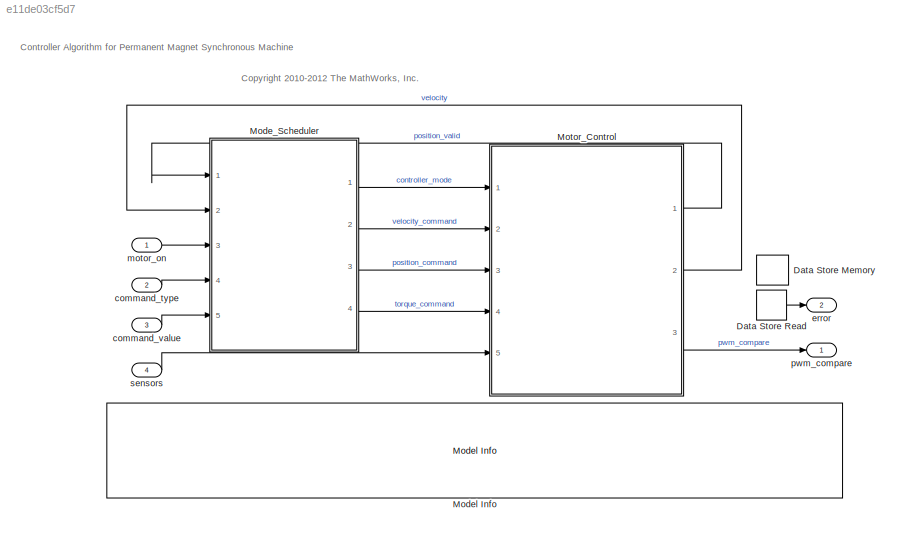
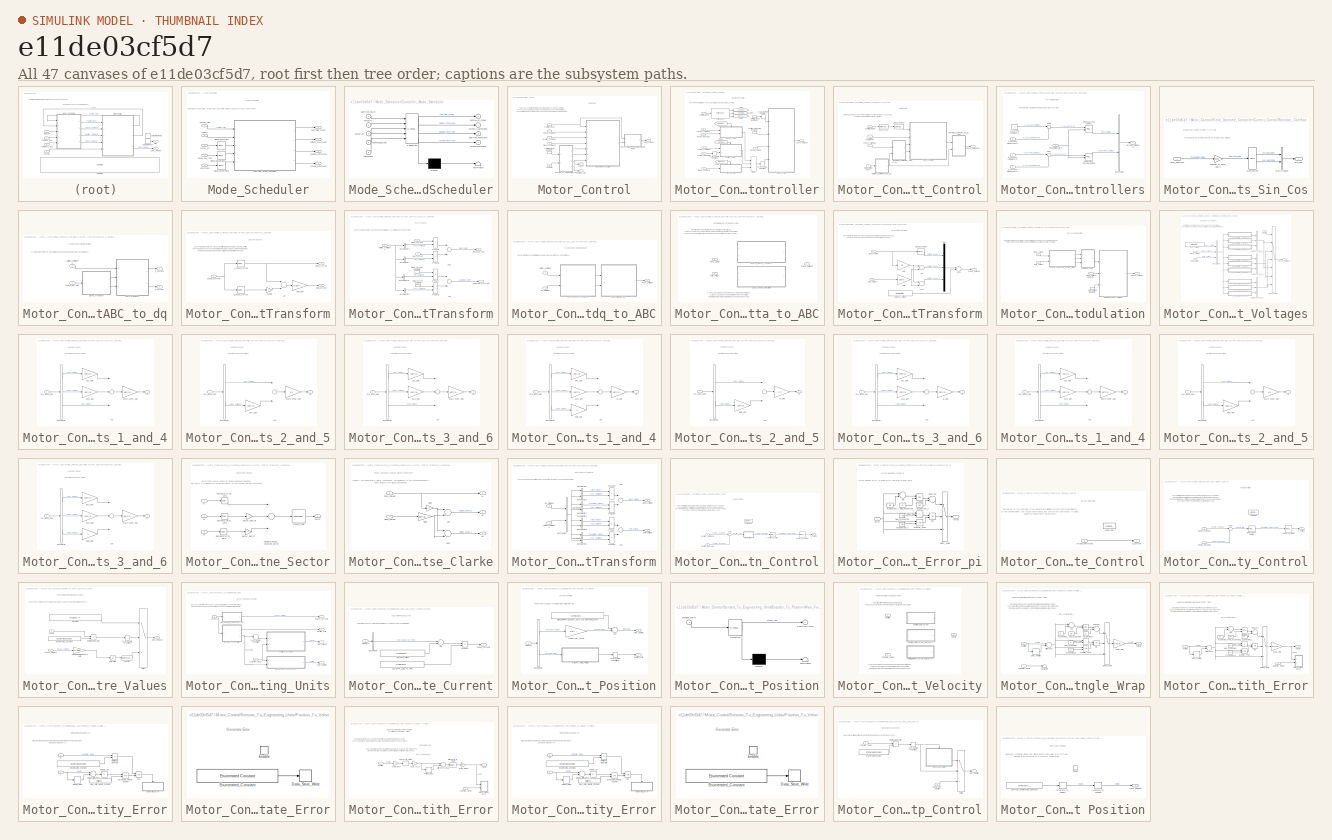
[diagram: thumbnail index - all 47 canvases of the model, root first then tree order]
MODEL slx_e11de03cf5d7
KIND model
CONFIG AbsTol = auto
CONFIG EnableMultiTasking = off
CONFIG FixedStep = ctrlConst.TsHi
CONFIG MaxStep = auto
CONFIG MinStep = auto
CONFIG PreLoadFcn = rtwdemo_pmsmfoc_data\n
CONFIG RelTol = 1e-3
CONFIG SampleTimeConstraint = Unconstrained
CONFIG Solver = FixedStepDiscrete
CONFIG SolverName = FixedStepDiscrete
CONFIG StartTime = 0.0
CONFIG StopTime = 0.14
BLOCK [DataStoreMemory] Data Store Memory
  DataStoreName = error
  InitialValue = EnumErrorType.NoError
  OutDataTypeStr = Enum: EnumErrorType
  ShowAdditionalParam = off
  SignalType = real
  WriteAfterWriteMsg = warning
BLOCK [DataStoreRead] Data Store Read
  DataStoreName = error
  Ports = [0, 1]
  SampleTime = ctrlConst.TsHi
BLOCK [SubSystem] Mode_Scheduler
  Ports = [5, 4]
  RequestExecContextInheritance = off
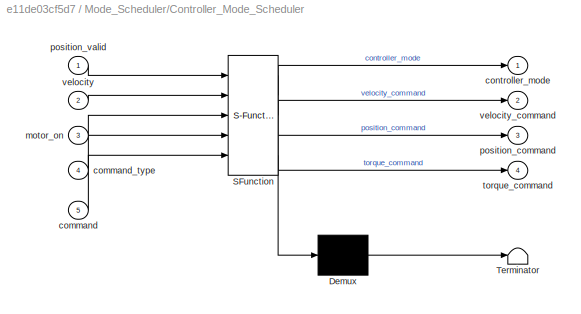
BLOCK [SubSystem] Mode_Scheduler/Controller_Mode_Scheduler
  ErrorFcn = Stateflow.Translate.translate
  PermitHierarchicalResolution = ExplicitOnly
  Ports = [5, 4]
  RequestExecContextInheritance = off
  SFBlockType = Chart
  TreatAsAtomicUnit = on
BLOCK [Demux] Mode_Scheduler/Controller_Mode_Scheduler/ Demux 
  Outputs = 1
  Ports = [1, 1]
BLOCK [S-Function] Mode_Scheduler/Controller_Mode_Scheduler/ SFunction 
  EnableBusSupport = on
  FunctionName = sf_sfun
  Parameters = ctrlParams
  PortCounts = [5 5]
  Ports = [5, 5]
  SFcnIsStateOwnerBlock = off
  SFunctionDeploymentMode = off
  Tag = Stateflow S-Function lp_pmsmfoc 1
BLOCK [Terminator] Mode_Scheduler/Controller_Mode_Scheduler/ Terminator 
BLOCK [Inport] Mode_Scheduler/Controller_Mode_Scheduler/command
  IconDisplay = Port number
  Port = 5
BLOCK [Inport] Mode_Scheduler/Controller_Mode_Scheduler/command_type
  IconDisplay = Port number
  Port = 4
BLOCK [Outport] Mode_Scheduler/Controller_Mode_Scheduler/controller_mode
  IconDisplay = Port number
BLOCK [Inport] Mode_Scheduler/Controller_Mode_Scheduler/motor_on
  IconDisplay = Port number
  Port = 3
BLOCK [Outport] Mode_Scheduler/Controller_Mode_Scheduler/position_command
  IconDisplay = Port number
  Port = 3
BLOCK [Inport] Mode_Scheduler/Controller_Mode_Scheduler/position_valid
  IconDisplay = Port number
BLOCK [Outport] Mode_Scheduler/Controller_Mode_Scheduler/torque_command
  IconDisplay = Port number
  Port = 4
BLOCK [Inport] Mode_Scheduler/Controller_Mode_Scheduler/velocity
  IconDisplay = Port number
  Port = 2
BLOCK [Outport] Mode_Scheduler/Controller_Mode_Scheduler/velocity_command
  IconDisplay = Port number
  Port = 2
BLOCK [SignalConversion] Mode_Scheduler/Signal Conversion
  OverrideOpt = on
BLOCK [SignalConversion] Mode_Scheduler/Signal Conversion1
  OverrideOpt = on
BLOCK [SignalConversion] Mode_Scheduler/Signal Conversion2
  OverrideOpt = on
BLOCK [Inport] Mode_Scheduler/command
  IconDisplay = Port number
  Port = 5
BLOCK [Inport] Mode_Scheduler/command_type
  IconDisplay = Port number
  Port = 4
BLOCK [Outport] Mode_Scheduler/controller_mode
  IconDisplay = Port number
BLOCK [Inport] Mode_Scheduler/motor_on
  IconDisplay = Port number
  Port = 3
BLOCK [Outport] Mode_Scheduler/position_command
  IconDisplay = Port number
  Port = 3
BLOCK [Inport] Mode_Scheduler/position_valid
  IconDisplay = Port number
BLOCK [Outport] Mode_Scheduler/torque_command
  IconDisplay = Port number
  Port = 4
BLOCK [Inport] Mode_Scheduler/velocity
  IconDisplay = Port number
  Port = 2
BLOCK [Outport] Mode_Scheduler/velocity_command
  IconDisplay = Port number
  Port = 2
BLOCK [Reference] Model Info  REF=simulink/Model-Wide
Utilities/Model Info
  Ports = []
  SourceBlock = simulink/Model-Wide\nUtilities/Model Info
  SourceProductBaseCode = SL
  SourceProductName = Simulink
  SourceType = CMBlock
BLOCK [SubSystem] Motor_Control
  Ports = [5, 3]
  RTWFcnNameOpts = Use subsystem name
  RTWSystemCode = Nonreusable function
  RequestExecContextInheritance = off
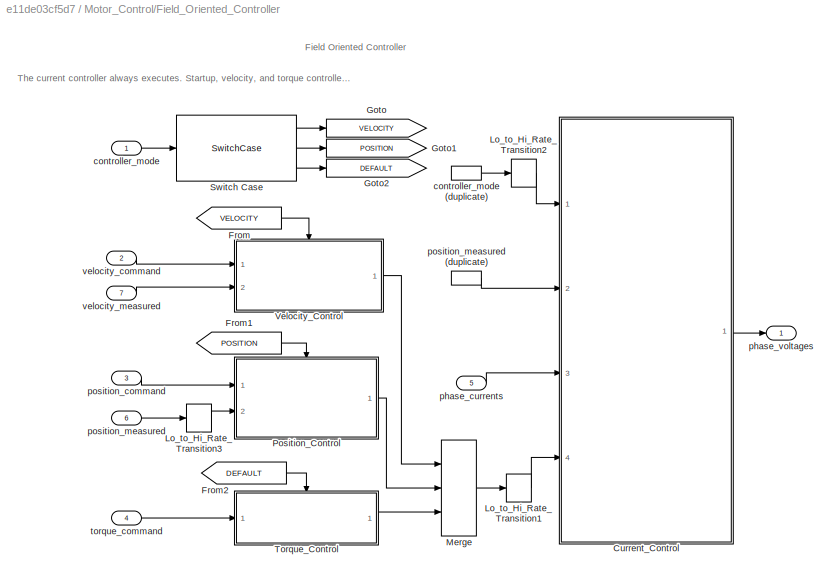
BLOCK [SubSystem] Motor_Control/Field_Oriented_Controller
  Ports = [7, 1]
  RequestExecContextInheritance = off
BLOCK [SubSystem] Motor_Control/Field_Oriented_Controller/Current_Control
  Ports = [4, 1]
  RequestExecContextInheritance = off
BLOCK [SubSystem] Motor_Control/Field_Oriented_Controller/Current_Control/Current_Controllers
  Description = Linear Current Controllers\n\nPID Blocks used for Control Design of Current Loop controllers.
  Ports = [4, 1]
  RequestExecContextInheritance = off
BLOCK [BusCreator] Motor_Control/Field_Oriented_Controller/Current_Control/Current_Controllers/Bus Creator
  DisplayOption = bar
  InheritFromInputs = on
  Inputs = 2
  Ports = [2, 1]
BLOCK [Reference] Motor_Control/Field_Oriented_Controller/Current_Control/Current_Controllers/Direct_Current_Control  REF=simulink/Continuous/PID Controller
  AttributesFormatString = ----------------------------------------------\nP Gain: %<P>\nI Gain: %<I>
  Ports = [2, 1]
  SourceBlock = simulink/Continuous/PID Controller
  SourceProductBaseCode = SL
  SourceProductName = Simulink
  SourceType = PID 1dof
BLOCK [Reference] Motor_Control/Field_Oriented_Controller/Current_Control/Current_Controllers/Quadrature_Current_Control  REF=simulink/Continuous/PID Controller
  AttributesFormatString = ----------------------------------------------\nP Gain: %<P>\nI Gain: %<I>
  Ports = [2, 1]
  SourceBlock = simulink/Continuous/PID Controller
  SourceProductBaseCode = SL
  SourceProductName = Simulink
  SourceType = PID 1dof
BLOCK [Sum] Motor_Control/Field_Oriented_Controller/Current_Control/Current_Controllers/Sum
  IconShape = round
  InputSameDT = off
  Inputs = |+-
  OutDataTypeStr = Inherit: Inherit via internal rule
  Ports = [2, 1]
  SaturateOnIntegerOverflow = off
BLOCK [Sum] Motor_Control/Field_Oriented_Controller/Current_Control/Current_Controllers/Sum2
  IconShape = round
  InputSameDT = off
  Inputs = |+-
  OutDataTypeStr = Inherit: Inherit via internal rule
  Ports = [2, 1]
  SaturateOnIntegerOverflow = off
BLOCK [Constant] Motor_Control/Field_Oriented_Controller/Current_Control/Current_Controllers/d_current_command (A)
  OutDataTypeStr = single
  Value = 0
BLOCK [Inport] Motor_Control/Field_Oriented_Controller/Current_Control/Current_Controllers/d_current_measured (A)
  IconDisplay = Port number
  Port = 3
BLOCK [Outport] Motor_Control/Field_Oriented_Controller/Current_Control/Current_Controllers/dq_axis_voltages (V)
  IconDisplay = Port number
BLOCK [Inport] Motor_Control/Field_Oriented_Controller/Current_Control/Current_Controllers/q_current_command (A)
  IconDisplay = Port number
  Port = 2
BLOCK [Inport] Motor_Control/Field_Oriented_Controller/Current_Control/Current_Controllers/q_current_measured (A)
  IconDisplay = Port number
  Port = 4
BLOCK [Inport] Motor_Control/Field_Oriented_Controller/Current_Control/Current_Controllers/reset_integrators
  IconDisplay = Port number
BLOCK [Reference] Motor_Control/Field_Oriented_Controller/Current_Control/Detect_Change  REF=simulink/Logic and Bit
Operations/Detect
Change
  Ports = [1, 1]
  SourceBlock = simulink/Logic and Bit\nOperations/Detect\nChange
  SourceProductBaseCode = SL
  SourceProductName = Simulink
  SourceType = Detect Change
BLOCK [DataTypeConversion] Motor_Control/Field_Oriented_Controller/Current_Control/Enum_To_Int
  OutDataTypeStr = int16
  RndMeth = Floor
  SaturateOnIntegerOverflow = off
BLOCK [SubSystem] Motor_Control/Field_Oriented_Controller/Current_Control/Rotation_Coefficients_Sin_Cos
  Ports = [1, 1]
  RequestExecContextInheritance = off
BLOCK [BusCreator] Motor_Control/Field_Oriented_Controller/Current_Control/Rotation_Coefficients_Sin_Cos/Bus Creator
  DisplayOption = bar
  InheritFromInputs = on
  Inputs = 2
  Ports = [2, 1]
BLOCK [Gain] Motor_Control/Field_Oriented_Controller/Current_Control/Rotation_Coefficients_Sin_Cos/number_of_pole_pairs
  AttributesFormatString = ------------------------------------\nGain: %<Gain>
  Gain = ctrlParams.PmsmPolePairs
  OutDataTypeStr = Inherit: Inherit via internal rule
  ParamDataTypeStr = Inherit: Inherit via internal rule
  SaturateOnIntegerOverflow = off
BLOCK [Inport] Motor_Control/Field_Oriented_Controller/Current_Control/Rotation_Coefficients_Sin_Cos/rotor_position
  IconDisplay = Port number
BLOCK [Outport] Motor_Control/Field_Oriented_Controller/Current_Control/Rotation_Coefficients_Sin_Cos/sin_cos
  IconDisplay = Port number
BLOCK [Trigonometry] Motor_Control/Field_Oriented_Controller/Current_Control/Rotation_Coefficients_Sin_Cos/sine_cosine
  Operator = sincos
  Ports = [1, 2]
BLOCK [SubSystem] Motor_Control/Field_Oriented_Controller/Current_Control/Transform_Coordinates_ABC_to_dq
  Ports = [2, 2]
  RTWSystemCode = Nonreusable function
  RequestExecContextInheritance = off
BLOCK [SubSystem] Motor_Control/Field_Oriented_Controller/Current_Control/Transform_Coordinates_ABC_to_dq/Clarke_Transform
  Ports = [1, 2]
  RequestExecContextInheritance = off
BLOCK [Selector] Motor_Control/Field_Oriented_Controller/Current_Control/Transform_Coordinates_ABC_to_dq/Clarke_Transform/A_phase_current
  IndexOptions = Index vector (dialog)
  Indices = 1
  InputPortWidth = 2
  OutputSizes = 1
  Ports = [1, 1]
BLOCK [Sum] Motor_Control/Field_Oriented_Controller/Current_Control/Transform_Coordinates_ABC_to_dq/Clarke_Transform/Add
  InputSameDT = off
  OutDataTypeStr = Inherit: Inherit via internal rule
  Ports = [2, 1]
  SaturateOnIntegerOverflow = off
BLOCK [Gain] Motor_Control/Field_Oriented_Controller/Current_Control/Transform_Coordinates_ABC_to_dq/Clarke_Transform/B_Gain
  Gain = 2
  OutDataTypeStr = Inherit: Inherit via internal rule
  ParamDataTypeStr = Inherit: Inherit via internal rule
  SaturateOnIntegerOverflow = off
BLOCK [Selector] Motor_Control/Field_Oriented_Controller/Current_Control/Transform_Coordinates_ABC_to_dq/Clarke_Transform/B_phase_current
  IndexOptions = Index vector (dialog)
  Indices = 2
  InputPortWidth = 2
  OutputSizes = 1
  Ports = [1, 1]
BLOCK [Gain] Motor_Control/Field_Oriented_Controller/Current_Control/Transform_Coordinates_ABC_to_dq/Clarke_Transform/Beta_Gain
  Gain = 1/sqrt(3)
  OutDataTypeStr = Inherit: Inherit via internal rule
  ParamDataTypeStr = Inherit: Inherit via internal rule
  SaturateOnIntegerOverflow = off
BLOCK [Outport] Motor_Control/Field_Oriented_Controller/Current_Control/Transform_Coordinates_ABC_to_dq/Clarke_Transform/alpha_current
  IconDisplay = Port number
BLOCK [Outport] Motor_Control/Field_Oriented_Controller/Current_Control/Transform_Coordinates_ABC_to_dq/Clarke_Transform/beta_current
  IconDisplay = Port number
  Port = 2
BLOCK [Inport] Motor_Control/Field_Oriented_Controller/Current_Control/Transform_Coordinates_ABC_to_dq/Clarke_Transform/phase_currents
  IconDisplay = Port number
BLOCK [SubSystem] Motor_Control/Field_Oriented_Controller/Current_Control/Transform_Coordinates_ABC_to_dq/Park_Transform
  Ports = [3, 2]
  RequestExecContextInheritance = off
BLOCK [Sum] Motor_Control/Field_Oriented_Controller/Current_Control/Transform_Coordinates_ABC_to_dq/Park_Transform/Add
  InputSameDT = off
  Inputs = -+
  OutDataTypeStr = Inherit: Inherit via internal rule
  Ports = [2, 1]
  SaturateOnIntegerOverflow = off
BLOCK [Sum] Motor_Control/Field_Oriented_Controller/Current_Control/Transform_Coordinates_ABC_to_dq/Park_Transform/Add1
  InputSameDT = off
  OutDataTypeStr = Inherit: Inherit via internal rule
  Ports = [2, 1]
  SaturateOnIntegerOverflow = off
BLOCK [BusSelector] Motor_Control/Field_Oriented_Controller/Current_Control/Transform_Coordinates_ABC_to_dq/Park_Transform/Bus Selector5
  OutputAsBus = off
  OutputSignals = cos_coefficient
  Ports = [1, 1]
BLOCK [BusSelector] Motor_Control/Field_Oriented_Controller/Current_Control/Transform_Coordinates_ABC_to_dq/Park_Transform/Bus Selector6
  OutputAsBus = off
  OutputSignals = cos_coefficient
  Ports = [1, 1]
BLOCK [BusSelector] Motor_Control/Field_Oriented_Controller/Current_Control/Transform_Coordinates_ABC_to_dq/Park_Transform/Bus Selector7
  OutputAsBus = off
  OutputSignals = sin_coefficient
  Ports = [1, 1]
BLOCK [BusSelector] Motor_Control/Field_Oriented_Controller/Current_Control/Transform_Coordinates_ABC_to_dq/Park_Transform/Bus Selector8
  OutputAsBus = off
  OutputSignals = sin_coefficient
  Ports = [1, 1]
BLOCK [Product] Motor_Control/Field_Oriented_Controller/Current_Control/Transform_Coordinates_ABC_to_dq/Park_Transform/Product
  InputSameDT = off
  OutDataTypeStr = Inherit: Inherit via internal rule
  Ports = [2, 1]
  SaturateOnIntegerOverflow = off
BLOCK [Product] Motor_Control/Field_Oriented_Controller/Current_Control/Transform_Coordinates_ABC_to_dq/Park_Transform/Product1
  InputSameDT = off
  OutDataTypeStr = Inherit: Inherit via internal rule
  Ports = [2, 1]
  SaturateOnIntegerOverflow = off
BLOCK [Product] Motor_Control/Field_Oriented_Controller/Current_Control/Transform_Coordinates_ABC_to_dq/Park_Transform/Product2
  InputSameDT = off
  OutDataTypeStr = Inherit: Inherit via internal rule
  Ports = [2, 1]
  SaturateOnIntegerOverflow = off
BLOCK [Product] Motor_Control/Field_Oriented_Controller/Current_Control/Transform_Coordinates_ABC_to_dq/Park_Transform/Product3
  InputSameDT = off
  OutDataTypeStr = Inherit: Inherit via internal rule
  Ports = [2, 1]
  SaturateOnIntegerOverflow = off
BLOCK [Inport] Motor_Control/Field_Oriented_Controller/Current_Control/Transform_Coordinates_ABC_to_dq/Park_Transform/alpha_current
  IconDisplay = Port number
  Port = 2
BLOCK [InportShadow] Motor_Control/Field_Oriented_Controller/Current_Control/Transform_Coordinates_ABC_to_dq/Park_Transform/alpha_current (Duplicate)
  IconDisplay = Port number
  Port = 2
BLOCK [Inport] Motor_Control/Field_Oriented_Controller/Current_Control/Transform_Coordinates_ABC_to_dq/Park_Transform/beta_current
  IconDisplay = Port number
  Port = 3
BLOCK [InportShadow] Motor_Control/Field_Oriented_Controller/Current_Control/Transform_Coordinates_ABC_to_dq/Park_Transform/beta_current (Duplicate)
  IconDisplay = Port number
  Port = 3
BLOCK [Outport] Motor_Control/Field_Oriented_Controller/Current_Control/Transform_Coordinates_ABC_to_dq/Park_Transform/direct_current
  IconDisplay = Port number
BLOCK [Outport] Motor_Control/Field_Oriented_Controller/Current_Control/Transform_Coordinates_ABC_to_dq/Park_Transform/quadrature_current
  IconDisplay = Port number
  Port = 2
BLOCK [Inport] Motor_Control/Field_Oriented_Controller/Current_Control/Transform_Coordinates_ABC_to_dq/Park_Transform/rotation_coefficients
  IconDisplay = Port number
BLOCK [Outport] Motor_Control/Field_Oriented_Controller/Current_Control/Transform_Coordinates_ABC_to_dq/d_current
  IconDisplay = Port number
BLOCK [Inport] Motor_Control/Field_Oriented_Controller/Current_Control/Transform_Coordinates_ABC_to_dq/phase_currents
  IconDisplay = Port number
BLOCK [Outport] Motor_Control/Field_Oriented_Controller/Current_Control/Transform_Coordinates_ABC_to_dq/q_current
  IconDisplay = Port number
  Port = 2
BLOCK [Inport] Motor_Control/Field_Oriented_Controller/Current_Control/Transform_Coordinates_ABC_to_dq/rotation_coefficients
  IconDisplay = Port number
  Port = 2
BLOCK [SubSystem] Motor_Control/Field_Oriented_Controller/Current_Control/Transform_Coordinates_dq_to_ABC
  Ports = [2, 1]
  RTWSystemCode = Nonreusable function
  RequestExecContextInheritance = off
BLOCK [SubSystem] Motor_Control/Field_Oriented_Controller/Current_Control/Transform_Coordinates_dq_to_ABC/Alpha_Beta_to_ABC
  LabelModeActiveChoice = SPACE_VECTOR_MODULATION
  Ports = [2, 1]
  RequestExecContextInheritance = off
  Variant = on
  VariantControlMode = Label
BLOCK [SubSystem] Motor_Control/Field_Oriented_Controller/Current_Control/Transform_Coordinates_dq_to_ABC/Alpha_Beta_to_ABC/Inverse_Clarke_Transform
  Ports = [2, 1]
  RTWSystemCode = Reusable function
  RequestExecContextInheritance = off
  VariantControl = INVERSE_CLARKE_TRANSFORM
BLOCK [Sum] Motor_Control/Field_Oriented_Controller/Current_Control/Transform_Coordinates_dq_to_ABC/Alpha_Beta_to_ABC/Inverse_Clarke_Transform/Add
  InputSameDT = off
  Inputs = -+
  OutDataTypeStr = Inherit: Inherit via internal rule
  Ports = [2, 1]
  SaturateOnIntegerOverflow = off
BLOCK [Sum] Motor_Control/Field_Oriented_Controller/Current_Control/Transform_Coordinates_dq_to_ABC/Alpha_Beta_to_ABC/Inverse_Clarke_Transform/Add1
  InputSameDT = off
  Inputs = --
  OutDataTypeStr = Inherit: Inherit via internal rule
  Ports = [2, 1]
  SaturateOnIntegerOverflow = off
BLOCK [Sum] Motor_Control/Field_Oriented_Controller/Current_Control/Transform_Coordinates_dq_to_ABC/Alpha_Beta_to_ABC/Inverse_Clarke_Transform/Add2
  InputSameDT = off
  OutDataTypeStr = Inherit: Inherit via internal rule
  Ports = [2, 1]
  SaturateOnIntegerOverflow = off
BLOCK [Gain] Motor_Control/Field_Oriented_Controller/Current_Control/Transform_Coordinates_dq_to_ABC/Alpha_Beta_to_ABC/Inverse_Clarke_Transform/Gain
  Gain = 1/2
  OutDataTypeStr = Inherit: Inherit via internal rule
  ParamDataTypeStr = Inherit: Inherit via internal rule
  SaturateOnIntegerOverflow = off
BLOCK [Gain] Motor_Control/Field_Oriented_Controller/Current_Control/Transform_Coordinates_dq_to_ABC/Alpha_Beta_to_ABC/Inverse_Clarke_Transform/Gain1
  Gain = sqrt(3)/2
  OutDataTypeStr = Inherit: Inherit via internal rule
  ParamDataTypeStr = Inherit: Inherit via internal rule
  SaturateOnIntegerOverflow = off
BLOCK [Constant] Motor_Control/Field_Oriented_Controller/Current_Control/Transform_Coordinates_dq_to_ABC/Alpha_Beta_to_ABC/Inverse_Clarke_Transform/Half_Bus_Voltage
  OutDataTypeStr = single
  Value = ctrlConst.BusVoltage/2
BLOCK [Mux] Motor_Control/Field_Oriented_Controller/Current_Control/Transform_Coordinates_dq_to_ABC/Alpha_Beta_to_ABC/Inverse_Clarke_Transform/Mux
  DisplayOption = bar
  Inputs = 3
  Ports = [3, 1]
BLOCK [SignalConversion] Motor_Control/Field_Oriented_Controller/Current_Control/Transform_Coordinates_dq_to_ABC/Alpha_Beta_to_ABC/Inverse_Clarke_Transform/Signal Conversion
  OverrideOpt = off
BLOCK [Inport] Motor_Control/Field_Oriented_Controller/Current_Control/Transform_Coordinates_dq_to_ABC/Alpha_Beta_to_ABC/Inverse_Clarke_Transform/alpha_voltage
  IconDisplay = Port number
BLOCK [Inport] Motor_Control/Field_Oriented_Controller/Current_Control/Transform_Coordinates_dq_to_ABC/Alpha_Beta_to_ABC/Inverse_Clarke_Transform/beta_voltage
  IconDisplay = Port number
  Port = 2
BLOCK [Outport] Motor_Control/Field_Oriented_Controller/Current_Control/Transform_Coordinates_dq_to_ABC/Alpha_Beta_to_ABC/Inverse_Clarke_Transform/phase_voltages
  IconDisplay = Port number
BLOCK [SubSystem] Motor_Control/Field_Oriented_Controller/Current_Control/Transform_Coordinates_dq_to_ABC/Alpha_Beta_to_ABC/Space_Vector_Modulation
  Ports = [2, 1]
  RequestExecContextInheritance = off
  VariantControl = SPACE_VECTOR_MODULATION
BLOCK [SubSystem] Motor_Control/Field_Oriented_Controller/Current_Control/Transform_Coordinates_dq_to_ABC/Alpha_Beta_to_ABC/Space_Vector_Modulation/Calculate_Phase_Voltages
  Ports = [3, 1]
  RequestExecContextInheritance = off
BLOCK [BusCreator] Motor_Control/Field_Oriented_Controller/Current_Control/Transform_Coordinates_dq_to_ABC/Alpha_Beta_to_ABC/Space_Vector_Modulation/Calculate_Phase_Voltages/Bus Creator
  DisplayOption = bar
  InheritFromInputs = on
  Inputs = 3
  Ports = [3, 1]
BLOCK [Constant] Motor_Control/Field_Oriented_Controller/Current_Control/Transform_Coordinates_dq_to_ABC/Alpha_Beta_to_ABC/Space_Vector_Modulation/Calculate_Phase_Voltages/Bus_Voltage
  OutDataTypeStr = single
  Value = ctrlConst.BusVoltage
BLOCK [Inport] Motor_Control/Field_Oriented_Controller/Current_Control/Transform_Coordinates_dq_to_ABC/Alpha_Beta_to_ABC/Space_Vector_Modulation/Calculate_Phase_Voltages/Sector
  IconDisplay = Port number
BLOCK [Concatenate] Motor_Control/Field_Oriented_Controller/Current_Control/Transform_Coordinates_dq_to_ABC/Alpha_Beta_to_ABC/Space_Vector_Modulation/Calculate_Phase_Voltages/Sectors_1_and_4
  NumInputs = 3
  Ports = [3, 1]
BLOCK [Concatenate] Motor_Control/Field_Oriented_Controller/Current_Control/Transform_Coordinates_dq_to_ABC/Alpha_Beta_to_ABC/Space_Vector_Modulation/Calculate_Phase_Voltages/Sectors_2_and_5
  NumInputs = 3
  Ports = [3, 1]
BLOCK [Concatenate] Motor_Control/Field_Oriented_Controller/Current_Control/Transform_Coordinates_dq_to_ABC/Alpha_Beta_to_ABC/Space_Vector_Modulation/Calculate_Phase_Voltages/Sectors_3_and_6
  NumInputs = 3
  Ports = [3, 1]
BLOCK [MultiPortSwitch] Motor_Control/Field_Oriented_Controller/Current_Control/Transform_Coordinates_dq_to_ABC/Alpha_Beta_to_ABC/Space_Vector_Modulation/Calculate_Phase_Voltages/Select_Sector
  InputSameDT = off
  Inputs = 6
  Ports = [7, 1]
  SaturateOnIntegerOverflow = off
BLOCK [SubSystem] Motor_Control/Field_Oriented_Controller/Current_Control/Transform_Coordinates_dq_to_ABC/Alpha_Beta_to_ABC/Space_Vector_Modulation/Calculate_Phase_Voltages/Va_Sectors_1_and_4
  Ports = [1, 1]
  RequestExecContextInheritance = off
BLOCK [Sum] Motor_Control/Field_Oriented_Controller/Current_Control/Transform_Coordinates_dq_to_ABC/Alpha_Beta_to_ABC/Space_Vector_Modulation/Calculate_Phase_Voltages/Va_Sectors_1_and_4/Add
  InputSameDT = off
  Inputs = +++
  OutDataTypeStr = Inherit: Inherit via internal rule
  Ports = [3, 1]
  SaturateOnIntegerOverflow = off
BLOCK [Gain] Motor_Control/Field_Oriented_Controller/Current_Control/Transform_Coordinates_dq_to_ABC/Alpha_Beta_to_ABC/Space_Vector_Modulation/Calculate_Phase_Voltages/Va_Sectors_1_and_4/Alpha_Gain
  Gain = sqrt(3)
  OutDataTypeStr = Inherit: Inherit via internal rule
  ParamDataTypeStr = Inherit: Inherit via internal rule
  SaturateOnIntegerOverflow = off
BLOCK [BusSelector] Motor_Control/Field_Oriented_Controller/Current_Control/Transform_Coordinates_dq_to_ABC/Alpha_Beta_to_ABC/Space_Vector_Modulation/Calculate_Phase_Voltages/Va_Sectors_1_and_4/Bus Selector
  OutputAsBus = off
  OutputSignals = bus_voltage,alpha_voltage,beta_voltage
  Ports = [1, 3]
BLOCK [Gain] Motor_Control/Field_Oriented_Controller/Current_Control/Transform_Coordinates_dq_to_ABC/Alpha_Beta_to_ABC/Space_Vector_Modulation/Calculate_Phase_Voltages/Va_Sectors_1_and_4/Bus_Gain
  Gain = sqrt(2)
  OutDataTypeStr = Inherit: Inherit via internal rule
  ParamDataTypeStr = Inherit: Inherit via internal rule
  SaturateOnIntegerOverflow = off
BLOCK [Gain] Motor_Control/Field_Oriented_Controller/Current_Control/Transform_Coordinates_dq_to_ABC/Alpha_Beta_to_ABC/Space_Vector_Modulation/Calculate_Phase_Voltages/Va_Sectors_1_and_4/Space_Vector_Gain
  Gain = sqrt(2)/4
  OutDataTypeStr = Inherit: Inherit via internal rule
  ParamDataTypeStr = Inherit: Inherit via internal rule
  SaturateOnIntegerOverflow = off
BLOCK [Outport] Motor_Control/Field_Oriented_Controller/Current_Control/Transform_Coordinates_dq_to_ABC/Alpha_Beta_to_ABC/Space_Vector_Modulation/Calculate_Phase_Voltages/Va_Sectors_1_and_4/Va
  IconDisplay = Port number
BLOCK [Inport] Motor_Control/Field_Oriented_Controller/Current_Control/Transform_Coordinates_dq_to_ABC/Alpha_Beta_to_ABC/Space_Vector_Modulation/Calculate_Phase_Voltages/Va_Sectors_1_and_4/bus_alpha_beta
  IconDisplay = Port number
BLOCK [SubSystem] Motor_Control/Field_Oriented_Controller/Current_Control/Transform_Coordinates_dq_to_ABC/Alpha_Beta_to_ABC/Space_Vector_Modulation/Calculate_Phase_Voltages/Va_Sectors_2_and_5
  Ports = [1, 1]
  RequestExecContextInheritance = off
BLOCK [Sum] Motor_Control/Field_Oriented_Controller/Current_Control/Transform_Coordinates_dq_to_ABC/Alpha_Beta_to_ABC/Space_Vector_Modulation/Calculate_Phase_Voltages/Va_Sectors_2_and_5/Add
  InputSameDT = off
  OutDataTypeStr = Inherit: Inherit via internal rule
  Ports = [2, 1]
  SaturateOnIntegerOverflow = off
BLOCK [Gain] Motor_Control/Field_Oriented_Controller/Current_Control/Transform_Coordinates_dq_to_ABC/Alpha_Beta_to_ABC/Space_Vector_Modulation/Calculate_Phase_Voltages/Va_Sectors_2_and_5/Alpha_Gain
  Gain = sqrt(6)
  OutDataTypeStr = Inherit: Inherit via internal rule
  ParamDataTypeStr = Inherit: Inherit via internal rule
  SaturateOnIntegerOverflow = off
BLOCK [BusSelector] Motor_Control/Field_Oriented_Controller/Current_Control/Transform_Coordinates_dq_to_ABC/Alpha_Beta_to_ABC/Space_Vector_Modulation/Calculate_Phase_Voltages/Va_Sectors_2_and_5/Bus Selector
  OutputAsBus = off
  OutputSignals = bus_voltage,alpha_voltage
  Ports = [1, 2]
BLOCK [Gain] Motor_Control/Field_Oriented_Controller/Current_Control/Transform_Coordinates_dq_to_ABC/Alpha_Beta_to_ABC/Space_Vector_Modulation/Calculate_Phase_Voltages/Va_Sectors_2_and_5/Space_Vector_Gain
  Gain = 1/2
  OutDataTypeStr = Inherit: Inherit via internal rule
  ParamDataTypeStr = Inherit: Inherit via internal rule
  SaturateOnIntegerOverflow = off
BLOCK [Outport] Motor_Control/Field_Oriented_Controller/Current_Control/Transform_Coordinates_dq_to_ABC/Alpha_Beta_to_ABC/Space_Vector_Modulation/Calculate_Phase_Voltages/Va_Sectors_2_and_5/Va
  IconDisplay = Port number
BLOCK [Inport] Motor_Control/Field_Oriented_Controller/Current_Control/Transform_Coordinates_dq_to_ABC/Alpha_Beta_to_ABC/Space_Vector_Modulation/Calculate_Phase_Voltages/Va_Sectors_2_and_5/bus_alpha_beta
  IconDisplay = Port number
BLOCK [SubSystem] Motor_Control/Field_Oriented_Controller/Current_Control/Transform_Coordinates_dq_to_ABC/Alpha_Beta_to_ABC/Space_Vector_Modulation/Calculate_Phase_Voltages/Va_Sectors_3_and_6
  Ports = [1, 1]
  RequestExecContextInheritance = off
BLOCK [Sum] Motor_Control/Field_Oriented_Controller/Current_Control/Transform_Coordinates_dq_to_ABC/Alpha_Beta_to_ABC/Space_Vector_Modulation/Calculate_Phase_Voltages/Va_Sectors_3_and_6/Add
  InputSameDT = off
  Inputs = ++-
  OutDataTypeStr = Inherit: Inherit via internal rule
  Ports = [3, 1]
  SaturateOnIntegerOverflow = off
BLOCK [Gain] Motor_Control/Field_Oriented_Controller/Current_Control/Transform_Coordinates_dq_to_ABC/Alpha_Beta_to_ABC/Space_Vector_Modulation/Calculate_Phase_Voltages/Va_Sectors_3_and_6/Alpha_Gain
  Gain = sqrt(3)
  OutDataTypeStr = Inherit: Inherit via internal rule
  ParamDataTypeStr = Inherit: Inherit via internal rule
  SaturateOnIntegerOverflow = off
BLOCK [BusSelector] Motor_Control/Field_Oriented_Controller/Current_Control/Transform_Coordinates_dq_to_ABC/Alpha_Beta_to_ABC/Space_Vector_Modulation/Calculate_Phase_Voltages/Va_Sectors_3_and_6/Bus Selector
  OutputAsBus = off
  OutputSignals = bus_voltage,alpha_voltage,beta_voltage
  Ports = [1, 3]
BLOCK [Gain] Motor_Control/Field_Oriented_Controller/Current_Control/Transform_Coordinates_dq_to_ABC/Alpha_Beta_to_ABC/Space_Vector_Modulation/Calculate_Phase_Voltages/Va_Sectors_3_and_6/Bus_Gain
  Gain = sqrt(2)
  OutDataTypeStr = Inherit: Inherit via internal rule
  ParamDataTypeStr = Inherit: Inherit via internal rule
  SaturateOnIntegerOverflow = off
BLOCK [Gain] Motor_Control/Field_Oriented_Controller/Current_Control/Transform_Coordinates_dq_to_ABC/Alpha_Beta_to_ABC/Space_Vector_Modulation/Calculate_Phase_Voltages/Va_Sectors_3_and_6/Space_Vector_Gain
  Gain = sqrt(2)/4
  OutDataTypeStr = Inherit: Inherit via internal rule
  ParamDataTypeStr = Inherit: Inherit via internal rule
  SaturateOnIntegerOverflow = off
BLOCK [Outport] Motor_Control/Field_Oriented_Controller/Current_Control/Transform_Coordinates_dq_to_ABC/Alpha_Beta_to_ABC/Space_Vector_Modulation/Calculate_Phase_Voltages/Va_Sectors_3_and_6/Va
  IconDisplay = Port number
BLOCK [Inport] Motor_Control/Field_Oriented_Controller/Current_Control/Transform_Coordinates_dq_to_ABC/Alpha_Beta_to_ABC/Space_Vector_Modulation/Calculate_Phase_Voltages/Va_Sectors_3_and_6/bus_alpha_beta
  IconDisplay = Port number
BLOCK [SubSystem] Motor_Control/Field_Oriented_Controller/Current_Control/Transform_Coordinates_dq_to_ABC/Alpha_Beta_to_ABC/Space_Vector_Modulation/Calculate_Phase_Voltages/Vb_Sectors_1_and_4
  Ports = [1, 1]
  RequestExecContextInheritance = off
BLOCK [Sum] Motor_Control/Field_Oriented_Controller/Current_Control/Transform_Coordinates_dq_to_ABC/Alpha_Beta_to_ABC/Space_Vector_Modulation/Calculate_Phase_Voltages/Vb_Sectors_1_and_4/Add
  InputSameDT = off
  Inputs = +-+
  OutDataTypeStr = Inherit: Inherit via internal rule
  Ports = [3, 1]
  SaturateOnIntegerOverflow = off
BLOCK [Gain] Motor_Control/Field_Oriented_Controller/Current_Control/Transform_Coordinates_dq_to_ABC/Alpha_Beta_to_ABC/Space_Vector_Modulation/Calculate_Phase_Voltages/Vb_Sectors_1_and_4/Alpha_Gain
  Gain = sqrt(3)
  OutDataTypeStr = Inherit: Inherit via internal rule
  ParamDataTypeStr = Inherit: Inherit via internal rule
  SaturateOnIntegerOverflow = off
BLOCK [Gain] Motor_Control/Field_Oriented_Controller/Current_Control/Transform_Coordinates_dq_to_ABC/Alpha_Beta_to_ABC/Space_Vector_Modulation/Calculate_Phase_Voltages/Vb_Sectors_1_and_4/Beta_Gain
  Gain = 3
  OutDataTypeStr = Inherit: Inherit via internal rule
  ParamDataTypeStr = Inherit: Inherit via internal rule
  SaturateOnIntegerOverflow = off
BLOCK [BusSelector] Motor_Control/Field_Oriented_Controller/Current_Control/Transform_Coordinates_dq_to_ABC/Alpha_Beta_to_ABC/Space_Vector_Modulation/Calculate_Phase_Voltages/Vb_Sectors_1_and_4/Bus Selector
  OutputAsBus = off
  OutputSignals = bus_voltage,alpha_voltage,beta_voltage
  Ports = [1, 3]
BLOCK [Gain] Motor_Control/Field_Oriented_Controller/Current_Control/Transform_Coordinates_dq_to_ABC/Alpha_Beta_to_ABC/Space_Vector_Modulation/Calculate_Phase_Voltages/Vb_Sectors_1_and_4/Bus_Gain
  Gain = sqrt(2)
  OutDataTypeStr = Inherit: Inherit via internal rule
  ParamDataTypeStr = Inherit: Inherit via internal rule
  SaturateOnIntegerOverflow = off
BLOCK [Gain] Motor_Control/Field_Oriented_Controller/Current_Control/Transform_Coordinates_dq_to_ABC/Alpha_Beta_to_ABC/Space_Vector_Modulation/Calculate_Phase_Voltages/Vb_Sectors_1_and_4/Va_Gain
  Gain = sqrt(2)/4
  OutDataTypeStr = Inherit: Inherit via internal rule
  ParamDataTypeStr = Inherit: Inherit via internal rule
  SaturateOnIntegerOverflow = off
BLOCK [Outport] Motor_Control/Field_Oriented_Controller/Current_Control/Transform_Coordinates_dq_to_ABC/Alpha_Beta_to_ABC/Space_Vector_Modulation/Calculate_Phase_Voltages/Vb_Sectors_1_and_4/Vb
  IconDisplay = Port number
BLOCK [Inport] Motor_Control/Field_Oriented_Controller/Current_Control/Transform_Coordinates_dq_to_ABC/Alpha_Beta_to_ABC/Space_Vector_Modulation/Calculate_Phase_Voltages/Vb_Sectors_1_and_4/bus_alpha_beta
  IconDisplay = Port number
BLOCK [SubSystem] Motor_Control/Field_Oriented_Controller/Current_Control/Transform_Coordinates_dq_to_ABC/Alpha_Beta_to_ABC/Space_Vector_Modulation/Calculate_Phase_Voltages/Vb_Sectors_2_and_5
  Ports = [1, 1]
  RequestExecContextInheritance = off
BLOCK [Sum] Motor_Control/Field_Oriented_Controller/Current_Control/Transform_Coordinates_dq_to_ABC/Alpha_Beta_to_ABC/Space_Vector_Modulation/Calculate_Phase_Voltages/Vb_Sectors_2_and_5/Add
  InputSameDT = off
  OutDataTypeStr = Inherit: Inherit via internal rule
  Ports = [2, 1]
  SaturateOnIntegerOverflow = off
BLOCK [Gain] Motor_Control/Field_Oriented_Controller/Current_Control/Transform_Coordinates_dq_to_ABC/Alpha_Beta_to_ABC/Space_Vector_Modulation/Calculate_Phase_Voltages/Vb_Sectors_2_and_5/Beta_Gain
  Gain = sqrt(2)
  OutDataTypeStr = Inherit: Inherit via internal rule
  ParamDataTypeStr = Inherit: Inherit via internal rule
  SaturateOnIntegerOverflow = off
BLOCK [BusSelector] Motor_Control/Field_Oriented_Controller/Current_Control/Transform_Coordinates_dq_to_ABC/Alpha_Beta_to_ABC/Space_Vector_Modulation/Calculate_Phase_Voltages/Vb_Sectors_2_and_5/Bus Selector
  OutputAsBus = off
  OutputSignals = bus_voltage,beta_voltage
  Ports = [1, 2]
BLOCK [Gain] Motor_Control/Field_Oriented_Controller/Current_Control/Transform_Coordinates_dq_to_ABC/Alpha_Beta_to_ABC/Space_Vector_Modulation/Calculate_Phase_Voltages/Vb_Sectors_2_and_5/Va_Gain
  Gain = 1/2
  OutDataTypeStr = Inherit: Inherit via internal rule
  ParamDataTypeStr = Inherit: Inherit via internal rule
  SaturateOnIntegerOverflow = off
BLOCK [Outport] Motor_Control/Field_Oriented_Controller/Current_Control/Transform_Coordinates_dq_to_ABC/Alpha_Beta_to_ABC/Space_Vector_Modulation/Calculate_Phase_Voltages/Vb_Sectors_2_and_5/Vb
  IconDisplay = Port number
BLOCK [Inport] Motor_Control/Field_Oriented_Controller/Current_Control/Transform_Coordinates_dq_to_ABC/Alpha_Beta_to_ABC/Space_Vector_Modulation/Calculate_Phase_Voltages/Vb_Sectors_2_and_5/bus_alpha_beta
  IconDisplay = Port number
BLOCK [SubSystem] Motor_Control/Field_Oriented_Controller/Current_Control/Transform_Coordinates_dq_to_ABC/Alpha_Beta_to_ABC/Space_Vector_Modulation/Calculate_Phase_Voltages/Vb_Sectors_3_and_6
  Ports = [1, 1]
  RequestExecContextInheritance = off
BLOCK [Sum] Motor_Control/Field_Oriented_Controller/Current_Control/Transform_Coordinates_dq_to_ABC/Alpha_Beta_to_ABC/Space_Vector_Modulation/Calculate_Phase_Voltages/Vb_Sectors_3_and_6/Add
  InputSameDT = off
  Inputs = +-+
  OutDataTypeStr = Inherit: Inherit via internal rule
  Ports = [3, 1]
  SaturateOnIntegerOverflow = off
BLOCK [Gain] Motor_Control/Field_Oriented_Controller/Current_Control/Transform_Coordinates_dq_to_ABC/Alpha_Beta_to_ABC/Space_Vector_Modulation/Calculate_Phase_Voltages/Vb_Sectors_3_and_6/Alpha_Gain
  Gain = sqrt(3)
  OutDataTypeStr = Inherit: Inherit via internal rule
  ParamDataTypeStr = Inherit: Inherit via internal rule
  SaturateOnIntegerOverflow = off
BLOCK [BusSelector] Motor_Control/Field_Oriented_Controller/Current_Control/Transform_Coordinates_dq_to_ABC/Alpha_Beta_to_ABC/Space_Vector_Modulation/Calculate_Phase_Voltages/Vb_Sectors_3_and_6/Bus Selector
  OutputAsBus = off
  OutputSignals = bus_voltage,alpha_voltage,beta_voltage
  Ports = [1, 3]
BLOCK [Gain] Motor_Control/Field_Oriented_Controller/Current_Control/Transform_Coordinates_dq_to_ABC/Alpha_Beta_to_ABC/Space_Vector_Modulation/Calculate_Phase_Voltages/Vb_Sectors_3_and_6/Bus_Gain
  Gain = sqrt(2)
  OutDataTypeStr = Inherit: Inherit via internal rule
  ParamDataTypeStr = Inherit: Inherit via internal rule
  SaturateOnIntegerOverflow = off
BLOCK [Gain] Motor_Control/Field_Oriented_Controller/Current_Control/Transform_Coordinates_dq_to_ABC/Alpha_Beta_to_ABC/Space_Vector_Modulation/Calculate_Phase_Voltages/Vb_Sectors_3_and_6/Va_Gain
  Gain = sqrt(2)/4
  OutDataTypeStr = Inherit: Inherit via internal rule
  ParamDataTypeStr = Inherit: Inherit via internal rule
  SaturateOnIntegerOverflow = off
BLOCK [Outport] Motor_Control/Field_Oriented_Controller/Current_Control/Transform_Coordinates_dq_to_ABC/Alpha_Beta_to_ABC/Space_Vector_Modulation/Calculate_Phase_Voltages/Vb_Sectors_3_and_6/Vb
  IconDisplay = Port number
BLOCK [Inport] Motor_Control/Field_Oriented_Controller/Current_Control/Transform_Coordinates_dq_to_ABC/Alpha_Beta_to_ABC/Space_Vector_Modulation/Calculate_Phase_Voltages/Vb_Sectors_3_and_6/bus_alpha_beta
  IconDisplay = Port number
BLOCK [SubSystem] Motor_Control/Field_Oriented_Controller/Current_Control/Transform_Coordinates_dq_to_ABC/Alpha_Beta_to_ABC/Space_Vector_Modulation/Calculate_Phase_Voltages/Vc_Sectors_1_and_4
  Ports = [1, 1]
  RequestExecContextInheritance = off
BLOCK [Sum] Motor_Control/Field_Oriented_Controller/Current_Control/Transform_Coordinates_dq_to_ABC/Alpha_Beta_to_ABC/Space_Vector_Modulation/Calculate_Phase_Voltages/Vc_Sectors_1_and_4/Add
  InputSameDT = off
  Inputs = +--
  OutDataTypeStr = Inherit: Inherit via internal rule
  Ports = [3, 1]
  SaturateOnIntegerOverflow = off
BLOCK [Gain] Motor_Control/Field_Oriented_Controller/Current_Control/Transform_Coordinates_dq_to_ABC/Alpha_Beta_to_ABC/Space_Vector_Modulation/Calculate_Phase_Voltages/Vc_Sectors_1_and_4/Alpha_Gain
  Gain = sqrt(3)
  OutDataTypeStr = Inherit: Inherit via internal rule
  ParamDataTypeStr = Inherit: Inherit via internal rule
  SaturateOnIntegerOverflow = off
BLOCK [BusSelector] Motor_Control/Field_Oriented_Controller/Current_Control/Transform_Coordinates_dq_to_ABC/Alpha_Beta_to_ABC/Space_Vector_Modulation/Calculate_Phase_Voltages/Vc_Sectors_1_and_4/Bus Selector
  OutputAsBus = off
  OutputSignals = bus_voltage,alpha_voltage,beta_voltage
  Ports = [1, 3]
BLOCK [Gain] Motor_Control/Field_Oriented_Controller/Current_Control/Transform_Coordinates_dq_to_ABC/Alpha_Beta_to_ABC/Space_Vector_Modulation/Calculate_Phase_Voltages/Vc_Sectors_1_and_4/Bus_Gain
  Gain = sqrt(2)
  OutDataTypeStr = Inherit: Inherit via internal rule
  ParamDataTypeStr = Inherit: Inherit via internal rule
  SaturateOnIntegerOverflow = off
BLOCK [Gain] Motor_Control/Field_Oriented_Controller/Current_Control/Transform_Coordinates_dq_to_ABC/Alpha_Beta_to_ABC/Space_Vector_Modulation/Calculate_Phase_Voltages/Vc_Sectors_1_and_4/Space_Vector_Gain
  Gain = sqrt(2)/4
  OutDataTypeStr = Inherit: Inherit via internal rule
  ParamDataTypeStr = Inherit: Inherit via internal rule
  SaturateOnIntegerOverflow = off
BLOCK [Outport] Motor_Control/Field_Oriented_Controller/Current_Control/Transform_Coordinates_dq_to_ABC/Alpha_Beta_to_ABC/Space_Vector_Modulation/Calculate_Phase_Voltages/Vc_Sectors_1_and_4/Vc
  IconDisplay = Port number
BLOCK [Inport] Motor_Control/Field_Oriented_Controller/Current_Control/Transform_Coordinates_dq_to_ABC/Alpha_Beta_to_ABC/Space_Vector_Modulation/Calculate_Phase_Voltages/Vc_Sectors_1_and_4/bus_alpha_beta
  IconDisplay = Port number
BLOCK [SubSystem] Motor_Control/Field_Oriented_Controller/Current_Control/Transform_Coordinates_dq_to_ABC/Alpha_Beta_to_ABC/Space_Vector_Modulation/Calculate_Phase_Voltages/Vc_Sectors_2_and_5
  Ports = [1, 1]
  RequestExecContextInheritance = off
BLOCK [Sum] Motor_Control/Field_Oriented_Controller/Current_Control/Transform_Coordinates_dq_to_ABC/Alpha_Beta_to_ABC/Space_Vector_Modulation/Calculate_Phase_Voltages/Vc_Sectors_2_and_5/Add
  InputSameDT = off
  Inputs = +-
  OutDataTypeStr = Inherit: Inherit via internal rule
  Ports = [2, 1]
  SaturateOnIntegerOverflow = off
BLOCK [Gain] Motor_Control/Field_Oriented_Controller/Current_Control/Transform_Coordinates_dq_to_ABC/Alpha_Beta_to_ABC/Space_Vector_Modulation/Calculate_Phase_Voltages/Vc_Sectors_2_and_5/Beta_Gain
  Gain = sqrt(2)
  OutDataTypeStr = Inherit: Inherit via internal rule
  ParamDataTypeStr = Inherit: Inherit via internal rule
  SaturateOnIntegerOverflow = off
BLOCK [BusSelector] Motor_Control/Field_Oriented_Controller/Current_Control/Transform_Coordinates_dq_to_ABC/Alpha_Beta_to_ABC/Space_Vector_Modulation/Calculate_Phase_Voltages/Vc_Sectors_2_and_5/Bus Selector
  OutputAsBus = off
  OutputSignals = bus_voltage,beta_voltage
  Ports = [1, 2]
BLOCK [Gain] Motor_Control/Field_Oriented_Controller/Current_Control/Transform_Coordinates_dq_to_ABC/Alpha_Beta_to_ABC/Space_Vector_Modulation/Calculate_Phase_Voltages/Vc_Sectors_2_and_5/Space_Vector_Gain
  Gain = 1/2
  OutDataTypeStr = Inherit: Inherit via internal rule
  ParamDataTypeStr = Inherit: Inherit via internal rule
  SaturateOnIntegerOverflow = off
BLOCK [Outport] Motor_Control/Field_Oriented_Controller/Current_Control/Transform_Coordinates_dq_to_ABC/Alpha_Beta_to_ABC/Space_Vector_Modulation/Calculate_Phase_Voltages/Vc_Sectors_2_and_5/Vc
  IconDisplay = Port number
BLOCK [Inport] Motor_Control/Field_Oriented_Controller/Current_Control/Transform_Coordinates_dq_to_ABC/Alpha_Beta_to_ABC/Space_Vector_Modulation/Calculate_Phase_Voltages/Vc_Sectors_2_and_5/bus_alpha_beta
  IconDisplay = Port number
BLOCK [SubSystem] Motor_Control/Field_Oriented_Controller/Current_Control/Transform_Coordinates_dq_to_ABC/Alpha_Beta_to_ABC/Space_Vector_Modulation/Calculate_Phase_Voltages/Vc_Sectors_3_and_6
  Ports = [1, 1]
  RequestExecContextInheritance = off
BLOCK [Sum] Motor_Control/Field_Oriented_Controller/Current_Control/Transform_Coordinates_dq_to_ABC/Alpha_Beta_to_ABC/Space_Vector_Modulation/Calculate_Phase_Voltages/Vc_Sectors_3_and_6/Add
  InputSameDT = off
  Inputs = +--
  OutDataTypeStr = Inherit: Inherit via internal rule
  Ports = [3, 1]
  SaturateOnIntegerOverflow = off
BLOCK [Gain] Motor_Control/Field_Oriented_Controller/Current_Control/Transform_Coordinates_dq_to_ABC/Alpha_Beta_to_ABC/Space_Vector_Modulation/Calculate_Phase_Voltages/Vc_Sectors_3_and_6/Alpha_Gain
  Gain = sqrt(3)
  OutDataTypeStr = Inherit: Inherit via internal rule
  ParamDataTypeStr = Inherit: Inherit via internal rule
  SaturateOnIntegerOverflow = off
BLOCK [Gain] Motor_Control/Field_Oriented_Controller/Current_Control/Transform_Coordinates_dq_to_ABC/Alpha_Beta_to_ABC/Space_Vector_Modulation/Calculate_Phase_Voltages/Vc_Sectors_3_and_6/Beta_Gain
  Gain = 3
  OutDataTypeStr = Inherit: Inherit via internal rule
  ParamDataTypeStr = Inherit: Inherit via internal rule
  SaturateOnIntegerOverflow = off
BLOCK [BusSelector] Motor_Control/Field_Oriented_Controller/Current_Control/Transform_Coordinates_dq_to_ABC/Alpha_Beta_to_ABC/Space_Vector_Modulation/Calculate_Phase_Voltages/Vc_Sectors_3_and_6/Bus Selector
  OutputAsBus = off
  OutputSignals = bus_voltage,alpha_voltage,beta_voltage
  Ports = [1, 3]
BLOCK [Gain] Motor_Control/Field_Oriented_Controller/Current_Control/Transform_Coordinates_dq_to_ABC/Alpha_Beta_to_ABC/Space_Vector_Modulation/Calculate_Phase_Voltages/Vc_Sectors_3_and_6/Bus_Gain
  Gain = sqrt(2)
  OutDataTypeStr = Inherit: Inherit via internal rule
  ParamDataTypeStr = Inherit: Inherit via internal rule
  SaturateOnIntegerOverflow = off
BLOCK [Gain] Motor_Control/Field_Oriented_Controller/Current_Control/Transform_Coordinates_dq_to_ABC/Alpha_Beta_to_ABC/Space_Vector_Modulation/Calculate_Phase_Voltages/Vc_Sectors_3_and_6/Space_Vector_Gain
  Gain = sqrt(2)/4
  OutDataTypeStr = Inherit: Inherit via internal rule
  ParamDataTypeStr = Inherit: Inherit via internal rule
  SaturateOnIntegerOverflow = off
BLOCK [Outport] Motor_Control/Field_Oriented_Controller/Current_Control/Transform_Coordinates_dq_to_ABC/Alpha_Beta_to_ABC/Space_Vector_Modulation/Calculate_Phase_Voltages/Vc_Sectors_3_and_6/Vc
  IconDisplay = Port number
BLOCK [Inport] Motor_Control/Field_Oriented_Controller/Current_Control/Transform_Coordinates_dq_to_ABC/Alpha_Beta_to_ABC/Space_Vector_Modulation/Calculate_Phase_Voltages/Vc_Sectors_3_and_6/bus_alpha_beta
  IconDisplay = Port number
BLOCK [Inport] Motor_Control/Field_Oriented_Controller/Current_Control/Transform_Coordinates_dq_to_ABC/Alpha_Beta_to_ABC/Space_Vector_Modulation/Calculate_Phase_Voltages/alpha_voltage
  IconDisplay = Port number
  Port = 2
BLOCK [Inport] Motor_Control/Field_Oriented_Controller/Current_Control/Transform_Coordinates_dq_to_ABC/Alpha_Beta_to_ABC/Space_Vector_Modulation/Calculate_Phase_Voltages/beta_voltage
  IconDisplay = Port number
  Port = 3
BLOCK [Outport] Motor_Control/Field_Oriented_Controller/Current_Control/Transform_Coordinates_dq_to_ABC/Alpha_Beta_to_ABC/Space_Vector_Modulation/Calculate_Phase_Voltages/phase_voltages
  IconDisplay = Port number
BLOCK [SubSystem] Motor_Control/Field_Oriented_Controller/Current_Control/Transform_Coordinates_dq_to_ABC/Alpha_Beta_to_ABC/Space_Vector_Modulation/Determine_Sector
  Ports = [3, 1]
  RequestExecContextInheritance = off
BLOCK [Sum] Motor_Control/Field_Oriented_Controller/Current_Control/Transform_Coordinates_dq_to_ABC/Alpha_Beta_to_ABC/Space_Vector_Modulation/Determine_Sector/Calculate_Phase_Advanced_Sector
  InputSameDT = off
  Inputs = +++
  OutDataTypeStr = Inherit: Inherit via internal rule
  Ports = [3, 1]
  SaturateOnIntegerOverflow = off
BLOCK [Reference] Motor_Control/Field_Oriented_Controller/Current_Control/Transform_Coordinates_dq_to_ABC/Alpha_Beta_to_ABC/Space_Vector_Modulation/Determine_Sector/Compare_VA_To_Zero  REF=simulink/Logic and Bit
Operations/Compare
To Zero
  Ports = [1, 1]
  SourceBlock = simulink/Logic and Bit\nOperations/Compare\nTo Zero
  SourceProductBaseCode = SL
  SourceProductName = Simulink
  SourceType = Compare To Zero
BLOCK [Reference] Motor_Control/Field_Oriented_Controller/Current_Control/Transform_Coordinates_dq_to_ABC/Alpha_Beta_to_ABC/Space_Vector_Modulation/Determine_Sector/Compare_VB_To_Zero  REF=simulink/Logic and Bit
Operations/Compare
To Zero
  Ports = [1, 1]
  SourceBlock = simulink/Logic and Bit\nOperations/Compare\nTo Zero
  SourceProductBaseCode = SL
  SourceProductName = Simulink
  SourceType = Compare To Zero
BLOCK [Reference] Motor_Control/Field_Oriented_Controller/Current_Control/Transform_Coordinates_dq_to_ABC/Alpha_Beta_to_ABC/Space_Vector_Modulation/Determine_Sector/Compare_VC_To_Zero  REF=simulink/Logic and Bit
Operations/Compare
To Zero
  Ports = [1, 1]
  SourceBlock = simulink/Logic and Bit\nOperations/Compare\nTo Zero
  SourceProductBaseCode = SL
  SourceProductName = Simulink
  SourceType = Compare To Zero
BLOCK [LookupNDDirect] Motor_Control/Field_Oriented_Controller/Current_Control/Transform_Coordinates_dq_to_ABC/Alpha_Beta_to_ABC/Space_Vector_Modulation/Determine_Sector/Lookup_Table
  AttributesFormatString = -------------------------------\nTable: %<Table>
  NumberOfTableDimensions = 1
  Ports = [1, 1]
  Table = [2,2,6,1,4,3,5]
  TableDataTypeStr = uint16
BLOCK [Gain] Motor_Control/Field_Oriented_Controller/Current_Control/Transform_Coordinates_dq_to_ABC/Alpha_Beta_to_ABC/Space_Vector_Modulation/Determine_Sector/Sector_Gain_VB
  Gain = 2
  OutDataTypeStr = int16
  ParamDataTypeStr = int16
  SaturateOnIntegerOverflow = off
BLOCK [Gain] Motor_Control/Field_Oriented_Controller/Current_Control/Transform_Coordinates_dq_to_ABC/Alpha_Beta_to_ABC/Space_Vector_Modulation/Determine_Sector/Sector_Gain_VC
  Gain = 4
  OutDataTypeStr = int16
  ParamDataTypeStr = int16
  SaturateOnIntegerOverflow = off
BLOCK [Inport] Motor_Control/Field_Oriented_Controller/Current_Control/Transform_Coordinates_dq_to_ABC/Alpha_Beta_to_ABC/Space_Vector_Modulation/Determine_Sector/VA
  IconDisplay = Port number
BLOCK [Inport] Motor_Control/Field_Oriented_Controller/Current_Control/Transform_Coordinates_dq_to_ABC/Alpha_Beta_to_ABC/Space_Vector_Modulation/Determine_Sector/VB
  IconDisplay = Port number
  Port = 2
BLOCK [Inport] Motor_Control/Field_Oriented_Controller/Current_Control/Transform_Coordinates_dq_to_ABC/Alpha_Beta_to_ABC/Space_Vector_Modulation/Determine_Sector/VC
  IconDisplay = Port number
  Port = 3
BLOCK [Outport] Motor_Control/Field_Oriented_Controller/Current_Control/Transform_Coordinates_dq_to_ABC/Alpha_Beta_to_ABC/Space_Vector_Modulation/Determine_Sector/sector
  IconDisplay = Port number
BLOCK [SubSystem] Motor_Control/Field_Oriented_Controller/Current_Control/Transform_Coordinates_dq_to_ABC/Alpha_Beta_to_ABC/Space_Vector_Modulation/Phase_Advanced_Inverse_Clarke
  Ports = [2, 3]
  RequestExecContextInheritance = off
BLOCK [Outport] Motor_Control/Field_Oriented_Controller/Current_Control/Transform_Coordinates_dq_to_ABC/Alpha_Beta_to_ABC/Space_Vector_Modulation/Phase_Advanced_Inverse_Clarke/ VA
  IconDisplay = Port number
BLOCK [Sum] Motor_Control/Field_Oriented_Controller/Current_Control/Transform_Coordinates_dq_to_ABC/Alpha_Beta_to_ABC/Space_Vector_Modulation/Phase_Advanced_Inverse_Clarke/Add
  InputSameDT = off
  Inputs = -+
  OutDataTypeStr = Inherit: Inherit via internal rule
  Ports = [2, 1]
  SaturateOnIntegerOverflow = off
BLOCK [Sum] Motor_Control/Field_Oriented_Controller/Current_Control/Transform_Coordinates_dq_to_ABC/Alpha_Beta_to_ABC/Space_Vector_Modulation/Phase_Advanced_Inverse_Clarke/Add1
  InputSameDT = off
  Inputs = --
  OutDataTypeStr = Inherit: Inherit via internal rule
  Ports = [2, 1]
  SaturateOnIntegerOverflow = off
BLOCK [Gain] Motor_Control/Field_Oriented_Controller/Current_Control/Transform_Coordinates_dq_to_ABC/Alpha_Beta_to_ABC/Space_Vector_Modulation/Phase_Advanced_Inverse_Clarke/Gain
  Gain = 1/2
  OutDataTypeStr = Inherit: Inherit via internal rule
  ParamDataTypeStr = Inherit: Inherit via internal rule
  SaturateOnIntegerOverflow = off
BLOCK [Gain] Motor_Control/Field_Oriented_Controller/Current_Control/Transform_Coordinates_dq_to_ABC/Alpha_Beta_to_ABC/Space_Vector_Modulation/Phase_Advanced_Inverse_Clarke/Gain1
  Gain = sqrt(3)/2
  OutDataTypeStr = Inherit: Inherit via internal rule
  ParamDataTypeStr = Inherit: Inherit via internal rule
  SaturateOnIntegerOverflow = off
BLOCK [Outport] Motor_Control/Field_Oriented_Controller/Current_Control/Transform_Coordinates_dq_to_ABC/Alpha_Beta_to_ABC/Space_Vector_Modulation/Phase_Advanced_Inverse_Clarke/VB
  IconDisplay = Port number
  Port = 2
BLOCK [Outport] Motor_Control/Field_Oriented_Controller/Current_Control/Transform_Coordinates_dq_to_ABC/Alpha_Beta_to_ABC/Space_Vector_Modulation/Phase_Advanced_Inverse_Clarke/VC
  IconDisplay = Port number
  Port = 3
BLOCK [Inport] Motor_Control/Field_Oriented_Controller/Current_Control/Transform_Coordinates_dq_to_ABC/Alpha_Beta_to_ABC/Space_Vector_Modulation/Phase_Advanced_Inverse_Clarke/alpha_voltage
  IconDisplay = Port number
BLOCK [Inport] Motor_Control/Field_Oriented_Controller/Current_Control/Transform_Coordinates_dq_to_ABC/Alpha_Beta_to_ABC/Space_Vector_Modulation/Phase_Advanced_Inverse_Clarke/beta_voltage
  IconDisplay = Port number
  Port = 2
BLOCK [Inport] Motor_Control/Field_Oriented_Controller/Current_Control/Transform_Coordinates_dq_to_ABC/Alpha_Beta_to_ABC/Space_Vector_Modulation/alpha_voltage
  IconDisplay = Port number
BLOCK [InportShadow] Motor_Control/Field_Oriented_Controller/Current_Control/Transform_Coordinates_dq_to_ABC/Alpha_Beta_to_ABC/Space_Vector_Modulation/alpha_voltage (Duplicate)
  IconDisplay = Port number
BLOCK [Inport] Motor_Control/Field_Oriented_Controller/Current_Control/Transform_Coordinates_dq_to_ABC/Alpha_Beta_to_ABC/Space_Vector_Modulation/beta_voltage
  IconDisplay = Port number
  Port = 2
BLOCK [InportShadow] Motor_Control/Field_Oriented_Controller/Current_Control/Transform_Coordinates_dq_to_ABC/Alpha_Beta_to_ABC/Space_Vector_Modulation/beta_voltage (Duplicate)
  IconDisplay = Port number
  Port = 2
BLOCK [Outport] Motor_Control/Field_Oriented_Controller/Current_Control/Transform_Coordinates_dq_to_ABC/Alpha_Beta_to_ABC/Space_Vector_Modulation/phase_voltages
  IconDisplay = Port number
BLOCK [Inport] Motor_Control/Field_Oriented_Controller/Current_Control/Transform_Coordinates_dq_to_ABC/Alpha_Beta_to_ABC/alpha_voltage
  IconDisplay = Port number
BLOCK [Inport] Motor_Control/Field_Oriented_Controller/Current_Control/Transform_Coordinates_dq_to_ABC/Alpha_Beta_to_ABC/beta_voltage
  IconDisplay = Port number
  Port = 2
BLOCK [Outport] Motor_Control/Field_Oriented_Controller/Current_Control/Transform_Coordinates_dq_to_ABC/Alpha_Beta_to_ABC/phase_voltages
  IconDisplay = Port number
BLOCK [SubSystem] Motor_Control/Field_Oriented_Controller/Current_Control/Transform_Coordinates_dq_to_ABC/Inverse_Park_Transform
  Ports = [2, 2]
  RequestExecContextInheritance = off
BLOCK [Sum] Motor_Control/Field_Oriented_Controller/Current_Control/Transform_Coordinates_dq_to_ABC/Inverse_Park_Transform/Add
  InputSameDT = off
  OutDataTypeStr = Inherit: Inherit via internal rule
  Ports = [2, 1]
  SaturateOnIntegerOverflow = off
BLOCK [Sum] Motor_Control/Field_Oriented_Controller/Current_Control/Transform_Coordinates_dq_to_ABC/Inverse_Park_Transform/Add1
  InputSameDT = off
  Inputs = +-
  OutDataTypeStr = Inherit: Inherit via internal rule
  Ports = [2, 1]
  SaturateOnIntegerOverflow = off
BLOCK [BusCreator] Motor_Control/Field_Oriented_Controller/Current_Control/Transform_Coordinates_dq_to_ABC/Inverse_Park_Transform/Bus Creator1
  DisplayOption = bar
  InheritFromInputs = on
  Inputs = 2
  Ports = [2, 1]
BLOCK [BusSelector] Motor_Control/Field_Oriented_Controller/Current_Control/Transform_Coordinates_dq_to_ABC/Inverse_Park_Transform/Bus Selector1
  OutputAsBus = off
  OutputSignals = signal1.direct_voltage
  Ports = [1, 1]
BLOCK [BusSelector] Motor_Control/Field_Oriented_Controller/Current_Control/Transform_Coordinates_dq_to_ABC/Inverse_Park_Transform/Bus Selector2
  OutputAsBus = off
  OutputSignals = signal1.direct_voltage
  Ports = [1, 1]
BLOCK [BusSelector] Motor_Control/Field_Oriented_Controller/Current_Control/Transform_Coordinates_dq_to_ABC/Inverse_Park_Transform/Bus Selector3
  OutputAsBus = off
  OutputSignals = signal1.quadrature_voltage
  Ports = [1, 1]
BLOCK [BusSelector] Motor_Control/Field_Oriented_Controller/Current_Control/Transform_Coordinates_dq_to_ABC/Inverse_Park_Transform/Bus Selector4
  OutputAsBus = off
  OutputSignals = signal1.quadrature_voltage
  Ports = [1, 1]
BLOCK [BusSelector] Motor_Control/Field_Oriented_Controller/Current_Control/Transform_Coordinates_dq_to_ABC/Inverse_Park_Transform/Bus Selector5
  OutputAsBus = off
  OutputSignals = signal2.cos_coefficient
  Ports = [1, 1]
BLOCK [BusSelector] Motor_Control/Field_Oriented_Controller/Current_Control/Transform_Coordinates_dq_to_ABC/Inverse_Park_Transform/Bus Selector6
  OutputAsBus = off
  OutputSignals = signal2.cos_coefficient
  Ports = [1, 1]
BLOCK [BusSelector] Motor_Control/Field_Oriented_Controller/Current_Control/Transform_Coordinates_dq_to_ABC/Inverse_Park_Transform/Bus Selector7
  OutputAsBus = off
  OutputSignals = signal2.sin_coefficient
  Ports = [1, 1]
BLOCK [BusSelector] Motor_Control/Field_Oriented_Controller/Current_Control/Transform_Coordinates_dq_to_ABC/Inverse_Park_Transform/Bus Selector8
  OutputAsBus = off
  OutputSignals = signal2.sin_coefficient
  Ports = [1, 1]
BLOCK [Product] Motor_Control/Field_Oriented_Controller/Current_Control/Transform_Coordinates_dq_to_ABC/Inverse_Park_Transform/Product
  InputSameDT = off
  OutDataTypeStr = Inherit: Inherit via internal rule
  Ports = [2, 1]
  SaturateOnIntegerOverflow = off
BLOCK [Product] Motor_Control/Field_Oriented_Controller/Current_Control/Transform_Coordinates_dq_to_ABC/Inverse_Park_Transform/Product1
  InputSameDT = off
  OutDataTypeStr = Inherit: Inherit via internal rule
  Ports = [2, 1]
  SaturateOnIntegerOverflow = off
BLOCK [Product] Motor_Control/Field_Oriented_Controller/Current_Control/Transform_Coordinates_dq_to_ABC/Inverse_Park_Transform/Product2
  InputSameDT = off
  OutDataTypeStr = Inherit: Inherit via internal rule
  Ports = [2, 1]
  SaturateOnIntegerOverflow = off
BLOCK [Product] Motor_Control/Field_Oriented_Controller/Current_Control/Transform_Coordinates_dq_to_ABC/Inverse_Park_Transform/Product3
  InputSameDT = off
  OutDataTypeStr = Inherit: Inherit via internal rule
  Ports = [2, 1]
  SaturateOnIntegerOverflow = off
BLOCK [Outport] Motor_Control/Field_Oriented_Controller/Current_Control/Transform_Coordinates_dq_to_ABC/Inverse_Park_Transform/alpha_voltage
  IconDisplay = Port number
BLOCK [Outport] Motor_Control/Field_Oriented_Controller/Current_Control/Transform_Coordinates_dq_to_ABC/Inverse_Park_Transform/beta_voltage
  IconDisplay = Port number
  Port = 2
BLOCK [Inport] Motor_Control/Field_Oriented_Controller/Current_Control/Transform_Coordinates_dq_to_ABC/Inverse_Park_Transform/dq_voltages
  IconDisplay = Port number
  Port = 2
BLOCK [Inport] Motor_Control/Field_Oriented_Controller/Current_Control/Transform_Coordinates_dq_to_ABC/Inverse_Park_Transform/rotation_coefficients
  IconDisplay = Port number
BLOCK [Inport] Motor_Control/Field_Oriented_Controller/Current_Control/Transform_Coordinates_dq_to_ABC/dq_voltages
  IconDisplay = Port number
BLOCK [Outport] Motor_Control/Field_Oriented_Controller/Current_Control/Transform_Coordinates_dq_to_ABC/phase_voltages
  IconDisplay = Port number
BLOCK [Inport] Motor_Control/Field_Oriented_Controller/Current_Control/Transform_Coordinates_dq_to_ABC/rotation_coefficients
  IconDisplay = Port number
  Port = 2
BLOCK [Inport] Motor_Control/Field_Oriented_Controller/Current_Control/controller_mode
  IconDisplay = Port number
BLOCK [Inport] Motor_Control/Field_Oriented_Controller/Current_Control/phase_currents (A)
  IconDisplay = Port number
  Port = 3
BLOCK [Outport] Motor_Control/Field_Oriented_Controller/Current_Control/phase_voltages (V)
  IconDisplay = Port number
BLOCK [Inport] Motor_Control/Field_Oriented_Controller/Current_Control/q_current_command (A)
  IconDisplay = Port number
  Port = 4
BLOCK [Inport] Motor_Control/Field_Oriented_Controller/Current_Control/rotor_position (rads)
  IconDisplay = Port number
  Port = 2
BLOCK [From] Motor_Control/Field_Oriented_Controller/From
  GotoTag = VELOCITY
BLOCK [From] Motor_Control/Field_Oriented_Controller/From1
  GotoTag = POSITION
BLOCK [From] Motor_Control/Field_Oriented_Controller/From2
  GotoTag = DEFAULT
BLOCK [Goto] Motor_Control/Field_Oriented_Controller/Goto
  GotoTag = VELOCITY
BLOCK [Goto] Motor_Control/Field_Oriented_Controller/Goto1
  GotoTag = POSITION
BLOCK [Goto] Motor_Control/Field_Oriented_Controller/Goto2
  GotoTag = DEFAULT
BLOCK [RateTransition] Motor_Control/Field_Oriented_Controller/Lo_to_Hi_Rate_Transition1
  Integrity = off
  OutPortSampleTime = ctrlConst.TsHi
  OutPortSampleTimeMultiple = 25
BLOCK [RateTransition] Motor_Control/Field_Oriented_Controller/Lo_to_Hi_Rate_Transition2
  Integrity = off
  OutPortSampleTime = ctrlConst.TsHi
  OutPortSampleTimeMultiple = 25
BLOCK [RateTransition] Motor_Control/Field_Oriented_Controller/Lo_to_Hi_Rate_Transition3
  Integrity = off
  OutPortSampleTime = ctrlConst.TsLo
  OutPortSampleTimeMultiple = 25
BLOCK [Merge] Motor_Control/Field_Oriented_Controller/Merge
  Inputs = 3
  Ports = [3, 1]
BLOCK [SubSystem] Motor_Control/Field_Oriented_Controller/Position_Control
  Ports = [2, 1, 0, 0, 0, 0, 0, 1]
  RequestExecContextInheritance = off
  TreatAsAtomicUnit = on
BLOCK [ActionPort] Motor_Control/Field_Oriented_Controller/Position_Control/Action Port
  ActionType = case
  AttributesFormatString = ----------------------------\nStates: %<InitializeStates>
  InitializeStates = reset
BLOCK [SignalConversion] Motor_Control/Field_Oriented_Controller/Position_Control/Isolate_For_Merge
  OverrideOpt = off
BLOCK [Reference] Motor_Control/Field_Oriented_Controller/Position_Control/Position_Control  REF=simulink/Continuous/PID Controller
  AttributesFormatString = -----------------------------------\nP Gain: %<P>\nI Gain: %<I>
  Ports = [1, 1]
  SourceBlock = simulink/Continuous/PID Controller
  SourceProductBaseCode = SL
  SourceProductName = Simulink
  SourceType = PID 1dof
BLOCK [Sum] Motor_Control/Field_Oriented_Controller/Position_Control/Sum2
  IconShape = round
  InputSameDT = off
  Inputs = |+-
  OutDataTypeStr = Inherit: Inherit via internal rule
  Ports = [2, 1]
  SaturateOnIntegerOverflow = off
BLOCK [SubSystem] Motor_Control/Field_Oriented_Controller/Position_Control/Wrap_Error_pi
  Ports = [1, 1]
  RequestExecContextInheritance = off
BLOCK [Sum] Motor_Control/Field_Oriented_Controller/Position_Control/Wrap_Error_pi/Add
  InputSameDT = off
  OutDataTypeStr = Inherit: Inherit via internal rule
  Ports = [2, 1]
  SaturateOnIntegerOverflow = off
BLOCK [Inport] Motor_Control/Field_Oriented_Controller/Position_Control/Wrap_Error_pi/Error
  IconDisplay = Port number
BLOCK [RelationalOperator] Motor_Control/Field_Oriented_Controller/Position_Control/Wrap_Error_pi/Greater_Than
  InputSameDT = off
  OutDataTypeStr = boolean
  Ports = [2, 1]
BLOCK [RelationalOperator] Motor_Control/Field_Oriented_Controller/Position_Control/Wrap_Error_pi/Less_Than
  InputSameDT = off
  Operator = <
  OutDataTypeStr = boolean
  Ports = [2, 1]
BLOCK [Math] Motor_Control/Field_Oriented_Controller/Position_Control/Wrap_Error_pi/Modulus
  Operator = mod
  Ports = [2, 1]
BLOCK [Constant] Motor_Control/Field_Oriented_Controller/Position_Control/Wrap_Error_pi/Neg_Pi_Constant
  OutDataTypeStr = single
  Value = -pi/2
BLOCK [Logic] Motor_Control/Field_Oriented_Controller/Position_Control/Wrap_Error_pi/OR
  AllPortsSameDT = off
  Operator = OR
  OutDataTypeStr = boolean
  Ports = [2, 1]
BLOCK [Constant] Motor_Control/Field_Oriented_Controller/Position_Control/Wrap_Error_pi/Pi_Constant_1
  OutDataTypeStr = single
  Value = pi/2
BLOCK [Constant] Motor_Control/Field_Oriented_Controller/Position_Control/Wrap_Error_pi/Pi_Constant_2
  OutDataTypeStr = single
  Value = pi/2
BLOCK [Constant] Motor_Control/Field_Oriented_Controller/Position_Control/Wrap_Error_pi/Pi_Constant_3
  OutDataTypeStr = single
  Value = pi/2
BLOCK [Switch] Motor_Control/Field_Oriented_Controller/Position_Control/Wrap_Error_pi/Select_Angle
  Criteria = u2 > Threshold
  InputSameDT = off
  SaturateOnIntegerOverflow = off
BLOCK [Sum] Motor_Control/Field_Oriented_Controller/Position_Control/Wrap_Error_pi/Subtract
  InputSameDT = off
  Inputs = +-
  OutDataTypeStr = Inherit: Inherit via internal rule
  Ports = [2, 1]
  SaturateOnIntegerOverflow = off
BLOCK [Constant] Motor_Control/Field_Oriented_Controller/Position_Control/Wrap_Error_pi/Two_Pi_Constant
  OutDataTypeStr = single
  Value = pi
BLOCK [Outport] Motor_Control/Field_Oriented_Controller/Position_Control/Wrap_Error_pi/Wrap
  IconDisplay = Port number
BLOCK [Inport] Motor_Control/Field_Oriented_Controller/Position_Control/position_command
  IconDisplay = Port number
BLOCK [Inport] Motor_Control/Field_Oriented_Controller/Position_Control/position_measured
  IconDisplay = Port number
  Port = 2
BLOCK [Outport] Motor_Control/Field_Oriented_Controller/Position_Control/q_current
  IconDisplay = Port number
BLOCK [SwitchCase] Motor_Control/Field_Oriented_Controller/Switch Case
  CaseConditions = {EnumControllerMode.VelocityControl,EnumControllerMode.PositionControl}
  Ports = [1, 3]
BLOCK [SubSystem] Motor_Control/Field_Oriented_Controller/Torque_Control
  Ports = [1, 1, 0, 0, 0, 0, 0, 1]
  RequestExecContextInheritance = off
  TreatAsAtomicUnit = on
BLOCK [ActionPort] Motor_Control/Field_Oriented_Controller/Torque_Control/Action Port
  ActionType = default
  AttributesFormatString = ----------------------------\nStates: %<InitializeStates>
BLOCK [Outport] Motor_Control/Field_Oriented_Controller/Torque_Control/q_current
  IconDisplay = Port number
BLOCK [Inport] Motor_Control/Field_Oriented_Controller/Torque_Control/torque_command
  IconDisplay = Port number
BLOCK [SubSystem] Motor_Control/Field_Oriented_Controller/Velocity_Control
  Ports = [2, 1, 0, 0, 0, 0, 0, 1]
  RequestExecContextInheritance = off
BLOCK [ActionPort] Motor_Control/Field_Oriented_Controller/Velocity_Control/Action Port
  ActionType = case
  AttributesFormatString = ----------------------------\nStates: %<InitializeStates>
  InitializeStates = reset
BLOCK [SignalConversion] Motor_Control/Field_Oriented_Controller/Velocity_Control/Isolate_For_Merge
  OverrideOpt = off
BLOCK [Reference] Motor_Control/Field_Oriented_Controller/Velocity_Control/Rotor_Speed_Control  REF=simulink/Continuous/PID Controller
  AttributesFormatString = ----------------------------------------------\nP Gain: %<P>\nI Gain: %<I>
  Ports = [1, 1]
  SourceBlock = simulink/Continuous/PID Controller
  SourceProductBaseCode = SL
  SourceProductName = Simulink
  SourceType = PID 1dof
BLOCK [Sum] Motor_Control/Field_Oriented_Controller/Velocity_Control/Sum2
  IconShape = round
  InputSameDT = off
  Inputs = |+-
  OutDataTypeStr = Inherit: Inherit via internal rule
  Ports = [2, 1]
  SaturateOnIntegerOverflow = off
BLOCK [Outport] Motor_Control/Field_Oriented_Controller/Velocity_Control/q_current
  IconDisplay = Port number
BLOCK [Inport] Motor_Control/Field_Oriented_Controller/Velocity_Control/velocity_command
  IconDisplay = Port number
BLOCK [Inport] Motor_Control/Field_Oriented_Controller/Velocity_Control/velocity_measured
  IconDisplay = Port number
  Port = 2
BLOCK [Inport] Motor_Control/Field_Oriented_Controller/controller_mode
  IconDisplay = Port number
BLOCK [InportShadow] Motor_Control/Field_Oriented_Controller/controller_mode (duplicate)
  IconDisplay = Port number
BLOCK [Inport] Motor_Control/Field_Oriented_Controller/phase_currents
  IconDisplay = Port number
  Port = 5
BLOCK [Outport] Motor_Control/Field_Oriented_Controller/phase_voltages
  IconDisplay = Port number
BLOCK [Inport] Motor_Control/Field_Oriented_Controller/position_command
  IconDisplay = Port number
  Port = 3
BLOCK [Inport] Motor_Control/Field_Oriented_Controller/position_measured
  IconDisplay = Port number
  Port = 6
BLOCK [InportShadow] Motor_Control/Field_Oriented_Controller/position_measured (duplicate)
  IconDisplay = Port number
  Port = 6
BLOCK [Inport] Motor_Control/Field_Oriented_Controller/torque_command
  IconDisplay = Port number
  Port = 4
BLOCK [Inport] Motor_Control/Field_Oriented_Controller/velocity_command
  IconDisplay = Port number
  Port = 2
BLOCK [Inport] Motor_Control/Field_Oriented_Controller/velocity_measured
  IconDisplay = Port number
  Port = 7
BLOCK [SubSystem] Motor_Control/Phase_Voltages_to_PWM_Compare_Values
  Ports = [2, 1]
  RequestExecContextInheritance = off
BLOCK [Constant] Motor_Control/Phase_Voltages_to_PWM_Compare_Values/Constant
  OutDataTypeStr = uint16
  Value = ctrlConst.PwmCountsPerRevolution * [0.5; 0.5; 0.5]
BLOCK [Inport] Motor_Control/Phase_Voltages_to_PWM_Compare_Values/Enable
  IconDisplay = Port number
BLOCK [Reference] Motor_Control/Phase_Voltages_to_PWM_Compare_Values/Enumerated_Constant  REF=simulink/Sources/Enumerated
Constant
  Ports = [0, 1]
  SourceBlock = simulink/Sources/Enumerated\nConstant
  SourceProductBaseCode = SL
  SourceProductName = Simulink
  SourceType = Enumerated Constant
BLOCK [RateTransition] Motor_Control/Phase_Voltages_to_PWM_Compare_Values/Lo_to_Hi_Rate_Transition3
  AttributesFormatString = ------------------\nSample Time:\n%<OutPortSampleTime>
  Deterministic = off
  OutPortSampleTime = ctrlConst.TsHi
  OutPortSampleTimeMultiple = 25
BLOCK [DataTypeConversion] Motor_Control/Phase_Voltages_to_PWM_Compare_Values/Quantize
  OutDataTypeStr = uint16
  RndMeth = Simplest
  SaturateOnIntegerOverflow = off
BLOCK [RelationalOperator] Motor_Control/Phase_Voltages_to_PWM_Compare_Values/Relational Operator
  InputSameDT = off
  Operator = ==
  OutDataTypeStr = boolean
  Ports = [2, 1]
BLOCK [Saturate] Motor_Control/Phase_Voltages_to_PWM_Compare_Values/Saturation
  AttributesFormatString = --------------------------------\nUpper Limit: %<UpperLimit>\nLower Limit: %<LowerLimit>
  InputPortMap = u0
  LowerLimit = 0
  Ports = [1, 1]
  UpperLimit = ctrlConst.PwmCountsPerRevolution - 1
BLOCK [Switch] Motor_Control/Phase_Voltages_to_PWM_Compare_Values/Switch
  Criteria = u2 ~= 0
  InputSameDT = off
  SaturateOnIntegerOverflow = off
BLOCK [Gain] Motor_Control/Phase_Voltages_to_PWM_Compare_Values/Voltage to PWM Compare Units
  AttributesFormatString = ----------------------------------------\nGain:\n%<Gain>
  Gain = ctrlConst.PwmCountsPerRevolution / ctrlConst.BusVoltage
  OutDataTypeStr = Inherit: Inherit via internal rule
  ParamDataTypeStr = Inherit: Inherit via internal rule
  SaturateOnIntegerOverflow = off
BLOCK [Inport] Motor_Control/Phase_Voltages_to_PWM_Compare_Values/phase_voltages
  IconDisplay = Port number
  Port = 2
BLOCK [Outport] Motor_Control/Phase_Voltages_to_PWM_Compare_Values/pwm_compare
  IconDisplay = Port number
BLOCK [SubSystem] Motor_Control/Sensors_To_Engineering_Units
  Ports = [2, 4]
  RequestExecContextInheritance = off
BLOCK [SubSystem] Motor_Control/Sensors_To_Engineering_Units/ADC_Level_to_Phase_Current
  Ports = [1, 1]
  RequestExecContextInheritance = off
BLOCK [Constant] Motor_Control/Sensors_To_Engineering_Units/ADC_Level_to_Phase_Current/ADC_Driver_Units_To_Amps
  Value = ctrlParams.AdcDriverUnitsToAmps
BLOCK [Constant] Motor_Control/Sensors_To_Engineering_Units/ADC_Level_to_Phase_Current/ADC_Zero_Offset
  Value = ctrlParams.AdcZeroOffsetDriverUnits
BLOCK [Sum] Motor_Control/Sensors_To_Engineering_Units/ADC_Level_to_Phase_Current/Add
  InputSameDT = off
  Inputs = +-
  OutDataTypeStr = Inherit: Inherit via internal rule
  Ports = [2, 1]
  SaturateOnIntegerOverflow = off
BLOCK [BusSelector] Motor_Control/Sensors_To_Engineering_Units/ADC_Level_to_Phase_Current/Bus Selector
  OutputAsBus = off
  OutputSignals = adc_phase_currents
  Ports = [1, 1]
BLOCK [Product] Motor_Control/Sensors_To_Engineering_Units/ADC_Level_to_Phase_Current/Product
  InputSameDT = off
  OutDataTypeStr = Inherit: Inherit via internal rule
  Ports = [2, 1]
  SaturateOnIntegerOverflow = off
BLOCK [Outport] Motor_Control/Sensors_To_Engineering_Units/ADC_Level_to_Phase_Current/phase_currents
  IconDisplay = Port number
BLOCK [Inport] Motor_Control/Sensors_To_Engineering_Units/ADC_Level_to_Phase_Current/sensors
  IconDisplay = Port number
BLOCK [SubSystem] Motor_Control/Sensors_To_Engineering_Units/Encoder_To_Position
  Ports = [1, 2]
  RequestExecContextInheritance = off
BLOCK [Sum] Motor_Control/Sensors_To_Engineering_Units/Encoder_To_Position/Add
  InputSameDT = off
  OutDataTypeStr = Inherit: Inherit via internal rule
  Ports = [2, 1]
  SaturateOnIntegerOverflow = off
BLOCK [BusSelector] Motor_Control/Sensors_To_Engineering_Units/Encoder_To_Position/Bus Selector
  OutputAsBus = off
  OutputSignals = encoder_counter,encoder_valid
  Ports = [1, 2]
BLOCK [RateTransition] Motor_Control/Sensors_To_Engineering_Units/Encoder_To_Position/Lo_to_Hi_Rate_Transition1
  AttributesFormatString = ------------------\nSample Time:\n%<OutPortSampleTime>
  Deterministic = off
  Integrity = off
  OutPortSampleTime = ctrlConst.TsLo
  OutPortSampleTimeMultiple = 25
BLOCK [Constant] Motor_Control/Sensors_To_Engineering_Units/Encoder_To_Position/Offset_Between_Encoder_Zero_And_Mechanical_Zero
  OutDataTypeStr = single
  Value = ctrlParams.EncoderToMechanicalZeroOffsetRads
BLOCK [SubSystem] Motor_Control/Sensors_To_Engineering_Units/Encoder_To_Position/Wait_For_Valid_Position
  ErrorFcn = Stateflow.Translate.translate
  PermitHierarchicalResolution = ExplicitOnly
  Ports = [1, 1]
  RequestExecContextInheritance = off
  SFBlockType = Chart
BLOCK [Demux] Motor_Control/Sensors_To_Engineering_Units/Encoder_To_Position/Wait_For_Valid_Position/ Demux 
  Outputs = 1
  Ports = [1, 1]
BLOCK [Outport] Motor_Control/Sensors_To_Engineering_Units/Encoder_To_Position/Wait_For_Valid_Position/ Position_Valid
  IconDisplay = Port number
BLOCK [S-Function] Motor_Control/Sensors_To_Engineering_Units/Encoder_To_Position/Wait_For_Valid_Position/ SFunction 
  EnableBusSupport = on
  FunctionName = sf_sfun
  PortCounts = [1 2]
  Ports = [1, 2]
  SFcnIsStateOwnerBlock = off
  SFunctionDeploymentMode = off
  Tag = Stateflow S-Function lp_pmsmfoc 2
BLOCK [Terminator] Motor_Control/Sensors_To_Engineering_Units/Encoder_To_Position/Wait_For_Valid_Position/ Terminator 
BLOCK [Inport] Motor_Control/Sensors_To_Engineering_Units/Encoder_To_Position/Wait_For_Valid_Position/encoder_valid
  IconDisplay = Port number
BLOCK [Outport] Motor_Control/Sensors_To_Engineering_Units/Encoder_To_Position/position_valid
  IconDisplay = Port number
BLOCK [Gain] Motor_Control/Sensors_To_Engineering_Units/Encoder_To_Position/radians_per_counts
  AttributesFormatString = ---------------------------------------------------\nGain: %<Gain>
  Gain = 2*pi / ctrlConst.EncoderCountsPerRevolution
  OutDataTypeStr = single
  ParamDataTypeStr = single
  SaturateOnIntegerOverflow = off
BLOCK [Outport] Motor_Control/Sensors_To_Engineering_Units/Encoder_To_Position/rotor_position
  IconDisplay = Port number
  Port = 2
BLOCK [Inport] Motor_Control/Sensors_To_Engineering_Units/Encoder_To_Position/sensors
  IconDisplay = Port number
BLOCK [RateTransition] Motor_Control/Sensors_To_Engineering_Units/Lo_to_Hi_Rate_Transition3
  AttributesFormatString = ------------------\nSample Time:\n%<OutPortSampleTime>
  Integrity = off
  OutPortSampleTime = ctrlConst.TsLo
  OutPortSampleTimeMultiple = 25
BLOCK [SubSystem] Motor_Control/Sensors_To_Engineering_Units/Position_To_Velocity
  LabelModeActiveChoice = IMPLICIT_WITH_ERROR
  Ports = [2, 1]
  RequestExecContextInheritance = off
  Variant = on
  VariantControlMode = Label
BLOCK [SubSystem] Motor_Control/Sensors_To_Engineering_Units/Position_To_Velocity/Explicit_Angle_Wrap
  Ports = [2, 1]
  RTWSystemCode = Nonreusable function
  RequestExecContextInheritance = off
  VariantControl = EXPLICIT
BLOCK [Sum] Motor_Control/Sensors_To_Engineering_Units/Position_To_Velocity/Explicit_Angle_Wrap/Add
  InputSameDT = off
  OutDataTypeStr = Inherit: Inherit via internal rule
  Ports = [2, 1]
  SaturateOnIntegerOverflow = off
BLOCK [Delay] Motor_Control/Sensors_To_Engineering_Units/Position_To_Velocity/Explicit_Angle_Wrap/Delay_Position
  DelayLength = 1
  InputPortMap = u0
  Ports = [1, 1]
BLOCK [Sum] Motor_Control/Sensors_To_Engineering_Units/Position_To_Velocity/Explicit_Angle_Wrap/Difference
  InputSameDT = off
  Inputs = +-
  OutDataTypeStr = Inherit: Inherit via internal rule
  Ports = [2, 1]
  SaturateOnIntegerOverflow = off
BLOCK [RelationalOperator] Motor_Control/Sensors_To_Engineering_Units/Position_To_Velocity/Explicit_Angle_Wrap/Greater_Than
  InputSameDT = off
  OutDataTypeStr = boolean
  Ports = [2, 1]
BLOCK [RelationalOperator] Motor_Control/Sensors_To_Engineering_Units/Position_To_Velocity/Explicit_Angle_Wrap/Less_Than
  InputSameDT = off
  Operator = <
  OutDataTypeStr = boolean
  Ports = [2, 1]
BLOCK [Math] Motor_Control/Sensors_To_Engineering_Units/Position_To_Velocity/Explicit_Angle_Wrap/Modulus
  Operator = mod
  Ports = [2, 1]
BLOCK [Constant] Motor_Control/Sensors_To_Engineering_Units/Position_To_Velocity/Explicit_Angle_Wrap/Neg_Pi_Constant
  OutDataTypeStr = single
  Value = -pi
BLOCK [Logic] Motor_Control/Sensors_To_Engineering_Units/Position_To_Velocity/Explicit_Angle_Wrap/OR
  AllPortsSameDT = off
  Operator = OR
  OutDataTypeStr = boolean
  Ports = [2, 1]
BLOCK [Constant] Motor_Control/Sensors_To_Engineering_Units/Position_To_Velocity/Explicit_Angle_Wrap/Pi_Constant_1
  OutDataTypeStr = single
  Value = pi
BLOCK [Constant] Motor_Control/Sensors_To_Engineering_Units/Position_To_Velocity/Explicit_Angle_Wrap/Pi_Constant_2
  OutDataTypeStr = single
  Value = pi
BLOCK [Constant] Motor_Control/Sensors_To_Engineering_Units/Position_To_Velocity/Explicit_Angle_Wrap/Pi_Constant_3
  OutDataTypeStr = single
  Value = pi
BLOCK [Gain] Motor_Control/Sensors_To_Engineering_Units/Position_To_Velocity/Explicit_Angle_Wrap/Scale_Time
  AttributesFormatString = ---------------------\n%<Gain>
  Gain = 1/ctrlConst.TsLo
  OutDataTypeStr = single
  ParamDataTypeStr = Inherit: Inherit via internal rule
  SaturateOnIntegerOverflow = off
BLOCK [Switch] Motor_Control/Sensors_To_Engineering_Units/Position_To_Velocity/Explicit_Angle_Wrap/Select_Angle
  Criteria = u2 > Threshold
  InputSameDT = off
  SaturateOnIntegerOverflow = off
BLOCK [Sum] Motor_Control/Sensors_To_Engineering_Units/Position_To_Velocity/Explicit_Angle_Wrap/Subtract
  InputSameDT = off
  Inputs = +-
  OutDataTypeStr = Inherit: Inherit via internal rule
  Ports = [2, 1]
  SaturateOnIntegerOverflow = off
BLOCK [Terminator] Motor_Control/Sensors_To_Engineering_Units/Position_To_Velocity/Explicit_Angle_Wrap/Terminator
BLOCK [Constant] Motor_Control/Sensors_To_Engineering_Units/Position_To_Velocity/Explicit_Angle_Wrap/Two_Pi_Constant
  OutDataTypeStr = single
  Value = 2*pi
BLOCK [Inport] Motor_Control/Sensors_To_Engineering_Units/Position_To_Velocity/Explicit_Angle_Wrap/controller_mode
  IconDisplay = Port number
  Port = 2
BLOCK [Inport] Motor_Control/Sensors_To_Engineering_Units/Position_To_Velocity/Explicit_Angle_Wrap/position
  IconDisplay = Port number
BLOCK [Outport] Motor_Control/Sensors_To_Engineering_Units/Position_To_Velocity/Explicit_Angle_Wrap/velocity
  IconDisplay = Port number
BLOCK [SubSystem] Motor_Control/Sensors_To_Engineering_Units/Position_To_Velocity/Explicit_Angle_Wrap_With_Error
  Ports = [2, 1]
  RTWSystemCode = Nonreusable function
  RequestExecContextInheritance = off
  VariantControl = EXPLICIT_WITH_ERROR
BLOCK [Sum] Motor_Control/Sensors_To_Engineering_Units/Position_To_Velocity/Explicit_Angle_Wrap_With_Error/Add
  InputSameDT = off
  OutDataTypeStr = Inherit: Inherit via internal rule
  Ports = [2, 1]
  SaturateOnIntegerOverflow = off
BLOCK [Delay] Motor_Control/Sensors_To_Engineering_Units/Position_To_Velocity/Explicit_Angle_Wrap_With_Error/Delay_Position
  DelayLength = 1
  InputPortMap = u0
  Ports = [1, 1]
BLOCK [SubSystem] Motor_Control/Sensors_To_Engineering_Units/Position_To_Velocity/Explicit_Angle_Wrap_With_Error/Detect_Velocity_Error
  Ports = [2]
  RequestExecContextInheritance = off
BLOCK [Logic] Motor_Control/Sensors_To_Engineering_Units/Position_To_Velocity/Explicit_Angle_Wrap_With_Error/Detect_Velocity_Error/AND
  AllPortsSameDT = off
  OutDataTypeStr = boolean
  Ports = [2, 1]
BLOCK [Reference] Motor_Control/Sensors_To_Engineering_Units/Position_To_Velocity/Explicit_Angle_Wrap_With_Error/Detect_Velocity_Error/Enumerated_Constant  REF=simulink/Sources/Enumerated
Constant
  Ports = [0, 1]
  SourceBlock = simulink/Sources/Enumerated\nConstant
  SourceProductBaseCode = SL
  SourceProductName = Simulink
  SourceType = Enumerated Constant
BLOCK [RelationalOperator] Motor_Control/Sensors_To_Engineering_Units/Position_To_Velocity/Explicit_Angle_Wrap_With_Error/Detect_Velocity_Error/Excessive_Velocity_Change
  InputSameDT = off
  OutDataTypeStr = boolean
  Ports = [2, 1]
BLOCK [SubSystem] Motor_Control/Sensors_To_Engineering_Units/Position_To_Velocity/Explicit_Angle_Wrap_With_Error/Detect_Velocity_Error/Generate_Error
  Ports = [0, 0, 1]
  RequestExecContextInheritance = off
  TreatAsAtomicUnit = on
BLOCK [DataStoreWrite] Motor_Control/Sensors_To_Engineering_Units/Position_To_Velocity/Explicit_Angle_Wrap_With_Error/Detect_Velocity_Error/Generate_Error/Data_Store_Write
  DataStoreName = error
  Ports = [1]
BLOCK [EnablePort] Motor_Control/Sensors_To_Engineering_Units/Position_To_Velocity/Explicit_Angle_Wrap_With_Error/Detect_Velocity_Error/Generate_Error/Enable
  Ports = []
BLOCK [Reference] Motor_Control/Sensors_To_Engineering_Units/Position_To_Velocity/Explicit_Angle_Wrap_With_Error/Detect_Velocity_Error/Generate_Error/Enumerated_Constant  REF=simulink/Sources/Enumerated
Constant
  Ports = [0, 1]
  SourceBlock = simulink/Sources/Enumerated\nConstant
  SourceProductBaseCode = SL
  SourceProductName = Simulink
  SourceType = Enumerated Constant
BLOCK [Inport] Motor_Control/Sensors_To_Engineering_Units/Position_To_Velocity/Explicit_Angle_Wrap_With_Error/Detect_Velocity_Error/M
  IconDisplay = Port number
  Port = 2
BLOCK [Constant] Motor_Control/Sensors_To_Engineering_Units/Position_To_Velocity/Explicit_Angle_Wrap_With_Error/Detect_Velocity_Error/Max_Valid_Velocity_Change
  OutDataTypeStr = single
  Value = pi/ctrlConst.TsLo
BLOCK [RelationalOperator] Motor_Control/Sensors_To_Engineering_Units/Position_To_Velocity/Explicit_Angle_Wrap_With_Error/Detect_Velocity_Error/Relational_Operator
  InputSameDT = off
  Operator = ==
  OutDataTypeStr = boolean
  Ports = [2, 1]
BLOCK [Inport] Motor_Control/Sensors_To_Engineering_Units/Position_To_Velocity/Explicit_Angle_Wrap_With_Error/Detect_Velocity_Error/V
  IconDisplay = Port number
BLOCK [Abs] Motor_Control/Sensors_To_Engineering_Units/Position_To_Velocity/Explicit_Angle_Wrap_With_Error/Detect_Velocity_Error/Velocity_Abs
  SaturateOnIntegerOverflow = off
BLOCK [Delay] Motor_Control/Sensors_To_Engineering_Units/Position_To_Velocity/Explicit_Angle_Wrap_With_Error/Detect_Velocity_Error/Velocity_Delay
  DelayLength = 1
  InputPortMap = u0
  Ports = [1, 1]
BLOCK [Sum] Motor_Control/Sensors_To_Engineering_Units/Position_To_Velocity/Explicit_Angle_Wrap_With_Error/Detect_Velocity_Error/Velocity_Difference
  InputSameDT = off
  Inputs = +-
  OutDataTypeStr = Inherit: Inherit via internal rule
  Ports = [2, 1]
  SaturateOnIntegerOverflow = off
BLOCK [Sum] Motor_Control/Sensors_To_Engineering_Units/Position_To_Velocity/Explicit_Angle_Wrap_With_Error/Difference
  InputSameDT = off
  Inputs = +-
  OutDataTypeStr = Inherit: Inherit via internal rule
  Ports = [2, 1]
  SaturateOnIntegerOverflow = off
BLOCK [RelationalOperator] Motor_Control/Sensors_To_Engineering_Units/Position_To_Velocity/Explicit_Angle_Wrap_With_Error/Greater_Than
  InputSameDT = off
  OutDataTypeStr = boolean
  Ports = [2, 1]
BLOCK [RelationalOperator] Motor_Control/Sensors_To_Engineering_Units/Position_To_Velocity/Explicit_Angle_Wrap_With_Error/Less_Than
  InputSameDT = off
  Operator = <
  OutDataTypeStr = boolean
  Ports = [2, 1]
BLOCK [Math] Motor_Control/Sensors_To_Engineering_Units/Position_To_Velocity/Explicit_Angle_Wrap_With_Error/Modulus
  Operator = mod
  Ports = [2, 1]
BLOCK [Constant] Motor_Control/Sensors_To_Engineering_Units/Position_To_Velocity/Explicit_Angle_Wrap_With_Error/Neg_Pi_Constant
  OutDataTypeStr = single
  Value = -pi
BLOCK [Logic] Motor_Control/Sensors_To_Engineering_Units/Position_To_Velocity/Explicit_Angle_Wrap_With_Error/OR
  AllPortsSameDT = off
  Operator = OR
  OutDataTypeStr = boolean
  Ports = [2, 1]
BLOCK [Constant] Motor_Control/Sensors_To_Engineering_Units/Position_To_Velocity/Explicit_Angle_Wrap_With_Error/Pi_Constant_1
  OutDataTypeStr = single
  Value = pi
BLOCK [Constant] Motor_Control/Sensors_To_Engineering_Units/Position_To_Velocity/Explicit_Angle_Wrap_With_Error/Pi_Constant_2
  OutDataTypeStr = single
  Value = pi
BLOCK [Constant] Motor_Control/Sensors_To_Engineering_Units/Position_To_Velocity/Explicit_Angle_Wrap_With_Error/Pi_Constant_3
  OutDataTypeStr = single
  Value = pi
BLOCK [Gain] Motor_Control/Sensors_To_Engineering_Units/Position_To_Velocity/Explicit_Angle_Wrap_With_Error/Scale_Time
  AttributesFormatString = ---------------------\n%<Gain>
  Gain = 1/ctrlConst.TsLo
  OutDataTypeStr = single
  ParamDataTypeStr = Inherit: Inherit via internal rule
  SaturateOnIntegerOverflow = off
BLOCK [Switch] Motor_Control/Sensors_To_Engineering_Units/Position_To_Velocity/Explicit_Angle_Wrap_With_Error/Select_Angle
  Criteria = u2 > Threshold
  InputSameDT = off
  SaturateOnIntegerOverflow = off
BLOCK [Sum] Motor_Control/Sensors_To_Engineering_Units/Position_To_Velocity/Explicit_Angle_Wrap_With_Error/Subtract
  InputSameDT = off
  Inputs = +-
  OutDataTypeStr = Inherit: Inherit via internal rule
  Ports = [2, 1]
  SaturateOnIntegerOverflow = off
BLOCK [Constant] Motor_Control/Sensors_To_Engineering_Units/Position_To_Velocity/Explicit_Angle_Wrap_With_Error/Two_Pi_Constant
  OutDataTypeStr = single
  Value = 2*pi
BLOCK [Inport] Motor_Control/Sensors_To_Engineering_Units/Position_To_Velocity/Explicit_Angle_Wrap_With_Error/controller_mode
  IconDisplay = Port number
  Port = 2
BLOCK [Inport] Motor_Control/Sensors_To_Engineering_Units/Position_To_Velocity/Explicit_Angle_Wrap_With_Error/position
  IconDisplay = Port number
BLOCK [Outport] Motor_Control/Sensors_To_Engineering_Units/Position_To_Velocity/Explicit_Angle_Wrap_With_Error/velocity
  IconDisplay = Port number
BLOCK [SubSystem] Motor_Control/Sensors_To_Engineering_Units/Position_To_Velocity/Implicit_Integer_Wrap_With_Error
  Ports = [2, 1]
  RTWSystemCode = Nonreusable function
  RequestExecContextInheritance = off
  VariantControl = IMPLICIT_WITH_ERROR
BLOCK [DataTypeConversion] Motor_Control/Sensors_To_Engineering_Units/Position_To_Velocity/Implicit_Integer_Wrap_With_Error/Convert_to_Uint32
  OutDataTypeStr = int32
  RndMeth = Simplest
  SaturateOnIntegerOverflow = off
BLOCK [SubSystem] Motor_Control/Sensors_To_Engineering_Units/Position_To_Velocity/Implicit_Integer_Wrap_With_Error/Detect_Velocity_Error
  Ports = [2]
  RequestExecContextInheritance = off
BLOCK [Logic] Motor_Control/Sensors_To_Engineering_Units/Position_To_Velocity/Implicit_Integer_Wrap_With_Error/Detect_Velocity_Error/AND
  AllPortsSameDT = off
  OutDataTypeStr = boolean
  Ports = [2, 1]
BLOCK [Reference] Motor_Control/Sensors_To_Engineering_Units/Position_To_Velocity/Implicit_Integer_Wrap_With_Error/Detect_Velocity_Error/Enumerated_Constant  REF=simulink/Sources/Enumerated
Constant
  Ports = [0, 1]
  SourceBlock = simulink/Sources/Enumerated\nConstant
  SourceProductBaseCode = SL
  SourceProductName = Simulink
  SourceType = Enumerated Constant
BLOCK [RelationalOperator] Motor_Control/Sensors_To_Engineering_Units/Position_To_Velocity/Implicit_Integer_Wrap_With_Error/Detect_Velocity_Error/Excessive_Velocity_Change
  InputSameDT = off
  OutDataTypeStr = boolean
  Ports = [2, 1]
BLOCK [SubSystem] Motor_Control/Sensors_To_Engineering_Units/Position_To_Velocity/Implicit_Integer_Wrap_With_Error/Detect_Velocity_Error/Generate_Error
  Ports = [0, 0, 1]
  RequestExecContextInheritance = off
  TreatAsAtomicUnit = on
BLOCK [DataStoreWrite] Motor_Control/Sensors_To_Engineering_Units/Position_To_Velocity/Implicit_Integer_Wrap_With_Error/Detect_Velocity_Error/Generate_Error/Data_Store_Write
  DataStoreName = error
  Ports = [1]
BLOCK [EnablePort] Motor_Control/Sensors_To_Engineering_Units/Position_To_Velocity/Implicit_Integer_Wrap_With_Error/Detect_Velocity_Error/Generate_Error/Enable
  Ports = []
BLOCK [Reference] Motor_Control/Sensors_To_Engineering_Units/Position_To_Velocity/Implicit_Integer_Wrap_With_Error/Detect_Velocity_Error/Generate_Error/Enumerated_Constant  REF=simulink/Sources/Enumerated
Constant
  Ports = [0, 1]
  SourceBlock = simulink/Sources/Enumerated\nConstant
  SourceProductBaseCode = SL
  SourceProductName = Simulink
  SourceType = Enumerated Constant
BLOCK [Inport] Motor_Control/Sensors_To_Engineering_Units/Position_To_Velocity/Implicit_Integer_Wrap_With_Error/Detect_Velocity_Error/M
  IconDisplay = Port number
  Port = 2
BLOCK [Constant] Motor_Control/Sensors_To_Engineering_Units/Position_To_Velocity/Implicit_Integer_Wrap_With_Error/Detect_Velocity_Error/Max_Valid_Velocity_Change
  OutDataTypeStr = single
  Value = pi/ctrlConst.TsLo
BLOCK [RelationalOperator] Motor_Control/Sensors_To_Engineering_Units/Position_To_Velocity/Implicit_Integer_Wrap_With_Error/Detect_Velocity_Error/Relational_Operator
  InputSameDT = off
  Operator = ==
  OutDataTypeStr = boolean
  Ports = [2, 1]
BLOCK [Inport] Motor_Control/Sensors_To_Engineering_Units/Position_To_Velocity/Implicit_Integer_Wrap_With_Error/Detect_Velocity_Error/V
  IconDisplay = Port number
BLOCK [Abs] Motor_Control/Sensors_To_Engineering_Units/Position_To_Velocity/Implicit_Integer_Wrap_With_Error/Detect_Velocity_Error/Velocity_Abs
  SaturateOnIntegerOverflow = off
BLOCK [Delay] Motor_Control/Sensors_To_Engineering_Units/Position_To_Velocity/Implicit_Integer_Wrap_With_Error/Detect_Velocity_Error/Velocity_Delay
  DelayLength = 1
  InputPortMap = u0
  Ports = [1, 1]
BLOCK [Sum] Motor_Control/Sensors_To_Engineering_Units/Position_To_Velocity/Implicit_Integer_Wrap_With_Error/Detect_Velocity_Error/Velocity_Difference
  InputSameDT = off
  Inputs = +-
  OutDataTypeStr = Inherit: Inherit via internal rule
  Ports = [2, 1]
  SaturateOnIntegerOverflow = off
BLOCK [Sum] Motor_Control/Sensors_To_Engineering_Units/Position_To_Velocity/Implicit_Integer_Wrap_With_Error/Difference_Wrap
  AccumDataTypeStr = int32
  InputSameDT = off
  Inputs = +-
  OutDataTypeStr = int32
  Ports = [2, 1]
  SaturateOnIntegerOverflow = off
BLOCK [DataTypeConversion] Motor_Control/Sensors_To_Engineering_Units/Position_To_Velocity/Implicit_Integer_Wrap_With_Error/Difference_to_Single
  OutDataTypeStr = single
  RndMeth = Floor
  SaturateOnIntegerOverflow = off
BLOCK [Delay] Motor_Control/Sensors_To_Engineering_Units/Position_To_Velocity/Implicit_Integer_Wrap_With_Error/Position_Delay
  DelayLength = 1
  InputPortMap = u0
  Ports = [1, 1]
BLOCK [Gain] Motor_Control/Sensors_To_Engineering_Units/Position_To_Velocity/Implicit_Integer_Wrap_With_Error/Scale_Input
  AttributesFormatString = ---------------------------------\n%<Gain>
  Gain = ((2^31) - 1)/(4*pi)
  OutDataTypeStr = single
  ParamDataTypeStr = single
  SaturateOnIntegerOverflow = off
BLOCK [Gain] Motor_Control/Sensors_To_Engineering_Units/Position_To_Velocity/Implicit_Integer_Wrap_With_Error/Scale_Output
  AttributesFormatString = ---------------------------------\n%<Gain>
  Gain = pi/(2^31 -1)/ctrlConst.TsLo
  OutDataTypeStr = single
  ParamDataTypeStr = single
  SaturateOnIntegerOverflow = off
BLOCK [Gain] Motor_Control/Sensors_To_Engineering_Units/Position_To_Velocity/Implicit_Integer_Wrap_With_Error/Wrap_To_Pi
  Gain = 4
  RndMeth = Simplest
  SaturateOnIntegerOverflow = off
BLOCK [Inport] Motor_Control/Sensors_To_Engineering_Units/Position_To_Velocity/Implicit_Integer_Wrap_With_Error/controller_mode
  IconDisplay = Port number
  Port = 2
BLOCK [Inport] Motor_Control/Sensors_To_Engineering_Units/Position_To_Velocity/Implicit_Integer_Wrap_With_Error/position
  AttributesFormatString = ------------------\nMin =  %<OutMin>\nMax =  %<OutMax>
  IconDisplay = Port number
  OutMax = 4*pi
  OutMin = -4*pi
BLOCK [Outport] Motor_Control/Sensors_To_Engineering_Units/Position_To_Velocity/Implicit_Integer_Wrap_With_Error/velocity
  IconDisplay = Port number
BLOCK [Inport] Motor_Control/Sensors_To_Engineering_Units/Position_To_Velocity/controller_mode
  IconDisplay = Port number
  Port = 2
BLOCK [Inport] Motor_Control/Sensors_To_Engineering_Units/Position_To_Velocity/position
  IconDisplay = Port number
BLOCK [Outport] Motor_Control/Sensors_To_Engineering_Units/Position_To_Velocity/velocity
  IconDisplay = Port number
BLOCK [SubSystem] Motor_Control/Sensors_To_Engineering_Units/Startup_Open_Loop_Control
  Ports = [2, 1]
  RequestExecContextInheritance = off
BLOCK [Reference] Motor_Control/Sensors_To_Engineering_Units/Startup_Open_Loop_Control/Enumerated Constant  REF=simulink/Sources/Enumerated
Constant
  Ports = [0, 1]
  SourceBlock = simulink/Sources/Enumerated\nConstant
  SourceProductBaseCode = SL
  SourceProductName = Simulink
  SourceType = Enumerated Constant
BLOCK [RateTransition] Motor_Control/Sensors_To_Engineering_Units/Startup_Open_Loop_Control/Lo_to_Hi_Rate_Transition2
  AttributesFormatString = ------------------\nSample Time:\n%<OutPortSampleTime>
  Deterministic = off
  Integrity = off
  OutPortSampleTime = ctrlConst.TsHi
  OutPortSampleTimeMultiple = 25
BLOCK [SubSystem] Motor_Control/Sensors_To_Engineering_Units/Startup_Open_Loop_Control/Open Loop Position
  Ports = [0, 1, 1]
  RequestExecContextInheritance = off
BLOCK [EnablePort] Motor_Control/Sensors_To_Engineering_Units/Startup_Open_Loop_Control/Open Loop Position/Enable
  Ports = []
  StatesWhenEnabling = reset
BLOCK [DiscreteIntegrator] Motor_Control/Sensors_To_Engineering_Units/Startup_Open_Loop_Control/Open Loop Position/Integrate_To_Position
  ICPrevOutput = DiscIntNeverNeededParam
  ICPrevScaledInput = DiscIntNeverNeededParam
  InitialConditionSetting = Auto
  Ports = [1, 1]
  SampleTime = -1
BLOCK [DiscreteIntegrator] Motor_Control/Sensors_To_Engineering_Units/Startup_Open_Loop_Control/Open Loop Position/Integrate_To_Velocity
  ICPrevOutput = DiscIntNeverNeededParam
  ICPrevScaledInput = DiscIntNeverNeededParam
  InitialConditionSetting = Auto
  Ports = [1, 1]
  SampleTime = -1
BLOCK [Constant] Motor_Control/Sensors_To_Engineering_Units/Startup_Open_Loop_Control/Open Loop Position/Startup_Acceleration_Constant
  Value = ctrlParams.StartupAcceleration
BLOCK [Outport] Motor_Control/Sensors_To_Engineering_Units/Startup_Open_Loop_Control/Open Loop Position/rotor_position
  AttributesFormatString = ------------------------\nInitial Output: %<InitialOutput>
  IconDisplay = Port number
  InitialOutput = 0
BLOCK [RelationalOperator] Motor_Control/Sensors_To_Engineering_Units/Startup_Open_Loop_Control/Relational Operator
  InputSameDT = off
  Operator = ==
  OutDataTypeStr = boolean
  Ports = [2, 1]
BLOCK [Switch] Motor_Control/Sensors_To_Engineering_Units/Startup_Open_Loop_Control/Switch
  Criteria = u2 ~= 0
  InputSameDT = off
  SaturateOnIntegerOverflow = off
BLOCK [Inport] Motor_Control/Sensors_To_Engineering_Units/Startup_Open_Loop_Control/controller_mode
  IconDisplay = Port number
BLOCK [Inport] Motor_Control/Sensors_To_Engineering_Units/Startup_Open_Loop_Control/default_rotor_position
  IconDisplay = Port number
  Port = 2
BLOCK [Outport] Motor_Control/Sensors_To_Engineering_Units/Startup_Open_Loop_Control/rotor_position
  IconDisplay = Port number
BLOCK [Inport] Motor_Control/Sensors_To_Engineering_Units/controller_mode
  IconDisplay = Port number
BLOCK [Outport] Motor_Control/Sensors_To_Engineering_Units/phase_currents
  IconDisplay = Port number
BLOCK [Outport] Motor_Control/Sensors_To_Engineering_Units/position_valid
  IconDisplay = Port number
  Port = 4
BLOCK [Outport] Motor_Control/Sensors_To_Engineering_Units/rotor_position
  IconDisplay = Port number
  Port = 2
BLOCK [Outport] Motor_Control/Sensors_To_Engineering_Units/rotor_velocity
  IconDisplay = Port number
  Port = 3
BLOCK [Inport] Motor_Control/Sensors_To_Engineering_Units/sensors
  IconDisplay = Port number
  Port = 2
BLOCK [Inport] Motor_Control/controller_mode
  IconDisplay = Port number
BLOCK [InportShadow] Motor_Control/controller_mode (duplicate)
  IconDisplay = Port number
BLOCK [Inport] Motor_Control/position_command
  IconDisplay = Port number
  Port = 3
BLOCK [Outport] Motor_Control/position_valid
  IconDisplay = Port number
BLOCK [Outport] Motor_Control/pwm_compare
  IconDisplay = Port number
  Port = 3
BLOCK [Inport] Motor_Control/sensors
  IconDisplay = Port number
  Port = 5
BLOCK [Inport] Motor_Control/torque_command
  IconDisplay = Port number
  Port = 4
BLOCK [Outport] Motor_Control/velocity
  IconDisplay = Port number
  Port = 2
BLOCK [Inport] Motor_Control/velocity_command
  IconDisplay = Port number
  Port = 2
BLOCK [Inport] command_type
  IconDisplay = Port number
  Interpolate = off
  OutDataTypeStr = Enum: EnumCommandType
  Port = 2
BLOCK [Inport] command_value
  IconDisplay = Port number
  Interpolate = off
  OutDataTypeStr = single
  Port = 3
BLOCK [Outport] error
  IconDisplay = Port number
  Port = 2
BLOCK [Inport] motor_on
  IconDisplay = Port number
  OutDataTypeStr = uint16
BLOCK [Outport] pwm_compare
  IconDisplay = Port number
BLOCK [Inport] sensors
  BusOutputAsStruct = on
  IconDisplay = Port number
  Interpolate = off
  OutDataTypeStr = Bus: SENSORS_STRUCT
  Port = 4
  PortDimensions = 1
  SampleTime = ctrlConst.TsHi
ANNOTATION (root): Controller Algorithm for Permanent Magnet Synchronous Machine
ANNOTATION (root): <copyright redacted>
ANNOTATION Mode_Scheduler: Configures controller mode and controller inputs based on user commands.
ANNOTATION Mode_Scheduler: Mode Scheduler
ANNOTATION Motor_Control: Motor Control
ANNOTATION Motor_Control: This layer converts driver units to engineering units, executes the control law, and calculates compare values used by the PWM driver. The sensors bus/structure contains values returned by the Analog to Digital Converter (ADC) and quadrature encoder peripherals. The controller outputs compare values used by the Pulse Width Modulators (PWMs) to generate the phase voltages.
ANNOTATION Motor_Control/Field_Oriented_Controller: Field Oriented Controller
ANNOTATION Motor_Control/Field_Oriented_Controller: The current controller always executes. Startup, velocity, and torque controllers are optionally enabled.
ANNOTATION Motor_Control/Field_Oriented_Controller/Current_Control: Controls stator currents based on transformations between a three-phase phase time and speed dependent system (ABC) and a two coordinate time invariant system (dq).
ANNOTATION Motor_Control/Field_Oriented_Controller/Current_Control: Current Control
ANNOTATION Motor_Control/Field_Oriented_Controller/Current_Control/Current_Controllers: Current Controllers
ANNOTATION Motor_Control/Field_Oriented_Controller/Current_Control/Current_Controllers: The controller regulates direct and quadrature currents.
ANNOTATION Motor_Control/Field_Oriented_Controller/Current_Control/Rotation_Coefficients_Sin_Cos: Calculate sine and cosine of electrical angle.
ANNOTATION Motor_Control/Field_Oriented_Controller/Current_Control/Rotation_Coefficients_Sin_Cos: Rotation Coefficients Sin Cos
ANNOTATION Motor_Control/Field_Oriented_Controller/Current_Control/Transform_Coordinates_ABC_to_dq: Transform Coordinates ABC to dq
ANNOTATION Motor_Control/Field_Oriented_Controller/Current_Control/Transform_Coordinates_ABC_to_dq: Transforms from a three-phase time and speed dependent system (ABC) to a two coordinate time invariant system (dq).
ANNOTATION Motor_Control/Field_Oriented_Controller/Current_Control/Transform_Coordinates_ABC_to_dq/Clarke_Transform: Clarke Transform
ANNOTATION Motor_Control/Field_Oriented_Controller/Current_Control/Transform_Coordinates_ABC_to_dq/Clarke_Transform: Converts balanced three-phase quantities into balanced two-phase quantities. The A and B phases are converted to the direct axis (alpha) component and the quadrature axis (beta) component. The alpha and beta components are still dependent on time and speed.
ANNOTATION Motor_Control/Field_Oriented_Controller/Current_Control/Transform_Coordinates_ABC_to_dq/Park_Transform: Converts balanced two-phase orthogonal stationary system to an orthogonal rotating reference frame.
ANNOTATION Motor_Control/Field_Oriented_Controller/Current_Control/Transform_Coordinates_ABC_to_dq/Park_Transform: Park Transform
ANNOTATION Motor_Control/Field_Oriented_Controller/Current_Control/Transform_Coordinates_dq_to_ABC: Converts the two coordinate time invariant system (dq) to a three-phase time and speed dependent system (ABC).
ANNOTATION Motor_Control/Field_Oriented_Controller/Current_Control/Transform_Coordinates_dq_to_ABC: Transform Coordinates dq to ABC
ANNOTATION Motor_Control/Field_Oriented_Controller/Current_Control/Transform_Coordinates_dq_to_ABC/Alpha_Beta_to_ABC: 1) Only subsystems can be added as variant choices at this level 2) Blocks cannot be connected at this level as connectivity is automatically determined at simulation, based on the active variant
ANNOTATION Motor_Control/Field_Oriented_Controller/Current_Control/Transform_Coordinates_dq_to_ABC/Alpha_Beta_to_ABC: Alpha Beta to ABC (Variant Subsystem)
ANNOTATION Motor_Control/Field_Oriented_Controller/Current_Control/Transform_Coordinates_dq_to_ABC/Alpha_Beta_to_ABC: Specifies which Alpha Beta to ABC coordinate transform to use. The Inverse Clarke Transform is a direct sinusoidal coordinate transformation. Space Vector Modulation is a technique to achieve an additional 15% increase in relative voltages between phases.
ANNOTATION Motor_Control/Field_Oriented_Controller/Current_Control/Transform_Coordinates_dq_to_ABC/Alpha_Beta_to_ABC/Inverse_Clarke_Transform: Converts direct axis (alpha) component and the quadrature axis (beta) component to balanced three-phase quantities The alpha and beta components are dependent on time and speed.
ANNOTATION Motor_Control/Field_Oriented_Controller/Current_Control/Transform_Coordinates_dq_to_ABC/Alpha_Beta_to_ABC/Inverse_Clarke_Transform: Inverse Clarke Transform
ANNOTATION Motor_Control/Field_Oriented_Controller/Current_Control/Transform_Coordinates_dq_to_ABC/Alpha_Beta_to_ABC/Space_Vector_Modulation: Calculates stator phase voltages using a switching sequence scheme which results in three pseudo-sinusoidal currents in the stator phases. This technique approximates a given stator reference voltage vector by combining the switching pattern corresponding to the basic space vectors.
ANNOTATION Motor_Control/Field_Oriented_Controller/Current_Control/Transform_Coordinates_dq_to_ABC/Alpha_Beta_to_ABC/Space_Vector_Modulation: Space Vector Modulation
ANNOTATION Motor_Control/Field_Oriented_Controller/Current_Control/Transform_Coordinates_dq_to_ABC/Alpha_Beta_to_ABC/Space_Vector_Modulation/Calculate_Phase_Voltages: Calculate Phase Voltages
ANNOTATION Motor_Control/Field_Oriented_Controller/Current_Control/Transform_Coordinates_dq_to_ABC/Alpha_Beta_to_ABC/Space_Vector_Modulation/Calculate_Phase_Voltages: Determines sector based on phase advanced voltages. This sector is mapped to the actual sector of the output voltage reference.
ANNOTATION Motor_Control/Field_Oriented_Controller/Current_Control/Transform_Coordinates_dq_to_ABC/Alpha_Beta_to_ABC/Space_Vector_Modulation/Calculate_Phase_Voltages/Va_Sectors_1_and_4: Calculate space vector voltage
ANNOTATION Motor_Control/Field_Oriented_Controller/Current_Control/Transform_Coordinates_dq_to_ABC/Alpha_Beta_to_ABC/Space_Vector_Modulation/Calculate_Phase_Voltages/Va_Sectors_1_and_4: Va Sectors 1 and 4
ANNOTATION Motor_Control/Field_Oriented_Controller/Current_Control/Transform_Coordinates_dq_to_ABC/Alpha_Beta_to_ABC/Space_Vector_Modulation/Calculate_Phase_Voltages/Va_Sectors_2_and_5: Calculate space vector voltage
ANNOTATION Motor_Control/Field_Oriented_Controller/Current_Control/Transform_Coordinates_dq_to_ABC/Alpha_Beta_to_ABC/Space_Vector_Modulation/Calculate_Phase_Voltages/Va_Sectors_2_and_5: Va Sectors 2 and 5
ANNOTATION Motor_Control/Field_Oriented_Controller/Current_Control/Transform_Coordinates_dq_to_ABC/Alpha_Beta_to_ABC/Space_Vector_Modulation/Calculate_Phase_Voltages/Va_Sectors_3_and_6: Calculate space vector voltage
ANNOTATION Motor_Control/Field_Oriented_Controller/Current_Control/Transform_Coordinates_dq_to_ABC/Alpha_Beta_to_ABC/Space_Vector_Modulation/Calculate_Phase_Voltages/Va_Sectors_3_and_6: Va Sectors 3 and 6
ANNOTATION Motor_Control/Field_Oriented_Controller/Current_Control/Transform_Coordinates_dq_to_ABC/Alpha_Beta_to_ABC/Space_Vector_Modulation/Calculate_Phase_Voltages/Vb_Sectors_1_and_4: Calculate space vector voltage
ANNOTATION Motor_Control/Field_Oriented_Controller/Current_Control/Transform_Coordinates_dq_to_ABC/Alpha_Beta_to_ABC/Space_Vector_Modulation/Calculate_Phase_Voltages/Vb_Sectors_1_and_4: Vb Sectors 1 and 4
ANNOTATION Motor_Control/Field_Oriented_Controller/Current_Control/Transform_Coordinates_dq_to_ABC/Alpha_Beta_to_ABC/Space_Vector_Modulation/Calculate_Phase_Voltages/Vb_Sectors_2_and_5: Calculate space vector voltage
ANNOTATION Motor_Control/Field_Oriented_Controller/Current_Control/Transform_Coordinates_dq_to_ABC/Alpha_Beta_to_ABC/Space_Vector_Modulation/Calculate_Phase_Voltages/Vb_Sectors_2_and_5: Vb Sectors 2 and 5
ANNOTATION Motor_Control/Field_Oriented_Controller/Current_Control/Transform_Coordinates_dq_to_ABC/Alpha_Beta_to_ABC/Space_Vector_Modulation/Calculate_Phase_Voltages/Vb_Sectors_3_and_6: Calculate space vector voltage
ANNOTATION Motor_Control/Field_Oriented_Controller/Current_Control/Transform_Coordinates_dq_to_ABC/Alpha_Beta_to_ABC/Space_Vector_Modulation/Calculate_Phase_Voltages/Vb_Sectors_3_and_6: Vb Sectors 3 and 6
ANNOTATION Motor_Control/Field_Oriented_Controller/Current_Control/Transform_Coordinates_dq_to_ABC/Alpha_Beta_to_ABC/Space_Vector_Modulation/Calculate_Phase_Voltages/Vc_Sectors_1_and_4: Calculate space vector voltage
ANNOTATION Motor_Control/Field_Oriented_Controller/Current_Control/Transform_Coordinates_dq_to_ABC/Alpha_Beta_to_ABC/Space_Vector_Modulation/Calculate_Phase_Voltages/Vc_Sectors_1_and_4: Vc Sectors 1 and 4
ANNOTATION Motor_Control/Field_Oriented_Controller/Current_Control/Transform_Coordinates_dq_to_ABC/Alpha_Beta_to_ABC/Space_Vector_Modulation/Calculate_Phase_Voltages/Vc_Sectors_2_and_5: Calculate space vector voltage
ANNOTATION Motor_Control/Field_Oriented_Controller/Current_Control/Transform_Coordinates_dq_to_ABC/Alpha_Beta_to_ABC/Space_Vector_Modulation/Calculate_Phase_Voltages/Vc_Sectors_2_and_5: Vc Sectors 2 and 5
ANNOTATION Motor_Control/Field_Oriented_Controller/Current_Control/Transform_Coordinates_dq_to_ABC/Alpha_Beta_to_ABC/Space_Vector_Modulation/Calculate_Phase_Voltages/Vc_Sectors_3_and_6: Calculate space vector voltage
ANNOTATION Motor_Control/Field_Oriented_Controller/Current_Control/Transform_Coordinates_dq_to_ABC/Alpha_Beta_to_ABC/Space_Vector_Modulation/Calculate_Phase_Voltages/Vc_Sectors_3_and_6: Vc Sectors 3 and 6
ANNOTATION Motor_Control/Field_Oriented_Controller/Current_Control/Transform_Coordinates_dq_to_ABC/Alpha_Beta_to_ABC/Space_Vector_Modulation/Determine_Sector: Determine Sector
ANNOTATION Motor_Control/Field_Oriented_Controller/Current_Control/Transform_Coordinates_dq_to_ABC/Alpha_Beta_to_ABC/Space_Vector_Modulation/Determine_Sector: Determines sector based on phase advanced voltages. This sector is mapped to the actual sector of the output voltage reference.
ANNOTATION Motor_Control/Field_Oriented_Controller/Current_Control/Transform_Coordinates_dq_to_ABC/Alpha_Beta_to_ABC/Space_Vector_Modulation/Phase_Advanced_Inverse_Clarke: Phase Advanced Inverse Clarke Transform
ANNOTATION Motor_Control/Field_Oriented_Controller/Current_Control/Transform_Coordinates_dq_to_ABC/Alpha_Beta_to_ABC/Space_Vector_Modulation/Phase_Advanced_Inverse_Clarke: Projects the quadrature (beta) component (as opposed to the conventional inverse Clarke transform which projects the alpha component).
ANNOTATION Motor_Control/Field_Oriented_Controller/Current_Control/Transform_Coordinates_dq_to_ABC/Inverse_Park_Transform: Converts orthogonal rotating reference frame (dq) to two-phase orthogonal stationary reference frame (alpha, beta)
ANNOTATION Motor_Control/Field_Oriented_Controller/Current_Control/Transform_Coordinates_dq_to_ABC/Inverse_Park_Transform: Inverse Park Transform
ANNOTATION Motor_Control/Field_Oriented_Controller/Position_Control: Position Controller
ANNOTATION Motor_Control/Field_Oriented_Controller/Position_Control: The controller regulates motor position using rotor position feedback compared to a commanded position. The output of the controller is the quadrature-winding current command which is directly proportional to the electromagnetic torque of the motor. Since the motor being controlled is a Permanent Magnet Synchronous Machine, the rotor flux linkage is fixed (determined by the magnets), hence the com...<+45ch>
ANNOTATION Motor_Control/Field_Oriented_Controller/Position_Control/Wrap_Error_pi: Wrap Between -Pi and Pi
ANNOTATION Motor_Control/Field_Oriented_Controller/Position_Control/Wrap_Error_pi: Wrap position error to keep error centered around zero.
ANNOTATION Motor_Control/Field_Oriented_Controller/Torque_Control: The output of the controller is the quadrature-winding current command which is directly proportional to the electromagnetic torque of the motor. In this configuration, the torque command is just the current command. An additional gain term could be added to translate current to torque based on know motor parameters.
ANNOTATION Motor_Control/Field_Oriented_Controller/Torque_Control: Torque Controller
ANNOTATION Motor_Control/Field_Oriented_Controller/Velocity_Control: The controller regulates motor velocity using rotor velocity feedback compared to a commanded velocity. The output of the controller is the quadrature-winding current command which is directly proportional to the electromagnetic torque of the motor. Since the motor being controlled is a Permanent Magnet Synchronous Machine, the rotor flux linkage is fixed (determined by the magnets), hence the com...<+45ch>
ANNOTATION Motor_Control/Field_Oriented_Controller/Velocity_Control: Velocity Controller
ANNOTATION Motor_Control/Phase_Voltages_to_PWM_Compare_Values: Converts normalized phase voltages to compare values used by the PWMs to generate phase voltages.
ANNOTATION Motor_Control/Phase_Voltages_to_PWM_Compare_Values: Phase Voltages to PWM Compare Values
ANNOTATION Motor_Control/Sensors_To_Engineering_Units: Converts raw data from encoder and analog to digital converter into position, velocity, and phase currents. Because the encoder is an absolution encoder, an artificial position signal is created during startup open loop control.
ANNOTATION Motor_Control/Sensors_To_Engineering_Units: Sensors to Engineering Units
ANNOTATION Motor_Control/Sensors_To_Engineering_Units/ADC_Level_to_Phase_Current: ADC Level to Phase Current
ANNOTATION Motor_Control/Sensors_To_Engineering_Units/ADC_Level_to_Phase_Current: Calculate phase current in Amps from integer result returned by analog to digital converter.
ANNOTATION Motor_Control/Sensors_To_Engineering_Units/Encoder_To_Position: Encoder to Position
ANNOTATION Motor_Control/Sensors_To_Engineering_Units/Encoder_To_Position: The encoder counts increase with positive rotation of the rotor.
ANNOTATION Motor_Control/Sensors_To_Engineering_Units/Position_To_Velocity: 1) Only subsystems can be added as variant choices at this level 2) Blocks cannot be connected at this level as connectivity is automatically determined at simulation, based on the active variant
ANNOTATION Motor_Control/Sensors_To_Engineering_Units/Position_To_Velocity: Specifies different methods to calculate velocity. Ports are connected based on the active variant for this subsystem.
ANNOTATION Motor_Control/Sensors_To_Engineering_Units/Position_To_Velocity: Velocity Calculation Variant Subsystem
ANNOTATION Motor_Control/Sensors_To_Engineering_Units/Position_To_Velocity/Explicit_Angle_Wrap: -\pi / T_s < velocity < \pi / T_s
ANNOTATION Motor_Control/Sensors_To_Engineering_Units/Position_To_Velocity/Explicit_Angle_Wrap: Calculates instantaneous velocity from position. Input position is in radians. The range of the velocity calculation must center around zero for valid control. Since the velocity is calculated by subtracting the position, the valid range of detectable velocity is:
ANNOTATION Motor_Control/Sensors_To_Engineering_Units/Position_To_Velocity/Explicit_Angle_Wrap: Velocity Calculation with Explicit Angle Wrapping (-pi to pi)
ANNOTATION Motor_Control/Sensors_To_Engineering_Units/Position_To_Velocity/Explicit_Angle_Wrap_With_Error: -\pi / T_s < velocity < \pi / T_s
ANNOTATION Motor_Control/Sensors_To_Engineering_Units/Position_To_Velocity/Explicit_Angle_Wrap_With_Error: Calculates instantaneous velocity from position. Input position is in radians. The range of the velocity calculation must center around zero for valid control. Since the velocity is calculated by subtracting the position, the valid range of detectable velocity is:
ANNOTATION Motor_Control/Sensors_To_Engineering_Units/Position_To_Velocity/Explicit_Angle_Wrap_With_Error: Velocity Calculation with Explicit Angle Wrapping (-pi to pi)
ANNOTATION Motor_Control/Sensors_To_Engineering_Units/Position_To_Velocity/Explicit_Angle_Wrap_With_Error/Detect_Velocity_Error: Detect Velocity Change Error
ANNOTATION Motor_Control/Sensors_To_Engineering_Units/Position_To_Velocity/Explicit_Angle_Wrap_With_Error/Detect_Velocity_Error: If the controller is in VelocityControl mode and the velocity changes more than a realistic amount then generate an error.
ANNOTATION Motor_Control/Sensors_To_Engineering_Units/Position_To_Velocity/Explicit_Angle_Wrap_With_Error/Detect_Velocity_Error/Generate_Error: Generate Error
ANNOTATION Motor_Control/Sensors_To_Engineering_Units/Position_To_Velocity/Implicit_Integer_Wrap_With_Error: -4\pi < position < 4\pi
ANNOTATION Motor_Control/Sensors_To_Engineering_Units/Position_To_Velocity/Implicit_Integer_Wrap_With_Error: -\pi / T_s < velocity < \pi / T_s
ANNOTATION Motor_Control/Sensors_To_Engineering_Units/Position_To_Velocity/Implicit_Integer_Wrap_With_Error: Calculates instantaneous velocity from position. Calculates instantaneous velocity from position (radians). Leverages integer mathematics to handle wrapping the angle. To produce valid results, the input position must be bounded:
ANNOTATION Motor_Control/Sensors_To_Engineering_Units/Position_To_Velocity/Implicit_Integer_Wrap_With_Error: The range of the velocity calculation must center around zero for valid control. Since the velocity is calculated by subtracting the position, the valid range of detectable velocity is:
ANNOTATION Motor_Control/Sensors_To_Engineering_Units/Position_To_Velocity/Implicit_Integer_Wrap_With_Error: Velocity Calculation with Scaling and Implicit 32-Bit Integer Wrapping (-pi to pi)
ANNOTATION Motor_Control/Sensors_To_Engineering_Units/Position_To_Velocity/Implicit_Integer_Wrap_With_Error/Detect_Velocity_Error: Detect Velocity Change Error
ANNOTATION Motor_Control/Sensors_To_Engineering_Units/Position_To_Velocity/Implicit_Integer_Wrap_With_Error/Detect_Velocity_Error: If the controller is in VelocityControl mode and the velocity changes more than a realistic amount then generate an error.
ANNOTATION Motor_Control/Sensors_To_Engineering_Units/Position_To_Velocity/Implicit_Integer_Wrap_With_Error/Detect_Velocity_Error/Generate_Error: Generate Error
ANNOTATION Motor_Control/Sensors_To_Engineering_Units/Startup_Open_Loop_Control: Generates artificial position when in Startup mode, else passes the measured rotor position.
ANNOTATION Motor_Control/Sensors_To_Engineering_Units/Startup_Open_Loop_Control: Startup Open Loop Control
ANNOTATION Motor_Control/Sensors_To_Engineering_Units/Startup_Open_Loop_Control/Open Loop Position: Generate a position signal that will be used in open loop startup mode. Position is incremented at a constant acceleration.
ANNOTATION Motor_Control/Sensors_To_Engineering_Units/Startup_Open_Loop_Control/Open Loop Position: Open Loop Position
LINE Data Store Read:1 -> error:1
LINE Mode_Scheduler/Controller_Mode_Scheduler:1 -> Mode_Scheduler/controller_mode:1
LINE Mode_Scheduler/Controller_Mode_Scheduler:2 -> Mode_Scheduler/velocity_command:1
LINE Mode_Scheduler/Controller_Mode_Scheduler:3 -> Mode_Scheduler/position_command:1
LINE Mode_Scheduler/Controller_Mode_Scheduler:4 -> Mode_Scheduler/torque_command:1
LINE Mode_Scheduler/Signal Conversion1:1 -> Mode_Scheduler/Controller_Mode_Scheduler:4
LINE Mode_Scheduler/Signal Conversion2:1 -> Mode_Scheduler/Controller_Mode_Scheduler:5
LINE Mode_Scheduler/Signal Conversion:1 -> Mode_Scheduler/Controller_Mode_Scheduler:3
LINE Mode_Scheduler/command:1 -> Mode_Scheduler/Signal Conversion2:1
LINE Mode_Scheduler/command_type:1 -> Mode_Scheduler/Signal Conversion1:1
LINE Mode_Scheduler/motor_on:1 -> Mode_Scheduler/Signal Conversion:1
LINE Mode_Scheduler/position_valid:1 -> Mode_Scheduler/Controller_Mode_Scheduler:1
LINE Mode_Scheduler/velocity:1 -> Mode_Scheduler/Controller_Mode_Scheduler:2
LINE Mode_Scheduler:1 -> Motor_Control:1
LINE Mode_Scheduler:2 -> Motor_Control:2
LINE Mode_Scheduler:3 -> Motor_Control:3
LINE Mode_Scheduler:4 -> Motor_Control:4
LINE Motor_Control/Field_Oriented_Controller/Current_Control/Current_Controllers/Bus Creator:1 -> Motor_Control/Field_Oriented_Controller/Current_Control/Current_Controllers/dq_axis_voltages (V):1
LINE Motor_Control/Field_Oriented_Controller/Current_Control/Current_Controllers/Direct_Current_Control:1 -> Motor_Control/Field_Oriented_Controller/Current_Control/Current_Controllers/Bus Creator:1
LINE Motor_Control/Field_Oriented_Controller/Current_Control/Current_Controllers/Quadrature_Current_Control:1 -> Motor_Control/Field_Oriented_Controller/Current_Control/Current_Controllers/Bus Creator:2
LINE Motor_Control/Field_Oriented_Controller/Current_Control/Current_Controllers/Sum2:1 -> Motor_Control/Field_Oriented_Controller/Current_Control/Current_Controllers/Direct_Current_Control:1
LINE Motor_Control/Field_Oriented_Controller/Current_Control/Current_Controllers/Sum:1 -> Motor_Control/Field_Oriented_Controller/Current_Control/Current_Controllers/Quadrature_Current_Control:1
LINE Motor_Control/Field_Oriented_Controller/Current_Control/Current_Controllers/d_current_command (A):1 -> Motor_Control/Field_Oriented_Controller/Current_Control/Current_Controllers/Sum2:1
LINE Motor_Control/Field_Oriented_Controller/Current_Control/Current_Controllers/d_current_measured (A):1 -> Motor_Control/Field_Oriented_Controller/Current_Control/Current_Controllers/Sum2:2
LINE Motor_Control/Field_Oriented_Controller/Current_Control/Current_Controllers/q_current_command (A):1 -> Motor_Control/Field_Oriented_Controller/Current_Control/Current_Controllers/Sum:1
LINE Motor_Control/Field_Oriented_Controller/Current_Control/Current_Controllers/q_current_measured (A):1 -> Motor_Control/Field_Oriented_Controller/Current_Control/Current_Controllers/Sum:2
NET Motor_Control/Field_Oriented_Controller/Current_Control/Current_Controllers/reset_integrators:1 -> Motor_Control/Field_Oriented_Controller/Current_Control/Current_Controllers/Direct_Current_Control:2, Motor_Control/Field_Oriented_Controller/Current_Control/Current_Controllers/Quadrature_Current_Control:2
LINE Motor_Control/Field_Oriented_Controller/Current_Control/Current_Controllers:1 -> Motor_Control/Field_Oriented_Controller/Current_Control/Transform_Coordinates_dq_to_ABC:1
LINE Motor_Control/Field_Oriented_Controller/Current_Control/Detect_Change:1 -> Motor_Control/Field_Oriented_Controller/Current_Control/Current_Controllers:1
LINE Motor_Control/Field_Oriented_Controller/Current_Control/Enum_To_Int:1 -> Motor_Control/Field_Oriented_Controller/Current_Control/Detect_Change:1
LINE Motor_Control/Field_Oriented_Controller/Current_Control/Rotation_Coefficients_Sin_Cos/Bus Creator:1 -> Motor_Control/Field_Oriented_Controller/Current_Control/Rotation_Coefficients_Sin_Cos/sin_cos:1
LINE Motor_Control/Field_Oriented_Controller/Current_Control/Rotation_Coefficients_Sin_Cos/number_of_pole_pairs:1 -> Motor_Control/Field_Oriented_Controller/Current_Control/Rotation_Coefficients_Sin_Cos/sine_cosine:1
LINE Motor_Control/Field_Oriented_Controller/Current_Control/Rotation_Coefficients_Sin_Cos/rotor_position:1 -> Motor_Control/Field_Oriented_Controller/Current_Control/Rotation_Coefficients_Sin_Cos/number_of_pole_pairs:1
LINE Motor_Control/Field_Oriented_Controller/Current_Control/Rotation_Coefficients_Sin_Cos/sine_cosine:1 -> Motor_Control/Field_Oriented_Controller/Current_Control/Rotation_Coefficients_Sin_Cos/Bus Creator:1
LINE Motor_Control/Field_Oriented_Controller/Current_Control/Rotation_Coefficients_Sin_Cos/sine_cosine:2 -> Motor_Control/Field_Oriented_Controller/Current_Control/Rotation_Coefficients_Sin_Cos/Bus Creator:2
NET Motor_Control/Field_Oriented_Controller/Current_Control/Rotation_Coefficients_Sin_Cos:1 -> Motor_Control/Field_Oriented_Controller/Current_Control/Transform_Coordinates_ABC_to_dq:2, Motor_Control/Field_Oriented_Controller/Current_Control/Transform_Coordinates_dq_to_ABC:2
NET Motor_Control/Field_Oriented_Controller/Current_Control/Transform_Coordinates_ABC_to_dq/Clarke_Transform/A_phase_current:1 -> Motor_Control/Field_Oriented_Controller/Current_Control/Transform_Coordinates_ABC_to_dq/Clarke_Transform/Add:1, Motor_Control/Field_Oriented_Controller/Current_Control/Transform_Coordinates_ABC_to_dq/Clarke_Transform/alpha_current:1
LINE Motor_Control/Field_Oriented_Controller/Current_Control/Transform_Coordinates_ABC_to_dq/Clarke_Transform/Add:1 -> Motor_Control/Field_Oriented_Controller/Current_Control/Transform_Coordinates_ABC_to_dq/Clarke_Transform/Beta_Gain:1
LINE Motor_Control/Field_Oriented_Controller/Current_Control/Transform_Coordinates_ABC_to_dq/Clarke_Transform/B_Gain:1 -> Motor_Control/Field_Oriented_Controller/Current_Control/Transform_Coordinates_ABC_to_dq/Clarke_Transform/Add:2
LINE Motor_Control/Field_Oriented_Controller/Current_Control/Transform_Coordinates_ABC_to_dq/Clarke_Transform/B_phase_current:1 -> Motor_Control/Field_Oriented_Controller/Current_Control/Transform_Coordinates_ABC_to_dq/Clarke_Transform/B_Gain:1
LINE Motor_Control/Field_Oriented_Controller/Current_Control/Transform_Coordinates_ABC_to_dq/Clarke_Transform/Beta_Gain:1 -> Motor_Control/Field_Oriented_Controller/Current_Control/Transform_Coordinates_ABC_to_dq/Clarke_Transform/beta_current:1
NET Motor_Control/Field_Oriented_Controller/Current_Control/Transform_Coordinates_ABC_to_dq/Clarke_Transform/phase_currents:1 -> Motor_Control/Field_Oriented_Controller/Current_Control/Transform_Coordinates_ABC_to_dq/Clarke_Transform/A_phase_current:1, Motor_Control/Field_Oriented_Controller/Current_Control/Transform_Coordinates_ABC_to_dq/Clarke_Transform/B_phase_current:1
LINE Motor_Control/Field_Oriented_Controller/Current_Control/Transform_Coordinates_ABC_to_dq/Clarke_Transform:1 -> Motor_Control/Field_Oriented_Controller/Current_Control/Transform_Coordinates_ABC_to_dq/Park_Transform:2
LINE Motor_Control/Field_Oriented_Controller/Current_Control/Transform_Coordinates_ABC_to_dq/Clarke_Transform:2 -> Motor_Control/Field_Oriented_Controller/Current_Control/Transform_Coordinates_ABC_to_dq/Park_Transform:3
LINE Motor_Control/Field_Oriented_Controller/Current_Control/Transform_Coordinates_ABC_to_dq/Park_Transform/Add1:1 -> Motor_Control/Field_Oriented_Controller/Current_Control/Transform_Coordinates_ABC_to_dq/Park_Transform/direct_current:1
LINE Motor_Control/Field_Oriented_Controller/Current_Control/Transform_Coordinates_ABC_to_dq/Park_Transform/Add:1 -> Motor_Control/Field_Oriented_Controller/Current_Control/Transform_Coordinates_ABC_to_dq/Park_Transform/quadrature_current:1
LINE Motor_Control/Field_Oriented_Controller/Current_Control/Transform_Coordinates_ABC_to_dq/Park_Transform/Bus Selector5:1 -> Motor_Control/Field_Oriented_Controller/Current_Control/Transform_Coordinates_ABC_to_dq/Park_Transform/Product2:2
LINE Motor_Control/Field_Oriented_Controller/Current_Control/Transform_Coordinates_ABC_to_dq/Park_Transform/Bus Selector6:1 -> Motor_Control/Field_Oriented_Controller/Current_Control/Transform_Coordinates_ABC_to_dq/Park_Transform/Product1:2
LINE Motor_Control/Field_Oriented_Controller/Current_Control/Transform_Coordinates_ABC_to_dq/Park_Transform/Bus Selector7:1 -> Motor_Control/Field_Oriented_Controller/Current_Control/Transform_Coordinates_ABC_to_dq/Park_Transform/Product3:2
LINE Motor_Control/Field_Oriented_Controller/Current_Control/Transform_Coordinates_ABC_to_dq/Park_Transform/Bus Selector8:1 -> Motor_Control/Field_Oriented_Controller/Current_Control/Transform_Coordinates_ABC_to_dq/Park_Transform/Product:2
LINE Motor_Control/Field_Oriented_Controller/Current_Control/Transform_Coordinates_ABC_to_dq/Park_Transform/Product1:1 -> Motor_Control/Field_Oriented_Controller/Current_Control/Transform_Coordinates_ABC_to_dq/Park_Transform/Add:2
LINE Motor_Control/Field_Oriented_Controller/Current_Control/Transform_Coordinates_ABC_to_dq/Park_Transform/Product2:1 -> Motor_Control/Field_Oriented_Controller/Current_Control/Transform_Coordinates_ABC_to_dq/Park_Transform/Add1:1
LINE Motor_Control/Field_Oriented_Controller/Current_Control/Transform_Coordinates_ABC_to_dq/Park_Transform/Product3:1 -> Motor_Control/Field_Oriented_Controller/Current_Control/Transform_Coordinates_ABC_to_dq/Park_Transform/Add1:2
LINE Motor_Control/Field_Oriented_Controller/Current_Control/Transform_Coordinates_ABC_to_dq/Park_Transform/Product:1 -> Motor_Control/Field_Oriented_Controller/Current_Control/Transform_Coordinates_ABC_to_dq/Park_Transform/Add:1
LINE Motor_Control/Field_Oriented_Controller/Current_Control/Transform_Coordinates_ABC_to_dq/Park_Transform/alpha_current (Duplicate):1 -> Motor_Control/Field_Oriented_Controller/Current_Control/Transform_Coordinates_ABC_to_dq/Park_Transform/Product:1
LINE Motor_Control/Field_Oriented_Controller/Current_Control/Transform_Coordinates_ABC_to_dq/Park_Transform/alpha_current:1 -> Motor_Control/Field_Oriented_Controller/Current_Control/Transform_Coordinates_ABC_to_dq/Park_Transform/Product2:1
LINE Motor_Control/Field_Oriented_Controller/Current_Control/Transform_Coordinates_ABC_to_dq/Park_Transform/beta_current (Duplicate):1 -> Motor_Control/Field_Oriented_Controller/Current_Control/Transform_Coordinates_ABC_to_dq/Park_Transform/Product1:1
LINE Motor_Control/Field_Oriented_Controller/Current_Control/Transform_Coordinates_ABC_to_dq/Park_Transform/beta_current:1 -> Motor_Control/Field_Oriented_Controller/Current_Control/Transform_Coordinates_ABC_to_dq/Park_Transform/Product3:1
NET Motor_Control/Field_Oriented_Controller/Current_Control/Transform_Coordinates_ABC_to_dq/Park_Transform/rotation_coefficients:1 -> Motor_Control/Field_Oriented_Controller/Current_Control/Transform_Coordinates_ABC_to_dq/Park_Transform/Bus Selector5:1, Motor_Control/Field_Oriented_Controller/Current_Control/Transform_Coordinates_ABC_to_dq/Park_Transform/Bus Selector6:1, Motor_Control/Field_Oriented_Controller/Current_Control/Transform_Coordinates_ABC_to_dq/Park_Transform/Bus Selector7:1, Motor_Control/Field_Oriented_Controller/Current_Control/Transform_Coordinates_ABC_to_dq/Park_Transform/Bus Selector8:1
LINE Motor_Control/Field_Oriented_Controller/Current_Control/Transform_Coordinates_ABC_to_dq/Park_Transform:1 -> Motor_Control/Field_Oriented_Controller/Current_Control/Transform_Coordinates_ABC_to_dq/d_current:1
LINE Motor_Control/Field_Oriented_Controller/Current_Control/Transform_Coordinates_ABC_to_dq/Park_Transform:2 -> Motor_Control/Field_Oriented_Controller/Current_Control/Transform_Coordinates_ABC_to_dq/q_current:1
LINE Motor_Control/Field_Oriented_Controller/Current_Control/Transform_Coordinates_ABC_to_dq/phase_currents:1 -> Motor_Control/Field_Oriented_Controller/Current_Control/Transform_Coordinates_ABC_to_dq/Clarke_Transform:1
LINE Motor_Control/Field_Oriented_Controller/Current_Control/Transform_Coordinates_ABC_to_dq/rotation_coefficients:1 -> Motor_Control/Field_Oriented_Controller/Current_Control/Transform_Coordinates_ABC_to_dq/Park_Transform:1
LINE Motor_Control/Field_Oriented_Controller/Current_Control/Transform_Coordinates_ABC_to_dq:1 -> Motor_Control/Field_Oriented_Controller/Current_Control/Current_Controllers:3
LINE Motor_Control/Field_Oriented_Controller/Current_Control/Transform_Coordinates_ABC_to_dq:2 -> Motor_Control/Field_Oriented_Controller/Current_Control/Current_Controllers:4
LINE Motor_Control/Field_Oriented_Controller/Current_Control/Transform_Coordinates_dq_to_ABC/Alpha_Beta_to_ABC/Inverse_Clarke_Transform/Add1:1 -> Motor_Control/Field_Oriented_Controller/Current_Control/Transform_Coordinates_dq_to_ABC/Alpha_Beta_to_ABC/Inverse_Clarke_Transform/Mux:3
LINE Motor_Control/Field_Oriented_Controller/Current_Control/Transform_Coordinates_dq_to_ABC/Alpha_Beta_to_ABC/Inverse_Clarke_Transform/Add2:1 -> Motor_Control/Field_Oriented_Controller/Current_Control/Transform_Coordinates_dq_to_ABC/Alpha_Beta_to_ABC/Inverse_Clarke_Transform/phase_voltages:1
LINE Motor_Control/Field_Oriented_Controller/Current_Control/Transform_Coordinates_dq_to_ABC/Alpha_Beta_to_ABC/Inverse_Clarke_Transform/Add:1 -> Motor_Control/Field_Oriented_Controller/Current_Control/Transform_Coordinates_dq_to_ABC/Alpha_Beta_to_ABC/Inverse_Clarke_Transform/Mux:2
NET Motor_Control/Field_Oriented_Controller/Current_Control/Transform_Coordinates_dq_to_ABC/Alpha_Beta_to_ABC/Inverse_Clarke_Transform/Gain1:1 -> Motor_Control/Field_Oriented_Controller/Current_Control/Transform_Coordinates_dq_to_ABC/Alpha_Beta_to_ABC/Inverse_Clarke_Transform/Add1:2, Motor_Control/Field_Oriented_Controller/Current_Control/Transform_Coordinates_dq_to_ABC/Alpha_Beta_to_ABC/Inverse_Clarke_Transform/Add:2
NET Motor_Control/Field_Oriented_Controller/Current_Control/Transform_Coordinates_dq_to_ABC/Alpha_Beta_to_ABC/Inverse_Clarke_Transform/Gain:1 -> Motor_Control/Field_Oriented_Controller/Current_Control/Transform_Coordinates_dq_to_ABC/Alpha_Beta_to_ABC/Inverse_Clarke_Transform/Add1:1, Motor_Control/Field_Oriented_Controller/Current_Control/Transform_Coordinates_dq_to_ABC/Alpha_Beta_to_ABC/Inverse_Clarke_Transform/Add:1
LINE Motor_Control/Field_Oriented_Controller/Current_Control/Transform_Coordinates_dq_to_ABC/Alpha_Beta_to_ABC/Inverse_Clarke_Transform/Half_Bus_Voltage:1 -> Motor_Control/Field_Oriented_Controller/Current_Control/Transform_Coordinates_dq_to_ABC/Alpha_Beta_to_ABC/Inverse_Clarke_Transform/Add2:2
LINE Motor_Control/Field_Oriented_Controller/Current_Control/Transform_Coordinates_dq_to_ABC/Alpha_Beta_to_ABC/Inverse_Clarke_Transform/Mux:1 -> Motor_Control/Field_Oriented_Controller/Current_Control/Transform_Coordinates_dq_to_ABC/Alpha_Beta_to_ABC/Inverse_Clarke_Transform/Add2:1
LINE Motor_Control/Field_Oriented_Controller/Current_Control/Transform_Coordinates_dq_to_ABC/Alpha_Beta_to_ABC/Inverse_Clarke_Transform/Signal Conversion:1 -> Motor_Control/Field_Oriented_Controller/Current_Control/Transform_Coordinates_dq_to_ABC/Alpha_Beta_to_ABC/Inverse_Clarke_Transform/Mux:1
NET Motor_Control/Field_Oriented_Controller/Current_Control/Transform_Coordinates_dq_to_ABC/Alpha_Beta_to_ABC/Inverse_Clarke_Transform/alpha_voltage:1 -> Motor_Control/Field_Oriented_Controller/Current_Control/Transform_Coordinates_dq_to_ABC/Alpha_Beta_to_ABC/Inverse_Clarke_Transform/Gain:1, Motor_Control/Field_Oriented_Controller/Current_Control/Transform_Coordinates_dq_to_ABC/Alpha_Beta_to_ABC/Inverse_Clarke_Transform/Signal Conversion:1
LINE Motor_Control/Field_Oriented_Controller/Current_Control/Transform_Coordinates_dq_to_ABC/Alpha_Beta_to_ABC/Inverse_Clarke_Transform/beta_voltage:1 -> Motor_Control/Field_Oriented_Controller/Current_Control/Transform_Coordinates_dq_to_ABC/Alpha_Beta_to_ABC/Inverse_Clarke_Transform/Gain1:1
NET Motor_Control/Field_Oriented_Controller/Current_Control/Transform_Coordinates_dq_to_ABC/Alpha_Beta_to_ABC/Space_Vector_Modulation/Calculate_Phase_Voltages/Bus Creator:1 -> Motor_Control/Field_Oriented_Controller/Current_Control/Transform_Coordinates_dq_to_ABC/Alpha_Beta_to_ABC/Space_Vector_Modulation/Calculate_Phase_Voltages/Va_Sectors_1_and_4:1, Motor_Control/Field_Oriented_Controller/Current_Control/Transform_Coordinates_dq_to_ABC/Alpha_Beta_to_ABC/Space_Vector_Modulation/Calculate_Phase_Voltages/Va_Sectors_2_and_5:1, Motor_Control/Field_Oriented_Controller/Current_Control/Transform_Coordinates_dq_to_ABC/Alpha_Beta_to_ABC/Space_Vector_Modulation/Calculate_Phase_Voltages/Va_Sectors_3_and_6:1, Motor_Control/Field_Oriented_Controller/Current_Control/Transform_Coordinates_dq_to_ABC/Alpha_Beta_to_ABC/Space_Vector_Modulation/Calculate_Phase_Voltages/Vb_Sectors_1_and_4:1, Motor_Control/Field_Oriented_Controller/Current_Control/Transform_Coordinates_dq_to_ABC/Alpha_Beta_to_ABC/Space_Vector_Modulation/Calculate_Phase_Voltages/Vb_Sectors_2_and_5:1, Motor_Control/Field_Oriented_Controller/Current_Control/Transform_Coordinates_dq_to_ABC/Alpha_Beta_to_ABC/Space_Vector_Modulation/Calculate_Phase_Voltages/Vb_Sectors_3_and_6:1, Motor_Control/Field_Oriented_Controller/Current_Control/Transform_Coordinates_dq_to_ABC/Alpha_Beta_to_ABC/Space_Vector_Modulation/Calculate_Phase_Voltages/Vc_Sectors_1_and_4:1, Motor_Control/Field_Oriented_Controller/Current_Control/Transform_Coordinates_dq_to_ABC/Alpha_Beta_to_ABC/Space_Vector_Modulation/Calculate_Phase_Voltages/Vc_Sectors_2_and_5:1, Motor_Control/Field_Oriented_Controller/Current_Control/Transform_Coordinates_dq_to_ABC/Alpha_Beta_to_ABC/Space_Vector_Modulation/Calculate_Phase_Voltages/Vc_Sectors_3_and_6:1
LINE Motor_Control/Field_Oriented_Controller/Current_Control/Transform_Coordinates_dq_to_ABC/Alpha_Beta_to_ABC/Space_Vector_Modulation/Calculate_Phase_Voltages/Bus_Voltage:1 -> Motor_Control/Field_Oriented_Controller/Current_Control/Transform_Coordinates_dq_to_ABC/Alpha_Beta_to_ABC/Space_Vector_Modulation/Calculate_Phase_Voltages/Bus Creator:1
LINE Motor_Control/Field_Oriented_Controller/Current_Control/Transform_Coordinates_dq_to_ABC/Alpha_Beta_to_ABC/Space_Vector_Modulation/Calculate_Phase_Voltages/Sector:1 -> Motor_Control/Field_Oriented_Controller/Current_Control/Transform_Coordinates_dq_to_ABC/Alpha_Beta_to_ABC/Space_Vector_Modulation/Calculate_Phase_Voltages/Select_Sector:1
NET Motor_Control/Field_Oriented_Controller/Current_Control/Transform_Coordinates_dq_to_ABC/Alpha_Beta_to_ABC/Space_Vector_Modulation/Calculate_Phase_Voltages/Sectors_1_and_4:1 -> Motor_Control/Field_Oriented_Controller/Current_Control/Transform_Coordinates_dq_to_ABC/Alpha_Beta_to_ABC/Space_Vector_Modulation/Calculate_Phase_Voltages/Select_Sector:2, Motor_Control/Field_Oriented_Controller/Current_Control/Transform_Coordinates_dq_to_ABC/Alpha_Beta_to_ABC/Space_Vector_Modulation/Calculate_Phase_Voltages/Select_Sector:5
NET Motor_Control/Field_Oriented_Controller/Current_Control/Transform_Coordinates_dq_to_ABC/Alpha_Beta_to_ABC/Space_Vector_Modulation/Calculate_Phase_Voltages/Sectors_2_and_5:1 -> Motor_Control/Field_Oriented_Controller/Current_Control/Transform_Coordinates_dq_to_ABC/Alpha_Beta_to_ABC/Space_Vector_Modulation/Calculate_Phase_Voltages/Select_Sector:3, Motor_Control/Field_Oriented_Controller/Current_Control/Transform_Coordinates_dq_to_ABC/Alpha_Beta_to_ABC/Space_Vector_Modulation/Calculate_Phase_Voltages/Select_Sector:6
NET Motor_Control/Field_Oriented_Controller/Current_Control/Transform_Coordinates_dq_to_ABC/Alpha_Beta_to_ABC/Space_Vector_Modulation/Calculate_Phase_Voltages/Sectors_3_and_6:1 -> Motor_Control/Field_Oriented_Controller/Current_Control/Transform_Coordinates_dq_to_ABC/Alpha_Beta_to_ABC/Space_Vector_Modulation/Calculate_Phase_Voltages/Select_Sector:4, Motor_Control/Field_Oriented_Controller/Current_Control/Transform_Coordinates_dq_to_ABC/Alpha_Beta_to_ABC/Space_Vector_Modulation/Calculate_Phase_Voltages/Select_Sector:7
LINE Motor_Control/Field_Oriented_Controller/Current_Control/Transform_Coordinates_dq_to_ABC/Alpha_Beta_to_ABC/Space_Vector_Modulation/Calculate_Phase_Voltages/Select_Sector:1 -> Motor_Control/Field_Oriented_Controller/Current_Control/Transform_Coordinates_dq_to_ABC/Alpha_Beta_to_ABC/Space_Vector_Modulation/Calculate_Phase_Voltages/phase_voltages:1
LINE Motor_Control/Field_Oriented_Controller/Current_Control/Transform_Coordinates_dq_to_ABC/Alpha_Beta_to_ABC/Space_Vector_Modulation/Calculate_Phase_Voltages/Va_Sectors_1_and_4/Add:1 -> Motor_Control/Field_Oriented_Controller/Current_Control/Transform_Coordinates_dq_to_ABC/Alpha_Beta_to_ABC/Space_Vector_Modulation/Calculate_Phase_Voltages/Va_Sectors_1_and_4/Space_Vector_Gain:1
LINE Motor_Control/Field_Oriented_Controller/Current_Control/Transform_Coordinates_dq_to_ABC/Alpha_Beta_to_ABC/Space_Vector_Modulation/Calculate_Phase_Voltages/Va_Sectors_1_and_4/Alpha_Gain:1 -> Motor_Control/Field_Oriented_Controller/Current_Control/Transform_Coordinates_dq_to_ABC/Alpha_Beta_to_ABC/Space_Vector_Modulation/Calculate_Phase_Voltages/Va_Sectors_1_and_4/Add:2
LINE Motor_Control/Field_Oriented_Controller/Current_Control/Transform_Coordinates_dq_to_ABC/Alpha_Beta_to_ABC/Space_Vector_Modulation/Calculate_Phase_Voltages/Va_Sectors_1_and_4/Bus Selector:1 -> Motor_Control/Field_Oriented_Controller/Current_Control/Transform_Coordinates_dq_to_ABC/Alpha_Beta_to_ABC/Space_Vector_Modulation/Calculate_Phase_Voltages/Va_Sectors_1_and_4/Bus_Gain:1
LINE Motor_Control/Field_Oriented_Controller/Current_Control/Transform_Coordinates_dq_to_ABC/Alpha_Beta_to_ABC/Space_Vector_Modulation/Calculate_Phase_Voltages/Va_Sectors_1_and_4/Bus Selector:2 -> Motor_Control/Field_Oriented_Controller/Current_Control/Transform_Coordinates_dq_to_ABC/Alpha_Beta_to_ABC/Space_Vector_Modulation/Calculate_Phase_Voltages/Va_Sectors_1_and_4/Alpha_Gain:1
LINE Motor_Control/Field_Oriented_Controller/Current_Control/Transform_Coordinates_dq_to_ABC/Alpha_Beta_to_ABC/Space_Vector_Modulation/Calculate_Phase_Voltages/Va_Sectors_1_and_4/Bus Selector:3 -> Motor_Control/Field_Oriented_Controller/Current_Control/Transform_Coordinates_dq_to_ABC/Alpha_Beta_to_ABC/Space_Vector_Modulation/Calculate_Phase_Voltages/Va_Sectors_1_and_4/Add:3
LINE Motor_Control/Field_Oriented_Controller/Current_Control/Transform_Coordinates_dq_to_ABC/Alpha_Beta_to_ABC/Space_Vector_Modulation/Calculate_Phase_Voltages/Va_Sectors_1_and_4/Bus_Gain:1 -> Motor_Control/Field_Oriented_Controller/Current_Control/Transform_Coordinates_dq_to_ABC/Alpha_Beta_to_ABC/Space_Vector_Modulation/Calculate_Phase_Voltages/Va_Sectors_1_and_4/Add:1
LINE Motor_Control/Field_Oriented_Controller/Current_Control/Transform_Coordinates_dq_to_ABC/Alpha_Beta_to_ABC/Space_Vector_Modulation/Calculate_Phase_Voltages/Va_Sectors_1_and_4/Space_Vector_Gain:1 -> Motor_Control/Field_Oriented_Controller/Current_Control/Transform_Coordinates_dq_to_ABC/Alpha_Beta_to_ABC/Space_Vector_Modulation/Calculate_Phase_Voltages/Va_Sectors_1_and_4/Va:1
LINE Motor_Control/Field_Oriented_Controller/Current_Control/Transform_Coordinates_dq_to_ABC/Alpha_Beta_to_ABC/Space_Vector_Modulation/Calculate_Phase_Voltages/Va_Sectors_1_and_4/bus_alpha_beta:1 -> Motor_Control/Field_Oriented_Controller/Current_Control/Transform_Coordinates_dq_to_ABC/Alpha_Beta_to_ABC/Space_Vector_Modulation/Calculate_Phase_Voltages/Va_Sectors_1_and_4/Bus Selector:1
LINE Motor_Control/Field_Oriented_Controller/Current_Control/Transform_Coordinates_dq_to_ABC/Alpha_Beta_to_ABC/Space_Vector_Modulation/Calculate_Phase_Voltages/Va_Sectors_1_and_4:1 -> Motor_Control/Field_Oriented_Controller/Current_Control/Transform_Coordinates_dq_to_ABC/Alpha_Beta_to_ABC/Space_Vector_Modulation/Calculate_Phase_Voltages/Sectors_1_and_4:1
LINE Motor_Control/Field_Oriented_Controller/Current_Control/Transform_Coordinates_dq_to_ABC/Alpha_Beta_to_ABC/Space_Vector_Modulation/Calculate_Phase_Voltages/Va_Sectors_2_and_5/Add:1 -> Motor_Control/Field_Oriented_Controller/Current_Control/Transform_Coordinates_dq_to_ABC/Alpha_Beta_to_ABC/Space_Vector_Modulation/Calculate_Phase_Voltages/Va_Sectors_2_and_5/Space_Vector_Gain:1
LINE Motor_Control/Field_Oriented_Controller/Current_Control/Transform_Coordinates_dq_to_ABC/Alpha_Beta_to_ABC/Space_Vector_Modulation/Calculate_Phase_Voltages/Va_Sectors_2_and_5/Alpha_Gain:1 -> Motor_Control/Field_Oriented_Controller/Current_Control/Transform_Coordinates_dq_to_ABC/Alpha_Beta_to_ABC/Space_Vector_Modulation/Calculate_Phase_Voltages/Va_Sectors_2_and_5/Add:2
LINE Motor_Control/Field_Oriented_Controller/Current_Control/Transform_Coordinates_dq_to_ABC/Alpha_Beta_to_ABC/Space_Vector_Modulation/Calculate_Phase_Voltages/Va_Sectors_2_and_5/Bus Selector:1 -> Motor_Control/Field_Oriented_Controller/Current_Control/Transform_Coordinates_dq_to_ABC/Alpha_Beta_to_ABC/Space_Vector_Modulation/Calculate_Phase_Voltages/Va_Sectors_2_and_5/Add:1
LINE Motor_Control/Field_Oriented_Controller/Current_Control/Transform_Coordinates_dq_to_ABC/Alpha_Beta_to_ABC/Space_Vector_Modulation/Calculate_Phase_Voltages/Va_Sectors_2_and_5/Bus Selector:2 -> Motor_Control/Field_Oriented_Controller/Current_Control/Transform_Coordinates_dq_to_ABC/Alpha_Beta_to_ABC/Space_Vector_Modulation/Calculate_Phase_Voltages/Va_Sectors_2_and_5/Alpha_Gain:1
LINE Motor_Control/Field_Oriented_Controller/Current_Control/Transform_Coordinates_dq_to_ABC/Alpha_Beta_to_ABC/Space_Vector_Modulation/Calculate_Phase_Voltages/Va_Sectors_2_and_5/Space_Vector_Gain:1 -> Motor_Control/Field_Oriented_Controller/Current_Control/Transform_Coordinates_dq_to_ABC/Alpha_Beta_to_ABC/Space_Vector_Modulation/Calculate_Phase_Voltages/Va_Sectors_2_and_5/Va:1
LINE Motor_Control/Field_Oriented_Controller/Current_Control/Transform_Coordinates_dq_to_ABC/Alpha_Beta_to_ABC/Space_Vector_Modulation/Calculate_Phase_Voltages/Va_Sectors_2_and_5/bus_alpha_beta:1 -> Motor_Control/Field_Oriented_Controller/Current_Control/Transform_Coordinates_dq_to_ABC/Alpha_Beta_to_ABC/Space_Vector_Modulation/Calculate_Phase_Voltages/Va_Sectors_2_and_5/Bus Selector:1
LINE Motor_Control/Field_Oriented_Controller/Current_Control/Transform_Coordinates_dq_to_ABC/Alpha_Beta_to_ABC/Space_Vector_Modulation/Calculate_Phase_Voltages/Va_Sectors_2_and_5:1 -> Motor_Control/Field_Oriented_Controller/Current_Control/Transform_Coordinates_dq_to_ABC/Alpha_Beta_to_ABC/Space_Vector_Modulation/Calculate_Phase_Voltages/Sectors_2_and_5:1
LINE Motor_Control/Field_Oriented_Controller/Current_Control/Transform_Coordinates_dq_to_ABC/Alpha_Beta_to_ABC/Space_Vector_Modulation/Calculate_Phase_Voltages/Va_Sectors_3_and_6/Add:1 -> Motor_Control/Field_Oriented_Controller/Current_Control/Transform_Coordinates_dq_to_ABC/Alpha_Beta_to_ABC/Space_Vector_Modulation/Calculate_Phase_Voltages/Va_Sectors_3_and_6/Space_Vector_Gain:1
LINE Motor_Control/Field_Oriented_Controller/Current_Control/Transform_Coordinates_dq_to_ABC/Alpha_Beta_to_ABC/Space_Vector_Modulation/Calculate_Phase_Voltages/Va_Sectors_3_and_6/Alpha_Gain:1 -> Motor_Control/Field_Oriented_Controller/Current_Control/Transform_Coordinates_dq_to_ABC/Alpha_Beta_to_ABC/Space_Vector_Modulation/Calculate_Phase_Voltages/Va_Sectors_3_and_6/Add:2
LINE Motor_Control/Field_Oriented_Controller/Current_Control/Transform_Coordinates_dq_to_ABC/Alpha_Beta_to_ABC/Space_Vector_Modulation/Calculate_Phase_Voltages/Va_Sectors_3_and_6/Bus Selector:1 -> Motor_Control/Field_Oriented_Controller/Current_Control/Transform_Coordinates_dq_to_ABC/Alpha_Beta_to_ABC/Space_Vector_Modulation/Calculate_Phase_Voltages/Va_Sectors_3_and_6/Bus_Gain:1
LINE Motor_Control/Field_Oriented_Controller/Current_Control/Transform_Coordinates_dq_to_ABC/Alpha_Beta_to_ABC/Space_Vector_Modulation/Calculate_Phase_Voltages/Va_Sectors_3_and_6/Bus Selector:2 -> Motor_Control/Field_Oriented_Controller/Current_Control/Transform_Coordinates_dq_to_ABC/Alpha_Beta_to_ABC/Space_Vector_Modulation/Calculate_Phase_Voltages/Va_Sectors_3_and_6/Alpha_Gain:1
LINE Motor_Control/Field_Oriented_Controller/Current_Control/Transform_Coordinates_dq_to_ABC/Alpha_Beta_to_ABC/Space_Vector_Modulation/Calculate_Phase_Voltages/Va_Sectors_3_and_6/Bus Selector:3 -> Motor_Control/Field_Oriented_Controller/Current_Control/Transform_Coordinates_dq_to_ABC/Alpha_Beta_to_ABC/Space_Vector_Modulation/Calculate_Phase_Voltages/Va_Sectors_3_and_6/Add:3
LINE Motor_Control/Field_Oriented_Controller/Current_Control/Transform_Coordinates_dq_to_ABC/Alpha_Beta_to_ABC/Space_Vector_Modulation/Calculate_Phase_Voltages/Va_Sectors_3_and_6/Bus_Gain:1 -> Motor_Control/Field_Oriented_Controller/Current_Control/Transform_Coordinates_dq_to_ABC/Alpha_Beta_to_ABC/Space_Vector_Modulation/Calculate_Phase_Voltages/Va_Sectors_3_and_6/Add:1
LINE Motor_Control/Field_Oriented_Controller/Current_Control/Transform_Coordinates_dq_to_ABC/Alpha_Beta_to_ABC/Space_Vector_Modulation/Calculate_Phase_Voltages/Va_Sectors_3_and_6/Space_Vector_Gain:1 -> Motor_Control/Field_Oriented_Controller/Current_Control/Transform_Coordinates_dq_to_ABC/Alpha_Beta_to_ABC/Space_Vector_Modulation/Calculate_Phase_Voltages/Va_Sectors_3_and_6/Va:1
LINE Motor_Control/Field_Oriented_Controller/Current_Control/Transform_Coordinates_dq_to_ABC/Alpha_Beta_to_ABC/Space_Vector_Modulation/Calculate_Phase_Voltages/Va_Sectors_3_and_6/bus_alpha_beta:1 -> Motor_Control/Field_Oriented_Controller/Current_Control/Transform_Coordinates_dq_to_ABC/Alpha_Beta_to_ABC/Space_Vector_Modulation/Calculate_Phase_Voltages/Va_Sectors_3_and_6/Bus Selector:1
LINE Motor_Control/Field_Oriented_Controller/Current_Control/Transform_Coordinates_dq_to_ABC/Alpha_Beta_to_ABC/Space_Vector_Modulation/Calculate_Phase_Voltages/Va_Sectors_3_and_6:1 -> Motor_Control/Field_Oriented_Controller/Current_Control/Transform_Coordinates_dq_to_ABC/Alpha_Beta_to_ABC/Space_Vector_Modulation/Calculate_Phase_Voltages/Sectors_3_and_6:1
LINE Motor_Control/Field_Oriented_Controller/Current_Control/Transform_Coordinates_dq_to_ABC/Alpha_Beta_to_ABC/Space_Vector_Modulation/Calculate_Phase_Voltages/Vb_Sectors_1_and_4/Add:1 -> Motor_Control/Field_Oriented_Controller/Current_Control/Transform_Coordinates_dq_to_ABC/Alpha_Beta_to_ABC/Space_Vector_Modulation/Calculate_Phase_Voltages/Vb_Sectors_1_and_4/Va_Gain:1
LINE Motor_Control/Field_Oriented_Controller/Current_Control/Transform_Coordinates_dq_to_ABC/Alpha_Beta_to_ABC/Space_Vector_Modulation/Calculate_Phase_Voltages/Vb_Sectors_1_and_4/Alpha_Gain:1 -> Motor_Control/Field_Oriented_Controller/Current_Control/Transform_Coordinates_dq_to_ABC/Alpha_Beta_to_ABC/Space_Vector_Modulation/Calculate_Phase_Voltages/Vb_Sectors_1_and_4/Add:2
LINE Motor_Control/Field_Oriented_Controller/Current_Control/Transform_Coordinates_dq_to_ABC/Alpha_Beta_to_ABC/Space_Vector_Modulation/Calculate_Phase_Voltages/Vb_Sectors_1_and_4/Beta_Gain:1 -> Motor_Control/Field_Oriented_Controller/Current_Control/Transform_Coordinates_dq_to_ABC/Alpha_Beta_to_ABC/Space_Vector_Modulation/Calculate_Phase_Voltages/Vb_Sectors_1_and_4/Add:3
LINE Motor_Control/Field_Oriented_Controller/Current_Control/Transform_Coordinates_dq_to_ABC/Alpha_Beta_to_ABC/Space_Vector_Modulation/Calculate_Phase_Voltages/Vb_Sectors_1_and_4/Bus Selector:1 -> Motor_Control/Field_Oriented_Controller/Current_Control/Transform_Coordinates_dq_to_ABC/Alpha_Beta_to_ABC/Space_Vector_Modulation/Calculate_Phase_Voltages/Vb_Sectors_1_and_4/Bus_Gain:1
LINE Motor_Control/Field_Oriented_Controller/Current_Control/Transform_Coordinates_dq_to_ABC/Alpha_Beta_to_ABC/Space_Vector_Modulation/Calculate_Phase_Voltages/Vb_Sectors_1_and_4/Bus Selector:2 -> Motor_Control/Field_Oriented_Controller/Current_Control/Transform_Coordinates_dq_to_ABC/Alpha_Beta_to_ABC/Space_Vector_Modulation/Calculate_Phase_Voltages/Vb_Sectors_1_and_4/Alpha_Gain:1
LINE Motor_Control/Field_Oriented_Controller/Current_Control/Transform_Coordinates_dq_to_ABC/Alpha_Beta_to_ABC/Space_Vector_Modulation/Calculate_Phase_Voltages/Vb_Sectors_1_and_4/Bus Selector:3 -> Motor_Control/Field_Oriented_Controller/Current_Control/Transform_Coordinates_dq_to_ABC/Alpha_Beta_to_ABC/Space_Vector_Modulation/Calculate_Phase_Voltages/Vb_Sectors_1_and_4/Beta_Gain:1
LINE Motor_Control/Field_Oriented_Controller/Current_Control/Transform_Coordinates_dq_to_ABC/Alpha_Beta_to_ABC/Space_Vector_Modulation/Calculate_Phase_Voltages/Vb_Sectors_1_and_4/Bus_Gain:1 -> Motor_Control/Field_Oriented_Controller/Current_Control/Transform_Coordinates_dq_to_ABC/Alpha_Beta_to_ABC/Space_Vector_Modulation/Calculate_Phase_Voltages/Vb_Sectors_1_and_4/Add:1
LINE Motor_Control/Field_Oriented_Controller/Current_Control/Transform_Coordinates_dq_to_ABC/Alpha_Beta_to_ABC/Space_Vector_Modulation/Calculate_Phase_Voltages/Vb_Sectors_1_and_4/Va_Gain:1 -> Motor_Control/Field_Oriented_Controller/Current_Control/Transform_Coordinates_dq_to_ABC/Alpha_Beta_to_ABC/Space_Vector_Modulation/Calculate_Phase_Voltages/Vb_Sectors_1_and_4/Vb:1
LINE Motor_Control/Field_Oriented_Controller/Current_Control/Transform_Coordinates_dq_to_ABC/Alpha_Beta_to_ABC/Space_Vector_Modulation/Calculate_Phase_Voltages/Vb_Sectors_1_and_4/bus_alpha_beta:1 -> Motor_Control/Field_Oriented_Controller/Current_Control/Transform_Coordinates_dq_to_ABC/Alpha_Beta_to_ABC/Space_Vector_Modulation/Calculate_Phase_Voltages/Vb_Sectors_1_and_4/Bus Selector:1
LINE Motor_Control/Field_Oriented_Controller/Current_Control/Transform_Coordinates_dq_to_ABC/Alpha_Beta_to_ABC/Space_Vector_Modulation/Calculate_Phase_Voltages/Vb_Sectors_1_and_4:1 -> Motor_Control/Field_Oriented_Controller/Current_Control/Transform_Coordinates_dq_to_ABC/Alpha_Beta_to_ABC/Space_Vector_Modulation/Calculate_Phase_Voltages/Sectors_1_and_4:2
LINE Motor_Control/Field_Oriented_Controller/Current_Control/Transform_Coordinates_dq_to_ABC/Alpha_Beta_to_ABC/Space_Vector_Modulation/Calculate_Phase_Voltages/Vb_Sectors_2_and_5/Add:1 -> Motor_Control/Field_Oriented_Controller/Current_Control/Transform_Coordinates_dq_to_ABC/Alpha_Beta_to_ABC/Space_Vector_Modulation/Calculate_Phase_Voltages/Vb_Sectors_2_and_5/Va_Gain:1
LINE Motor_Control/Field_Oriented_Controller/Current_Control/Transform_Coordinates_dq_to_ABC/Alpha_Beta_to_ABC/Space_Vector_Modulation/Calculate_Phase_Voltages/Vb_Sectors_2_and_5/Beta_Gain:1 -> Motor_Control/Field_Oriented_Controller/Current_Control/Transform_Coordinates_dq_to_ABC/Alpha_Beta_to_ABC/Space_Vector_Modulation/Calculate_Phase_Voltages/Vb_Sectors_2_and_5/Add:2
LINE Motor_Control/Field_Oriented_Controller/Current_Control/Transform_Coordinates_dq_to_ABC/Alpha_Beta_to_ABC/Space_Vector_Modulation/Calculate_Phase_Voltages/Vb_Sectors_2_and_5/Bus Selector:1 -> Motor_Control/Field_Oriented_Controller/Current_Control/Transform_Coordinates_dq_to_ABC/Alpha_Beta_to_ABC/Space_Vector_Modulation/Calculate_Phase_Voltages/Vb_Sectors_2_and_5/Add:1
LINE Motor_Control/Field_Oriented_Controller/Current_Control/Transform_Coordinates_dq_to_ABC/Alpha_Beta_to_ABC/Space_Vector_Modulation/Calculate_Phase_Voltages/Vb_Sectors_2_and_5/Bus Selector:2 -> Motor_Control/Field_Oriented_Controller/Current_Control/Transform_Coordinates_dq_to_ABC/Alpha_Beta_to_ABC/Space_Vector_Modulation/Calculate_Phase_Voltages/Vb_Sectors_2_and_5/Beta_Gain:1
LINE Motor_Control/Field_Oriented_Controller/Current_Control/Transform_Coordinates_dq_to_ABC/Alpha_Beta_to_ABC/Space_Vector_Modulation/Calculate_Phase_Voltages/Vb_Sectors_2_and_5/Va_Gain:1 -> Motor_Control/Field_Oriented_Controller/Current_Control/Transform_Coordinates_dq_to_ABC/Alpha_Beta_to_ABC/Space_Vector_Modulation/Calculate_Phase_Voltages/Vb_Sectors_2_and_5/Vb:1
LINE Motor_Control/Field_Oriented_Controller/Current_Control/Transform_Coordinates_dq_to_ABC/Alpha_Beta_to_ABC/Space_Vector_Modulation/Calculate_Phase_Voltages/Vb_Sectors_2_and_5/bus_alpha_beta:1 -> Motor_Control/Field_Oriented_Controller/Current_Control/Transform_Coordinates_dq_to_ABC/Alpha_Beta_to_ABC/Space_Vector_Modulation/Calculate_Phase_Voltages/Vb_Sectors_2_and_5/Bus Selector:1
LINE Motor_Control/Field_Oriented_Controller/Current_Control/Transform_Coordinates_dq_to_ABC/Alpha_Beta_to_ABC/Space_Vector_Modulation/Calculate_Phase_Voltages/Vb_Sectors_2_and_5:1 -> Motor_Control/Field_Oriented_Controller/Current_Control/Transform_Coordinates_dq_to_ABC/Alpha_Beta_to_ABC/Space_Vector_Modulation/Calculate_Phase_Voltages/Sectors_2_and_5:2
LINE Motor_Control/Field_Oriented_Controller/Current_Control/Transform_Coordinates_dq_to_ABC/Alpha_Beta_to_ABC/Space_Vector_Modulation/Calculate_Phase_Voltages/Vb_Sectors_3_and_6/Add:1 -> Motor_Control/Field_Oriented_Controller/Current_Control/Transform_Coordinates_dq_to_ABC/Alpha_Beta_to_ABC/Space_Vector_Modulation/Calculate_Phase_Voltages/Vb_Sectors_3_and_6/Va_Gain:1
LINE Motor_Control/Field_Oriented_Controller/Current_Control/Transform_Coordinates_dq_to_ABC/Alpha_Beta_to_ABC/Space_Vector_Modulation/Calculate_Phase_Voltages/Vb_Sectors_3_and_6/Alpha_Gain:1 -> Motor_Control/Field_Oriented_Controller/Current_Control/Transform_Coordinates_dq_to_ABC/Alpha_Beta_to_ABC/Space_Vector_Modulation/Calculate_Phase_Voltages/Vb_Sectors_3_and_6/Add:2
LINE Motor_Control/Field_Oriented_Controller/Current_Control/Transform_Coordinates_dq_to_ABC/Alpha_Beta_to_ABC/Space_Vector_Modulation/Calculate_Phase_Voltages/Vb_Sectors_3_and_6/Bus Selector:1 -> Motor_Control/Field_Oriented_Controller/Current_Control/Transform_Coordinates_dq_to_ABC/Alpha_Beta_to_ABC/Space_Vector_Modulation/Calculate_Phase_Voltages/Vb_Sectors_3_and_6/Bus_Gain:1
LINE Motor_Control/Field_Oriented_Controller/Current_Control/Transform_Coordinates_dq_to_ABC/Alpha_Beta_to_ABC/Space_Vector_Modulation/Calculate_Phase_Voltages/Vb_Sectors_3_and_6/Bus Selector:2 -> Motor_Control/Field_Oriented_Controller/Current_Control/Transform_Coordinates_dq_to_ABC/Alpha_Beta_to_ABC/Space_Vector_Modulation/Calculate_Phase_Voltages/Vb_Sectors_3_and_6/Alpha_Gain:1
LINE Motor_Control/Field_Oriented_Controller/Current_Control/Transform_Coordinates_dq_to_ABC/Alpha_Beta_to_ABC/Space_Vector_Modulation/Calculate_Phase_Voltages/Vb_Sectors_3_and_6/Bus Selector:3 -> Motor_Control/Field_Oriented_Controller/Current_Control/Transform_Coordinates_dq_to_ABC/Alpha_Beta_to_ABC/Space_Vector_Modulation/Calculate_Phase_Voltages/Vb_Sectors_3_and_6/Add:3
LINE Motor_Control/Field_Oriented_Controller/Current_Control/Transform_Coordinates_dq_to_ABC/Alpha_Beta_to_ABC/Space_Vector_Modulation/Calculate_Phase_Voltages/Vb_Sectors_3_and_6/Bus_Gain:1 -> Motor_Control/Field_Oriented_Controller/Current_Control/Transform_Coordinates_dq_to_ABC/Alpha_Beta_to_ABC/Space_Vector_Modulation/Calculate_Phase_Voltages/Vb_Sectors_3_and_6/Add:1
LINE Motor_Control/Field_Oriented_Controller/Current_Control/Transform_Coordinates_dq_to_ABC/Alpha_Beta_to_ABC/Space_Vector_Modulation/Calculate_Phase_Voltages/Vb_Sectors_3_and_6/Va_Gain:1 -> Motor_Control/Field_Oriented_Controller/Current_Control/Transform_Coordinates_dq_to_ABC/Alpha_Beta_to_ABC/Space_Vector_Modulation/Calculate_Phase_Voltages/Vb_Sectors_3_and_6/Vb:1
LINE Motor_Control/Field_Oriented_Controller/Current_Control/Transform_Coordinates_dq_to_ABC/Alpha_Beta_to_ABC/Space_Vector_Modulation/Calculate_Phase_Voltages/Vb_Sectors_3_and_6/bus_alpha_beta:1 -> Motor_Control/Field_Oriented_Controller/Current_Control/Transform_Coordinates_dq_to_ABC/Alpha_Beta_to_ABC/Space_Vector_Modulation/Calculate_Phase_Voltages/Vb_Sectors_3_and_6/Bus Selector:1
LINE Motor_Control/Field_Oriented_Controller/Current_Control/Transform_Coordinates_dq_to_ABC/Alpha_Beta_to_ABC/Space_Vector_Modulation/Calculate_Phase_Voltages/Vb_Sectors_3_and_6:1 -> Motor_Control/Field_Oriented_Controller/Current_Control/Transform_Coordinates_dq_to_ABC/Alpha_Beta_to_ABC/Space_Vector_Modulation/Calculate_Phase_Voltages/Sectors_3_and_6:2
LINE Motor_Control/Field_Oriented_Controller/Current_Control/Transform_Coordinates_dq_to_ABC/Alpha_Beta_to_ABC/Space_Vector_Modulation/Calculate_Phase_Voltages/Vc_Sectors_1_and_4/Add:1 -> Motor_Control/Field_Oriented_Controller/Current_Control/Transform_Coordinates_dq_to_ABC/Alpha_Beta_to_ABC/Space_Vector_Modulation/Calculate_Phase_Voltages/Vc_Sectors_1_and_4/Space_Vector_Gain:1
LINE Motor_Control/Field_Oriented_Controller/Current_Control/Transform_Coordinates_dq_to_ABC/Alpha_Beta_to_ABC/Space_Vector_Modulation/Calculate_Phase_Voltages/Vc_Sectors_1_and_4/Alpha_Gain:1 -> Motor_Control/Field_Oriented_Controller/Current_Control/Transform_Coordinates_dq_to_ABC/Alpha_Beta_to_ABC/Space_Vector_Modulation/Calculate_Phase_Voltages/Vc_Sectors_1_and_4/Add:2
LINE Motor_Control/Field_Oriented_Controller/Current_Control/Transform_Coordinates_dq_to_ABC/Alpha_Beta_to_ABC/Space_Vector_Modulation/Calculate_Phase_Voltages/Vc_Sectors_1_and_4/Bus Selector:1 -> Motor_Control/Field_Oriented_Controller/Current_Control/Transform_Coordinates_dq_to_ABC/Alpha_Beta_to_ABC/Space_Vector_Modulation/Calculate_Phase_Voltages/Vc_Sectors_1_and_4/Bus_Gain:1
LINE Motor_Control/Field_Oriented_Controller/Current_Control/Transform_Coordinates_dq_to_ABC/Alpha_Beta_to_ABC/Space_Vector_Modulation/Calculate_Phase_Voltages/Vc_Sectors_1_and_4/Bus Selector:2 -> Motor_Control/Field_Oriented_Controller/Current_Control/Transform_Coordinates_dq_to_ABC/Alpha_Beta_to_ABC/Space_Vector_Modulation/Calculate_Phase_Voltages/Vc_Sectors_1_and_4/Alpha_Gain:1
LINE Motor_Control/Field_Oriented_Controller/Current_Control/Transform_Coordinates_dq_to_ABC/Alpha_Beta_to_ABC/Space_Vector_Modulation/Calculate_Phase_Voltages/Vc_Sectors_1_and_4/Bus Selector:3 -> Motor_Control/Field_Oriented_Controller/Current_Control/Transform_Coordinates_dq_to_ABC/Alpha_Beta_to_ABC/Space_Vector_Modulation/Calculate_Phase_Voltages/Vc_Sectors_1_and_4/Add:3
LINE Motor_Control/Field_Oriented_Controller/Current_Control/Transform_Coordinates_dq_to_ABC/Alpha_Beta_to_ABC/Space_Vector_Modulation/Calculate_Phase_Voltages/Vc_Sectors_1_and_4/Bus_Gain:1 -> Motor_Control/Field_Oriented_Controller/Current_Control/Transform_Coordinates_dq_to_ABC/Alpha_Beta_to_ABC/Space_Vector_Modulation/Calculate_Phase_Voltages/Vc_Sectors_1_and_4/Add:1
LINE Motor_Control/Field_Oriented_Controller/Current_Control/Transform_Coordinates_dq_to_ABC/Alpha_Beta_to_ABC/Space_Vector_Modulation/Calculate_Phase_Voltages/Vc_Sectors_1_and_4/Space_Vector_Gain:1 -> Motor_Control/Field_Oriented_Controller/Current_Control/Transform_Coordinates_dq_to_ABC/Alpha_Beta_to_ABC/Space_Vector_Modulation/Calculate_Phase_Voltages/Vc_Sectors_1_and_4/Vc:1
LINE Motor_Control/Field_Oriented_Controller/Current_Control/Transform_Coordinates_dq_to_ABC/Alpha_Beta_to_ABC/Space_Vector_Modulation/Calculate_Phase_Voltages/Vc_Sectors_1_and_4/bus_alpha_beta:1 -> Motor_Control/Field_Oriented_Controller/Current_Control/Transform_Coordinates_dq_to_ABC/Alpha_Beta_to_ABC/Space_Vector_Modulation/Calculate_Phase_Voltages/Vc_Sectors_1_and_4/Bus Selector:1
LINE Motor_Control/Field_Oriented_Controller/Current_Control/Transform_Coordinates_dq_to_ABC/Alpha_Beta_to_ABC/Space_Vector_Modulation/Calculate_Phase_Voltages/Vc_Sectors_1_and_4:1 -> Motor_Control/Field_Oriented_Controller/Current_Control/Transform_Coordinates_dq_to_ABC/Alpha_Beta_to_ABC/Space_Vector_Modulation/Calculate_Phase_Voltages/Sectors_1_and_4:3
LINE Motor_Control/Field_Oriented_Controller/Current_Control/Transform_Coordinates_dq_to_ABC/Alpha_Beta_to_ABC/Space_Vector_Modulation/Calculate_Phase_Voltages/Vc_Sectors_2_and_5/Add:1 -> Motor_Control/Field_Oriented_Controller/Current_Control/Transform_Coordinates_dq_to_ABC/Alpha_Beta_to_ABC/Space_Vector_Modulation/Calculate_Phase_Voltages/Vc_Sectors_2_and_5/Space_Vector_Gain:1
LINE Motor_Control/Field_Oriented_Controller/Current_Control/Transform_Coordinates_dq_to_ABC/Alpha_Beta_to_ABC/Space_Vector_Modulation/Calculate_Phase_Voltages/Vc_Sectors_2_and_5/Beta_Gain:1 -> Motor_Control/Field_Oriented_Controller/Current_Control/Transform_Coordinates_dq_to_ABC/Alpha_Beta_to_ABC/Space_Vector_Modulation/Calculate_Phase_Voltages/Vc_Sectors_2_and_5/Add:2
LINE Motor_Control/Field_Oriented_Controller/Current_Control/Transform_Coordinates_dq_to_ABC/Alpha_Beta_to_ABC/Space_Vector_Modulation/Calculate_Phase_Voltages/Vc_Sectors_2_and_5/Bus Selector:1 -> Motor_Control/Field_Oriented_Controller/Current_Control/Transform_Coordinates_dq_to_ABC/Alpha_Beta_to_ABC/Space_Vector_Modulation/Calculate_Phase_Voltages/Vc_Sectors_2_and_5/Add:1
LINE Motor_Control/Field_Oriented_Controller/Current_Control/Transform_Coordinates_dq_to_ABC/Alpha_Beta_to_ABC/Space_Vector_Modulation/Calculate_Phase_Voltages/Vc_Sectors_2_and_5/Bus Selector:2 -> Motor_Control/Field_Oriented_Controller/Current_Control/Transform_Coordinates_dq_to_ABC/Alpha_Beta_to_ABC/Space_Vector_Modulation/Calculate_Phase_Voltages/Vc_Sectors_2_and_5/Beta_Gain:1
LINE Motor_Control/Field_Oriented_Controller/Current_Control/Transform_Coordinates_dq_to_ABC/Alpha_Beta_to_ABC/Space_Vector_Modulation/Calculate_Phase_Voltages/Vc_Sectors_2_and_5/Space_Vector_Gain:1 -> Motor_Control/Field_Oriented_Controller/Current_Control/Transform_Coordinates_dq_to_ABC/Alpha_Beta_to_ABC/Space_Vector_Modulation/Calculate_Phase_Voltages/Vc_Sectors_2_and_5/Vc:1
LINE Motor_Control/Field_Oriented_Controller/Current_Control/Transform_Coordinates_dq_to_ABC/Alpha_Beta_to_ABC/Space_Vector_Modulation/Calculate_Phase_Voltages/Vc_Sectors_2_and_5/bus_alpha_beta:1 -> Motor_Control/Field_Oriented_Controller/Current_Control/Transform_Coordinates_dq_to_ABC/Alpha_Beta_to_ABC/Space_Vector_Modulation/Calculate_Phase_Voltages/Vc_Sectors_2_and_5/Bus Selector:1
LINE Motor_Control/Field_Oriented_Controller/Current_Control/Transform_Coordinates_dq_to_ABC/Alpha_Beta_to_ABC/Space_Vector_Modulation/Calculate_Phase_Voltages/Vc_Sectors_2_and_5:1 -> Motor_Control/Field_Oriented_Controller/Current_Control/Transform_Coordinates_dq_to_ABC/Alpha_Beta_to_ABC/Space_Vector_Modulation/Calculate_Phase_Voltages/Sectors_2_and_5:3
LINE Motor_Control/Field_Oriented_Controller/Current_Control/Transform_Coordinates_dq_to_ABC/Alpha_Beta_to_ABC/Space_Vector_Modulation/Calculate_Phase_Voltages/Vc_Sectors_3_and_6/Add:1 -> Motor_Control/Field_Oriented_Controller/Current_Control/Transform_Coordinates_dq_to_ABC/Alpha_Beta_to_ABC/Space_Vector_Modulation/Calculate_Phase_Voltages/Vc_Sectors_3_and_6/Space_Vector_Gain:1
LINE Motor_Control/Field_Oriented_Controller/Current_Control/Transform_Coordinates_dq_to_ABC/Alpha_Beta_to_ABC/Space_Vector_Modulation/Calculate_Phase_Voltages/Vc_Sectors_3_and_6/Alpha_Gain:1 -> Motor_Control/Field_Oriented_Controller/Current_Control/Transform_Coordinates_dq_to_ABC/Alpha_Beta_to_ABC/Space_Vector_Modulation/Calculate_Phase_Voltages/Vc_Sectors_3_and_6/Add:2
LINE Motor_Control/Field_Oriented_Controller/Current_Control/Transform_Coordinates_dq_to_ABC/Alpha_Beta_to_ABC/Space_Vector_Modulation/Calculate_Phase_Voltages/Vc_Sectors_3_and_6/Beta_Gain:1 -> Motor_Control/Field_Oriented_Controller/Current_Control/Transform_Coordinates_dq_to_ABC/Alpha_Beta_to_ABC/Space_Vector_Modulation/Calculate_Phase_Voltages/Vc_Sectors_3_and_6/Add:3
LINE Motor_Control/Field_Oriented_Controller/Current_Control/Transform_Coordinates_dq_to_ABC/Alpha_Beta_to_ABC/Space_Vector_Modulation/Calculate_Phase_Voltages/Vc_Sectors_3_and_6/Bus Selector:1 -> Motor_Control/Field_Oriented_Controller/Current_Control/Transform_Coordinates_dq_to_ABC/Alpha_Beta_to_ABC/Space_Vector_Modulation/Calculate_Phase_Voltages/Vc_Sectors_3_and_6/Bus_Gain:1
LINE Motor_Control/Field_Oriented_Controller/Current_Control/Transform_Coordinates_dq_to_ABC/Alpha_Beta_to_ABC/Space_Vector_Modulation/Calculate_Phase_Voltages/Vc_Sectors_3_and_6/Bus Selector:2 -> Motor_Control/Field_Oriented_Controller/Current_Control/Transform_Coordinates_dq_to_ABC/Alpha_Beta_to_ABC/Space_Vector_Modulation/Calculate_Phase_Voltages/Vc_Sectors_3_and_6/Alpha_Gain:1
LINE Motor_Control/Field_Oriented_Controller/Current_Control/Transform_Coordinates_dq_to_ABC/Alpha_Beta_to_ABC/Space_Vector_Modulation/Calculate_Phase_Voltages/Vc_Sectors_3_and_6/Bus Selector:3 -> Motor_Control/Field_Oriented_Controller/Current_Control/Transform_Coordinates_dq_to_ABC/Alpha_Beta_to_ABC/Space_Vector_Modulation/Calculate_Phase_Voltages/Vc_Sectors_3_and_6/Beta_Gain:1
LINE Motor_Control/Field_Oriented_Controller/Current_Control/Transform_Coordinates_dq_to_ABC/Alpha_Beta_to_ABC/Space_Vector_Modulation/Calculate_Phase_Voltages/Vc_Sectors_3_and_6/Bus_Gain:1 -> Motor_Control/Field_Oriented_Controller/Current_Control/Transform_Coordinates_dq_to_ABC/Alpha_Beta_to_ABC/Space_Vector_Modulation/Calculate_Phase_Voltages/Vc_Sectors_3_and_6/Add:1
LINE Motor_Control/Field_Oriented_Controller/Current_Control/Transform_Coordinates_dq_to_ABC/Alpha_Beta_to_ABC/Space_Vector_Modulation/Calculate_Phase_Voltages/Vc_Sectors_3_and_6/Space_Vector_Gain:1 -> Motor_Control/Field_Oriented_Controller/Current_Control/Transform_Coordinates_dq_to_ABC/Alpha_Beta_to_ABC/Space_Vector_Modulation/Calculate_Phase_Voltages/Vc_Sectors_3_and_6/Vc:1
LINE Motor_Control/Field_Oriented_Controller/Current_Control/Transform_Coordinates_dq_to_ABC/Alpha_Beta_to_ABC/Space_Vector_Modulation/Calculate_Phase_Voltages/Vc_Sectors_3_and_6/bus_alpha_beta:1 -> Motor_Control/Field_Oriented_Controller/Current_Control/Transform_Coordinates_dq_to_ABC/Alpha_Beta_to_ABC/Space_Vector_Modulation/Calculate_Phase_Voltages/Vc_Sectors_3_and_6/Bus Selector:1
LINE Motor_Control/Field_Oriented_Controller/Current_Control/Transform_Coordinates_dq_to_ABC/Alpha_Beta_to_ABC/Space_Vector_Modulation/Calculate_Phase_Voltages/Vc_Sectors_3_and_6:1 -> Motor_Control/Field_Oriented_Controller/Current_Control/Transform_Coordinates_dq_to_ABC/Alpha_Beta_to_ABC/Space_Vector_Modulation/Calculate_Phase_Voltages/Sectors_3_and_6:3
LINE Motor_Control/Field_Oriented_Controller/Current_Control/Transform_Coordinates_dq_to_ABC/Alpha_Beta_to_ABC/Space_Vector_Modulation/Calculate_Phase_Voltages/alpha_voltage:1 -> Motor_Control/Field_Oriented_Controller/Current_Control/Transform_Coordinates_dq_to_ABC/Alpha_Beta_to_ABC/Space_Vector_Modulation/Calculate_Phase_Voltages/Bus Creator:2
LINE Motor_Control/Field_Oriented_Controller/Current_Control/Transform_Coordinates_dq_to_ABC/Alpha_Beta_to_ABC/Space_Vector_Modulation/Calculate_Phase_Voltages/beta_voltage:1 -> Motor_Control/Field_Oriented_Controller/Current_Control/Transform_Coordinates_dq_to_ABC/Alpha_Beta_to_ABC/Space_Vector_Modulation/Calculate_Phase_Voltages/Bus Creator:3
LINE Motor_Control/Field_Oriented_Controller/Current_Control/Transform_Coordinates_dq_to_ABC/Alpha_Beta_to_ABC/Space_Vector_Modulation/Calculate_Phase_Voltages:1 -> Motor_Control/Field_Oriented_Controller/Current_Control/Transform_Coordinates_dq_to_ABC/Alpha_Beta_to_ABC/Space_Vector_Modulation/phase_voltages:1
LINE Motor_Control/Field_Oriented_Controller/Current_Control/Transform_Coordinates_dq_to_ABC/Alpha_Beta_to_ABC/Space_Vector_Modulation/Determine_Sector/Calculate_Phase_Advanced_Sector:1 -> Motor_Control/Field_Oriented_Controller/Current_Control/Transform_Coordinates_dq_to_ABC/Alpha_Beta_to_ABC/Space_Vector_Modulation/Determine_Sector/Lookup_Table:1
LINE Motor_Control/Field_Oriented_Controller/Current_Control/Transform_Coordinates_dq_to_ABC/Alpha_Beta_to_ABC/Space_Vector_Modulation/Determine_Sector/Compare_VA_To_Zero:1 -> Motor_Control/Field_Oriented_Controller/Current_Control/Transform_Coordinates_dq_to_ABC/Alpha_Beta_to_ABC/Space_Vector_Modulation/Determine_Sector/Calculate_Phase_Advanced_Sector:1
LINE Motor_Control/Field_Oriented_Controller/Current_Control/Transform_Coordinates_dq_to_ABC/Alpha_Beta_to_ABC/Space_Vector_Modulation/Determine_Sector/Compare_VB_To_Zero:1 -> Motor_Control/Field_Oriented_Controller/Current_Control/Transform_Coordinates_dq_to_ABC/Alpha_Beta_to_ABC/Space_Vector_Modulation/Determine_Sector/Sector_Gain_VB:1
LINE Motor_Control/Field_Oriented_Controller/Current_Control/Transform_Coordinates_dq_to_ABC/Alpha_Beta_to_ABC/Space_Vector_Modulation/Determine_Sector/Compare_VC_To_Zero:1 -> Motor_Control/Field_Oriented_Controller/Current_Control/Transform_Coordinates_dq_to_ABC/Alpha_Beta_to_ABC/Space_Vector_Modulation/Determine_Sector/Sector_Gain_VC:1
LINE Motor_Control/Field_Oriented_Controller/Current_Control/Transform_Coordinates_dq_to_ABC/Alpha_Beta_to_ABC/Space_Vector_Modulation/Determine_Sector/Lookup_Table:1 -> Motor_Control/Field_Oriented_Controller/Current_Control/Transform_Coordinates_dq_to_ABC/Alpha_Beta_to_ABC/Space_Vector_Modulation/Determine_Sector/sector:1
LINE Motor_Control/Field_Oriented_Controller/Current_Control/Transform_Coordinates_dq_to_ABC/Alpha_Beta_to_ABC/Space_Vector_Modulation/Determine_Sector/Sector_Gain_VB:1 -> Motor_Control/Field_Oriented_Controller/Current_Control/Transform_Coordinates_dq_to_ABC/Alpha_Beta_to_ABC/Space_Vector_Modulation/Determine_Sector/Calculate_Phase_Advanced_Sector:2
LINE Motor_Control/Field_Oriented_Controller/Current_Control/Transform_Coordinates_dq_to_ABC/Alpha_Beta_to_ABC/Space_Vector_Modulation/Determine_Sector/Sector_Gain_VC:1 -> Motor_Control/Field_Oriented_Controller/Current_Control/Transform_Coordinates_dq_to_ABC/Alpha_Beta_to_ABC/Space_Vector_Modulation/Determine_Sector/Calculate_Phase_Advanced_Sector:3
LINE Motor_Control/Field_Oriented_Controller/Current_Control/Transform_Coordinates_dq_to_ABC/Alpha_Beta_to_ABC/Space_Vector_Modulation/Determine_Sector/VA:1 -> Motor_Control/Field_Oriented_Controller/Current_Control/Transform_Coordinates_dq_to_ABC/Alpha_Beta_to_ABC/Space_Vector_Modulation/Determine_Sector/Compare_VA_To_Zero:1
LINE Motor_Control/Field_Oriented_Controller/Current_Control/Transform_Coordinates_dq_to_ABC/Alpha_Beta_to_ABC/Space_Vector_Modulation/Determine_Sector/VB:1 -> Motor_Control/Field_Oriented_Controller/Current_Control/Transform_Coordinates_dq_to_ABC/Alpha_Beta_to_ABC/Space_Vector_Modulation/Determine_Sector/Compare_VB_To_Zero:1
LINE Motor_Control/Field_Oriented_Controller/Current_Control/Transform_Coordinates_dq_to_ABC/Alpha_Beta_to_ABC/Space_Vector_Modulation/Determine_Sector/VC:1 -> Motor_Control/Field_Oriented_Controller/Current_Control/Transform_Coordinates_dq_to_ABC/Alpha_Beta_to_ABC/Space_Vector_Modulation/Determine_Sector/Compare_VC_To_Zero:1
LINE Motor_Control/Field_Oriented_Controller/Current_Control/Transform_Coordinates_dq_to_ABC/Alpha_Beta_to_ABC/Space_Vector_Modulation/Determine_Sector:1 -> Motor_Control/Field_Oriented_Controller/Current_Control/Transform_Coordinates_dq_to_ABC/Alpha_Beta_to_ABC/Space_Vector_Modulation/Calculate_Phase_Voltages:1
LINE Motor_Control/Field_Oriented_Controller/Current_Control/Transform_Coordinates_dq_to_ABC/Alpha_Beta_to_ABC/Space_Vector_Modulation/Phase_Advanced_Inverse_Clarke/Add1:1 -> Motor_Control/Field_Oriented_Controller/Current_Control/Transform_Coordinates_dq_to_ABC/Alpha_Beta_to_ABC/Space_Vector_Modulation/Phase_Advanced_Inverse_Clarke/VC:1
LINE Motor_Control/Field_Oriented_Controller/Current_Control/Transform_Coordinates_dq_to_ABC/Alpha_Beta_to_ABC/Space_Vector_Modulation/Phase_Advanced_Inverse_Clarke/Add:1 -> Motor_Control/Field_Oriented_Controller/Current_Control/Transform_Coordinates_dq_to_ABC/Alpha_Beta_to_ABC/Space_Vector_Modulation/Phase_Advanced_Inverse_Clarke/VB:1
NET Motor_Control/Field_Oriented_Controller/Current_Control/Transform_Coordinates_dq_to_ABC/Alpha_Beta_to_ABC/Space_Vector_Modulation/Phase_Advanced_Inverse_Clarke/Gain1:1 -> Motor_Control/Field_Oriented_Controller/Current_Control/Transform_Coordinates_dq_to_ABC/Alpha_Beta_to_ABC/Space_Vector_Modulation/Phase_Advanced_Inverse_Clarke/Add1:2, Motor_Control/Field_Oriented_Controller/Current_Control/Transform_Coordinates_dq_to_ABC/Alpha_Beta_to_ABC/Space_Vector_Modulation/Phase_Advanced_Inverse_Clarke/Add:2
NET Motor_Control/Field_Oriented_Controller/Current_Control/Transform_Coordinates_dq_to_ABC/Alpha_Beta_to_ABC/Space_Vector_Modulation/Phase_Advanced_Inverse_Clarke/Gain:1 -> Motor_Control/Field_Oriented_Controller/Current_Control/Transform_Coordinates_dq_to_ABC/Alpha_Beta_to_ABC/Space_Vector_Modulation/Phase_Advanced_Inverse_Clarke/Add1:1, Motor_Control/Field_Oriented_Controller/Current_Control/Transform_Coordinates_dq_to_ABC/Alpha_Beta_to_ABC/Space_Vector_Modulation/Phase_Advanced_Inverse_Clarke/Add:1
LINE Motor_Control/Field_Oriented_Controller/Current_Control/Transform_Coordinates_dq_to_ABC/Alpha_Beta_to_ABC/Space_Vector_Modulation/Phase_Advanced_Inverse_Clarke/alpha_voltage:1 -> Motor_Control/Field_Oriented_Controller/Current_Control/Transform_Coordinates_dq_to_ABC/Alpha_Beta_to_ABC/Space_Vector_Modulation/Phase_Advanced_Inverse_Clarke/Gain1:1
NET Motor_Control/Field_Oriented_Controller/Current_Control/Transform_Coordinates_dq_to_ABC/Alpha_Beta_to_ABC/Space_Vector_Modulation/Phase_Advanced_Inverse_Clarke/beta_voltage:1 -> Motor_Control/Field_Oriented_Controller/Current_Control/Transform_Coordinates_dq_to_ABC/Alpha_Beta_to_ABC/Space_Vector_Modulation/Phase_Advanced_Inverse_Clarke/ VA:1, Motor_Control/Field_Oriented_Controller/Current_Control/Transform_Coordinates_dq_to_ABC/Alpha_Beta_to_ABC/Space_Vector_Modulation/Phase_Advanced_Inverse_Clarke/Gain:1
LINE Motor_Control/Field_Oriented_Controller/Current_Control/Transform_Coordinates_dq_to_ABC/Alpha_Beta_to_ABC/Space_Vector_Modulation/Phase_Advanced_Inverse_Clarke:1 -> Motor_Control/Field_Oriented_Controller/Current_Control/Transform_Coordinates_dq_to_ABC/Alpha_Beta_to_ABC/Space_Vector_Modulation/Determine_Sector:1
LINE Motor_Control/Field_Oriented_Controller/Current_Control/Transform_Coordinates_dq_to_ABC/Alpha_Beta_to_ABC/Space_Vector_Modulation/Phase_Advanced_Inverse_Clarke:2 -> Motor_Control/Field_Oriented_Controller/Current_Control/Transform_Coordinates_dq_to_ABC/Alpha_Beta_to_ABC/Space_Vector_Modulation/Determine_Sector:2
LINE Motor_Control/Field_Oriented_Controller/Current_Control/Transform_Coordinates_dq_to_ABC/Alpha_Beta_to_ABC/Space_Vector_Modulation/Phase_Advanced_Inverse_Clarke:3 -> Motor_Control/Field_Oriented_Controller/Current_Control/Transform_Coordinates_dq_to_ABC/Alpha_Beta_to_ABC/Space_Vector_Modulation/Determine_Sector:3
LINE Motor_Control/Field_Oriented_Controller/Current_Control/Transform_Coordinates_dq_to_ABC/Alpha_Beta_to_ABC/Space_Vector_Modulation/alpha_voltage (Duplicate):1 -> Motor_Control/Field_Oriented_Controller/Current_Control/Transform_Coordinates_dq_to_ABC/Alpha_Beta_to_ABC/Space_Vector_Modulation/Calculate_Phase_Voltages:2
LINE Motor_Control/Field_Oriented_Controller/Current_Control/Transform_Coordinates_dq_to_ABC/Alpha_Beta_to_ABC/Space_Vector_Modulation/alpha_voltage:1 -> Motor_Control/Field_Oriented_Controller/Current_Control/Transform_Coordinates_dq_to_ABC/Alpha_Beta_to_ABC/Space_Vector_Modulation/Phase_Advanced_Inverse_Clarke:1
LINE Motor_Control/Field_Oriented_Controller/Current_Control/Transform_Coordinates_dq_to_ABC/Alpha_Beta_to_ABC/Space_Vector_Modulation/beta_voltage (Duplicate):1 -> Motor_Control/Field_Oriented_Controller/Current_Control/Transform_Coordinates_dq_to_ABC/Alpha_Beta_to_ABC/Space_Vector_Modulation/Calculate_Phase_Voltages:3
LINE Motor_Control/Field_Oriented_Controller/Current_Control/Transform_Coordinates_dq_to_ABC/Alpha_Beta_to_ABC/Space_Vector_Modulation/beta_voltage:1 -> Motor_Control/Field_Oriented_Controller/Current_Control/Transform_Coordinates_dq_to_ABC/Alpha_Beta_to_ABC/Space_Vector_Modulation/Phase_Advanced_Inverse_Clarke:2
LINE Motor_Control/Field_Oriented_Controller/Current_Control/Transform_Coordinates_dq_to_ABC/Alpha_Beta_to_ABC:1 -> Motor_Control/Field_Oriented_Controller/Current_Control/Transform_Coordinates_dq_to_ABC/phase_voltages:1
LINE Motor_Control/Field_Oriented_Controller/Current_Control/Transform_Coordinates_dq_to_ABC/Inverse_Park_Transform/Add1:1 -> Motor_Control/Field_Oriented_Controller/Current_Control/Transform_Coordinates_dq_to_ABC/Inverse_Park_Transform/alpha_voltage:1
LINE Motor_Control/Field_Oriented_Controller/Current_Control/Transform_Coordinates_dq_to_ABC/Inverse_Park_Transform/Add:1 -> Motor_Control/Field_Oriented_Controller/Current_Control/Transform_Coordinates_dq_to_ABC/Inverse_Park_Transform/beta_voltage:1
NET Motor_Control/Field_Oriented_Controller/Current_Control/Transform_Coordinates_dq_to_ABC/Inverse_Park_Transform/Bus Creator1:1 -> Motor_Control/Field_Oriented_Controller/Current_Control/Transform_Coordinates_dq_to_ABC/Inverse_Park_Transform/Bus Selector1:1, Motor_Control/Field_Oriented_Controller/Current_Control/Transform_Coordinates_dq_to_ABC/Inverse_Park_Transform/Bus Selector2:1, Motor_Control/Field_Oriented_Controller/Current_Control/Transform_Coordinates_dq_to_ABC/Inverse_Park_Transform/Bus Selector3:1, Motor_Control/Field_Oriented_Controller/Current_Control/Transform_Coordinates_dq_to_ABC/Inverse_Park_Transform/Bus Selector4:1, Motor_Control/Field_Oriented_Controller/Current_Control/Transform_Coordinates_dq_to_ABC/Inverse_Park_Transform/Bus Selector5:1, Motor_Control/Field_Oriented_Controller/Current_Control/Transform_Coordinates_dq_to_ABC/Inverse_Park_Transform/Bus Selector6:1, Motor_Control/Field_Oriented_Controller/Current_Control/Transform_Coordinates_dq_to_ABC/Inverse_Park_Transform/Bus Selector7:1, Motor_Control/Field_Oriented_Controller/Current_Control/Transform_Coordinates_dq_to_ABC/Inverse_Park_Transform/Bus Selector8:1
LINE Motor_Control/Field_Oriented_Controller/Current_Control/Transform_Coordinates_dq_to_ABC/Inverse_Park_Transform/Bus Selector1:1 -> Motor_Control/Field_Oriented_Controller/Current_Control/Transform_Coordinates_dq_to_ABC/Inverse_Park_Transform/Product2:1
LINE Motor_Control/Field_Oriented_Controller/Current_Control/Transform_Coordinates_dq_to_ABC/Inverse_Park_Transform/Bus Selector2:1 -> Motor_Control/Field_Oriented_Controller/Current_Control/Transform_Coordinates_dq_to_ABC/Inverse_Park_Transform/Product:1
LINE Motor_Control/Field_Oriented_Controller/Current_Control/Transform_Coordinates_dq_to_ABC/Inverse_Park_Transform/Bus Selector3:1 -> Motor_Control/Field_Oriented_Controller/Current_Control/Transform_Coordinates_dq_to_ABC/Inverse_Park_Transform/Product3:1
LINE Motor_Control/Field_Oriented_Controller/Current_Control/Transform_Coordinates_dq_to_ABC/Inverse_Park_Transform/Bus Selector4:1 -> Motor_Control/Field_Oriented_Controller/Current_Control/Transform_Coordinates_dq_to_ABC/Inverse_Park_Transform/Product1:1
LINE Motor_Control/Field_Oriented_Controller/Current_Control/Transform_Coordinates_dq_to_ABC/Inverse_Park_Transform/Bus Selector5:1 -> Motor_Control/Field_Oriented_Controller/Current_Control/Transform_Coordinates_dq_to_ABC/Inverse_Park_Transform/Product2:2
LINE Motor_Control/Field_Oriented_Controller/Current_Control/Transform_Coordinates_dq_to_ABC/Inverse_Park_Transform/Bus Selector6:1 -> Motor_Control/Field_Oriented_Controller/Current_Control/Transform_Coordinates_dq_to_ABC/Inverse_Park_Transform/Product1:2
LINE Motor_Control/Field_Oriented_Controller/Current_Control/Transform_Coordinates_dq_to_ABC/Inverse_Park_Transform/Bus Selector7:1 -> Motor_Control/Field_Oriented_Controller/Current_Control/Transform_Coordinates_dq_to_ABC/Inverse_Park_Transform/Product3:2
LINE Motor_Control/Field_Oriented_Controller/Current_Control/Transform_Coordinates_dq_to_ABC/Inverse_Park_Transform/Bus Selector8:1 -> Motor_Control/Field_Oriented_Controller/Current_Control/Transform_Coordinates_dq_to_ABC/Inverse_Park_Transform/Product:2
LINE Motor_Control/Field_Oriented_Controller/Current_Control/Transform_Coordinates_dq_to_ABC/Inverse_Park_Transform/Product1:1 -> Motor_Control/Field_Oriented_Controller/Current_Control/Transform_Coordinates_dq_to_ABC/Inverse_Park_Transform/Add:2
LINE Motor_Control/Field_Oriented_Controller/Current_Control/Transform_Coordinates_dq_to_ABC/Inverse_Park_Transform/Product2:1 -> Motor_Control/Field_Oriented_Controller/Current_Control/Transform_Coordinates_dq_to_ABC/Inverse_Park_Transform/Add1:1
LINE Motor_Control/Field_Oriented_Controller/Current_Control/Transform_Coordinates_dq_to_ABC/Inverse_Park_Transform/Product3:1 -> Motor_Control/Field_Oriented_Controller/Current_Control/Transform_Coordinates_dq_to_ABC/Inverse_Park_Transform/Add1:2
LINE Motor_Control/Field_Oriented_Controller/Current_Control/Transform_Coordinates_dq_to_ABC/Inverse_Park_Transform/Product:1 -> Motor_Control/Field_Oriented_Controller/Current_Control/Transform_Coordinates_dq_to_ABC/Inverse_Park_Transform/Add:1
LINE Motor_Control/Field_Oriented_Controller/Current_Control/Transform_Coordinates_dq_to_ABC/Inverse_Park_Transform/dq_voltages:1 -> Motor_Control/Field_Oriented_Controller/Current_Control/Transform_Coordinates_dq_to_ABC/Inverse_Park_Transform/Bus Creator1:1
LINE Motor_Control/Field_Oriented_Controller/Current_Control/Transform_Coordinates_dq_to_ABC/Inverse_Park_Transform/rotation_coefficients:1 -> Motor_Control/Field_Oriented_Controller/Current_Control/Transform_Coordinates_dq_to_ABC/Inverse_Park_Transform/Bus Creator1:2
LINE Motor_Control/Field_Oriented_Controller/Current_Control/Transform_Coordinates_dq_to_ABC/Inverse_Park_Transform:1 -> Motor_Control/Field_Oriented_Controller/Current_Control/Transform_Coordinates_dq_to_ABC/Alpha_Beta_to_ABC:1
LINE Motor_Control/Field_Oriented_Controller/Current_Control/Transform_Coordinates_dq_to_ABC/Inverse_Park_Transform:2 -> Motor_Control/Field_Oriented_Controller/Current_Control/Transform_Coordinates_dq_to_ABC/Alpha_Beta_to_ABC:2
LINE Motor_Control/Field_Oriented_Controller/Current_Control/Transform_Coordinates_dq_to_ABC/dq_voltages:1 -> Motor_Control/Field_Oriented_Controller/Current_Control/Transform_Coordinates_dq_to_ABC/Inverse_Park_Transform:2
LINE Motor_Control/Field_Oriented_Controller/Current_Control/Transform_Coordinates_dq_to_ABC/rotation_coefficients:1 -> Motor_Control/Field_Oriented_Controller/Current_Control/Transform_Coordinates_dq_to_ABC/Inverse_Park_Transform:1
LINE Motor_Control/Field_Oriented_Controller/Current_Control/Transform_Coordinates_dq_to_ABC:1 -> Motor_Control/Field_Oriented_Controller/Current_Control/phase_voltages (V):1
LINE Motor_Control/Field_Oriented_Controller/Current_Control/controller_mode:1 -> Motor_Control/Field_Oriented_Controller/Current_Control/Enum_To_Int:1
LINE Motor_Control/Field_Oriented_Controller/Current_Control/phase_currents (A):1 -> Motor_Control/Field_Oriented_Controller/Current_Control/Transform_Coordinates_ABC_to_dq:1
LINE Motor_Control/Field_Oriented_Controller/Current_Control/q_current_command (A):1 -> Motor_Control/Field_Oriented_Controller/Current_Control/Current_Controllers:2
LINE Motor_Control/Field_Oriented_Controller/Current_Control/rotor_position (rads):1 -> Motor_Control/Field_Oriented_Controller/Current_Control/Rotation_Coefficients_Sin_Cos:1
LINE Motor_Control/Field_Oriented_Controller/Current_Control:1 -> Motor_Control/Field_Oriented_Controller/phase_voltages:1
LINE Motor_Control/Field_Oriented_Controller/From1:1 -> Motor_Control/Field_Oriented_Controller/Position_Control:ifaction
LINE Motor_Control/Field_Oriented_Controller/From2:1 -> Motor_Control/Field_Oriented_Controller/Torque_Control:ifaction
LINE Motor_Control/Field_Oriented_Controller/From:1 -> Motor_Control/Field_Oriented_Controller/Velocity_Control:ifaction
LINE Motor_Control/Field_Oriented_Controller/Lo_to_Hi_Rate_Transition1:1 -> Motor_Control/Field_Oriented_Controller/Current_Control:4
LINE Motor_Control/Field_Oriented_Controller/Lo_to_Hi_Rate_Transition2:1 -> Motor_Control/Field_Oriented_Controller/Current_Control:1
LINE Motor_Control/Field_Oriented_Controller/Lo_to_Hi_Rate_Transition3:1 -> Motor_Control/Field_Oriented_Controller/Position_Control:2
LINE Motor_Control/Field_Oriented_Controller/Merge:1 -> Motor_Control/Field_Oriented_Controller/Lo_to_Hi_Rate_Transition1:1
LINE Motor_Control/Field_Oriented_Controller/Position_Control/Isolate_For_Merge:1 -> Motor_Control/Field_Oriented_Controller/Position_Control/q_current:1
LINE Motor_Control/Field_Oriented_Controller/Position_Control/Position_Control:1 -> Motor_Control/Field_Oriented_Controller/Position_Control/Isolate_For_Merge:1
LINE Motor_Control/Field_Oriented_Controller/Position_Control/Sum2:1 -> Motor_Control/Field_Oriented_Controller/Position_Control/Wrap_Error_pi:1
LINE Motor_Control/Field_Oriented_Controller/Position_Control/Wrap_Error_pi/Add:1 -> Motor_Control/Field_Oriented_Controller/Position_Control/Wrap_Error_pi/Modulus:1
NET Motor_Control/Field_Oriented_Controller/Position_Control/Wrap_Error_pi/Error:1 -> Motor_Control/Field_Oriented_Controller/Position_Control/Wrap_Error_pi/Add:1, Motor_Control/Field_Oriented_Controller/Position_Control/Wrap_Error_pi/Greater_Than:1, Motor_Control/Field_Oriented_Controller/Position_Control/Wrap_Error_pi/Less_Than:1, Motor_Control/Field_Oriented_Controller/Position_Control/Wrap_Error_pi/Select_Angle:3
LINE Motor_Control/Field_Oriented_Controller/Position_Control/Wrap_Error_pi/Greater_Than:1 -> Motor_Control/Field_Oriented_Controller/Position_Control/Wrap_Error_pi/OR:2
LINE Motor_Control/Field_Oriented_Controller/Position_Control/Wrap_Error_pi/Less_Than:1 -> Motor_Control/Field_Oriented_Controller/Position_Control/Wrap_Error_pi/OR:1
LINE Motor_Control/Field_Oriented_Controller/Position_Control/Wrap_Error_pi/Modulus:1 -> Motor_Control/Field_Oriented_Controller/Position_Control/Wrap_Error_pi/Subtract:1
LINE Motor_Control/Field_Oriented_Controller/Position_Control/Wrap_Error_pi/Neg_Pi_Constant:1 -> Motor_Control/Field_Oriented_Controller/Position_Control/Wrap_Error_pi/Less_Than:2
LINE Motor_Control/Field_Oriented_Controller/Position_Control/Wrap_Error_pi/OR:1 -> Motor_Control/Field_Oriented_Controller/Position_Control/Wrap_Error_pi/Select_Angle:2
LINE Motor_Control/Field_Oriented_Controller/Position_Control/Wrap_Error_pi/Pi_Constant_1:1 -> Motor_Control/Field_Oriented_Controller/Position_Control/Wrap_Error_pi/Add:2
LINE Motor_Control/Field_Oriented_Controller/Position_Control/Wrap_Error_pi/Pi_Constant_2:1 -> Motor_Control/Field_Oriented_Controller/Position_Control/Wrap_Error_pi/Subtract:2
LINE Motor_Control/Field_Oriented_Controller/Position_Control/Wrap_Error_pi/Pi_Constant_3:1 -> Motor_Control/Field_Oriented_Controller/Position_Control/Wrap_Error_pi/Greater_Than:2
LINE Motor_Control/Field_Oriented_Controller/Position_Control/Wrap_Error_pi/Select_Angle:1 -> Motor_Control/Field_Oriented_Controller/Position_Control/Wrap_Error_pi/Wrap:1
LINE Motor_Control/Field_Oriented_Controller/Position_Control/Wrap_Error_pi/Subtract:1 -> Motor_Control/Field_Oriented_Controller/Position_Control/Wrap_Error_pi/Select_Angle:1
LINE Motor_Control/Field_Oriented_Controller/Position_Control/Wrap_Error_pi/Two_Pi_Constant:1 -> Motor_Control/Field_Oriented_Controller/Position_Control/Wrap_Error_pi/Modulus:2
LINE Motor_Control/Field_Oriented_Controller/Position_Control/Wrap_Error_pi:1 -> Motor_Control/Field_Oriented_Controller/Position_Control/Position_Control:1
LINE Motor_Control/Field_Oriented_Controller/Position_Control/position_command:1 -> Motor_Control/Field_Oriented_Controller/Position_Control/Sum2:1
LINE Motor_Control/Field_Oriented_Controller/Position_Control/position_measured:1 -> Motor_Control/Field_Oriented_Controller/Position_Control/Sum2:2
LINE Motor_Control/Field_Oriented_Controller/Position_Control:1 -> Motor_Control/Field_Oriented_Controller/Merge:2
LINE Motor_Control/Field_Oriented_Controller/Switch Case:1 -> Motor_Control/Field_Oriented_Controller/Goto:1
LINE Motor_Control/Field_Oriented_Controller/Switch Case:2 -> Motor_Control/Field_Oriented_Controller/Goto1:1
LINE Motor_Control/Field_Oriented_Controller/Switch Case:3 -> Motor_Control/Field_Oriented_Controller/Goto2:1
LINE Motor_Control/Field_Oriented_Controller/Torque_Control/torque_command:1 -> Motor_Control/Field_Oriented_Controller/Torque_Control/q_current:1
LINE Motor_Control/Field_Oriented_Controller/Torque_Control:1 -> Motor_Control/Field_Oriented_Controller/Merge:3
LINE Motor_Control/Field_Oriented_Controller/Velocity_Control/Isolate_For_Merge:1 -> Motor_Control/Field_Oriented_Controller/Velocity_Control/q_current:1
LINE Motor_Control/Field_Oriented_Controller/Velocity_Control/Rotor_Speed_Control:1 -> Motor_Control/Field_Oriented_Controller/Velocity_Control/Isolate_For_Merge:1
LINE Motor_Control/Field_Oriented_Controller/Velocity_Control/Sum2:1 -> Motor_Control/Field_Oriented_Controller/Velocity_Control/Rotor_Speed_Control:1
LINE Motor_Control/Field_Oriented_Controller/Velocity_Control/velocity_command:1 -> Motor_Control/Field_Oriented_Controller/Velocity_Control/Sum2:1
LINE Motor_Control/Field_Oriented_Controller/Velocity_Control/velocity_measured:1 -> Motor_Control/Field_Oriented_Controller/Velocity_Control/Sum2:2
LINE Motor_Control/Field_Oriented_Controller/Velocity_Control:1 -> Motor_Control/Field_Oriented_Controller/Merge:1
LINE Motor_Control/Field_Oriented_Controller/controller_mode (duplicate):1 -> Motor_Control/Field_Oriented_Controller/Lo_to_Hi_Rate_Transition2:1
LINE Motor_Control/Field_Oriented_Controller/controller_mode:1 -> Motor_Control/Field_Oriented_Controller/Switch Case:1
LINE Motor_Control/Field_Oriented_Controller/phase_currents:1 -> Motor_Control/Field_Oriented_Controller/Current_Control:3
LINE Motor_Control/Field_Oriented_Controller/position_command:1 -> Motor_Control/Field_Oriented_Controller/Position_Control:1
LINE Motor_Control/Field_Oriented_Controller/position_measured (duplicate):1 -> Motor_Control/Field_Oriented_Controller/Current_Control:2
LINE Motor_Control/Field_Oriented_Controller/position_measured:1 -> Motor_Control/Field_Oriented_Controller/Lo_to_Hi_Rate_Transition3:1
LINE Motor_Control/Field_Oriented_Controller/torque_command:1 -> Motor_Control/Field_Oriented_Controller/Torque_Control:1
LINE Motor_Control/Field_Oriented_Controller/velocity_command:1 -> Motor_Control/Field_Oriented_Controller/Velocity_Control:1
LINE Motor_Control/Field_Oriented_Controller/velocity_measured:1 -> Motor_Control/Field_Oriented_Controller/Velocity_Control:2
LINE Motor_Control/Field_Oriented_Controller:1 -> Motor_Control/Phase_Voltages_to_PWM_Compare_Values:2
LINE Motor_Control/Phase_Voltages_to_PWM_Compare_Values/Constant:1 -> Motor_Control/Phase_Voltages_to_PWM_Compare_Values/Switch:1
LINE Motor_Control/Phase_Voltages_to_PWM_Compare_Values/Enable:1 -> Motor_Control/Phase_Voltages_to_PWM_Compare_Values/Relational Operator:1
LINE Motor_Control/Phase_Voltages_to_PWM_Compare_Values/Enumerated_Constant:1 -> Motor_Control/Phase_Voltages_to_PWM_Compare_Values/Relational Operator:2
LINE Motor_Control/Phase_Voltages_to_PWM_Compare_Values/Lo_to_Hi_Rate_Transition3:1 -> Motor_Control/Phase_Voltages_to_PWM_Compare_Values/Switch:2
LINE Motor_Control/Phase_Voltages_to_PWM_Compare_Values/Quantize:1 -> Motor_Control/Phase_Voltages_to_PWM_Compare_Values/Switch:3
LINE Motor_Control/Phase_Voltages_to_PWM_Compare_Values/Relational Operator:1 -> Motor_Control/Phase_Voltages_to_PWM_Compare_Values/Lo_to_Hi_Rate_Transition3:1
LINE Motor_Control/Phase_Voltages_to_PWM_Compare_Values/Saturation:1 -> Motor_Control/Phase_Voltages_to_PWM_Compare_Values/Quantize:1
LINE Motor_Control/Phase_Voltages_to_PWM_Compare_Values/Switch:1 -> Motor_Control/Phase_Voltages_to_PWM_Compare_Values/pwm_compare:1
LINE Motor_Control/Phase_Voltages_to_PWM_Compare_Values/Voltage to PWM Compare Units:1 -> Motor_Control/Phase_Voltages_to_PWM_Compare_Values/Saturation:1
LINE Motor_Control/Phase_Voltages_to_PWM_Compare_Values/phase_voltages:1 -> Motor_Control/Phase_Voltages_to_PWM_Compare_Values/Voltage to PWM Compare Units:1
LINE Motor_Control/Phase_Voltages_to_PWM_Compare_Values:1 -> Motor_Control/pwm_compare:1
LINE Motor_Control/Sensors_To_Engineering_Units/ADC_Level_to_Phase_Current/ADC_Driver_Units_To_Amps:1 -> Motor_Control/Sensors_To_Engineering_Units/ADC_Level_to_Phase_Current/Product:2
LINE Motor_Control/Sensors_To_Engineering_Units/ADC_Level_to_Phase_Current/ADC_Zero_Offset:1 -> Motor_Control/Sensors_To_Engineering_Units/ADC_Level_to_Phase_Current/Add:2
LINE Motor_Control/Sensors_To_Engineering_Units/ADC_Level_to_Phase_Current/Add:1 -> Motor_Control/Sensors_To_Engineering_Units/ADC_Level_to_Phase_Current/Product:1
LINE Motor_Control/Sensors_To_Engineering_Units/ADC_Level_to_Phase_Current/Bus Selector:1 -> Motor_Control/Sensors_To_Engineering_Units/ADC_Level_to_Phase_Current/Add:1
LINE Motor_Control/Sensors_To_Engineering_Units/ADC_Level_to_Phase_Current/Product:1 -> Motor_Control/Sensors_To_Engineering_Units/ADC_Level_to_Phase_Current/phase_currents:1
LINE Motor_Control/Sensors_To_Engineering_Units/ADC_Level_to_Phase_Current/sensors:1 -> Motor_Control/Sensors_To_Engineering_Units/ADC_Level_to_Phase_Current/Bus Selector:1
LINE Motor_Control/Sensors_To_Engineering_Units/ADC_Level_to_Phase_Current:1 -> Motor_Control/Sensors_To_Engineering_Units/phase_currents:1
LINE Motor_Control/Sensors_To_Engineering_Units/Encoder_To_Position/Add:1 -> Motor_Control/Sensors_To_Engineering_Units/Encoder_To_Position/rotor_position:1
LINE Motor_Control/Sensors_To_Engineering_Units/Encoder_To_Position/Bus Selector:1 -> Motor_Control/Sensors_To_Engineering_Units/Encoder_To_Position/radians_per_counts:1
LINE Motor_Control/Sensors_To_Engineering_Units/Encoder_To_Position/Bus Selector:2 -> Motor_Control/Sensors_To_Engineering_Units/Encoder_To_Position/Wait_For_Valid_Position:1
LINE Motor_Control/Sensors_To_Engineering_Units/Encoder_To_Position/Lo_to_Hi_Rate_Transition1:1 -> Motor_Control/Sensors_To_Engineering_Units/Encoder_To_Position/position_valid:1
LINE Motor_Control/Sensors_To_Engineering_Units/Encoder_To_Position/Offset_Between_Encoder_Zero_And_Mechanical_Zero:1 -> Motor_Control/Sensors_To_Engineering_Units/Encoder_To_Position/Add:1
LINE Motor_Control/Sensors_To_Engineering_Units/Encoder_To_Position/Wait_For_Valid_Position:1 -> Motor_Control/Sensors_To_Engineering_Units/Encoder_To_Position/Lo_to_Hi_Rate_Transition1:1
LINE Motor_Control/Sensors_To_Engineering_Units/Encoder_To_Position/radians_per_counts:1 -> Motor_Control/Sensors_To_Engineering_Units/Encoder_To_Position/Add:2
LINE Motor_Control/Sensors_To_Engineering_Units/Encoder_To_Position/sensors:1 -> Motor_Control/Sensors_To_Engineering_Units/Encoder_To_Position/Bus Selector:1
LINE Motor_Control/Sensors_To_Engineering_Units/Encoder_To_Position:1 -> Motor_Control/Sensors_To_Engineering_Units/position_valid:1
NET Motor_Control/Sensors_To_Engineering_Units/Encoder_To_Position:2 -> Motor_Control/Sensors_To_Engineering_Units/Lo_to_Hi_Rate_Transition3:1, Motor_Control/Sensors_To_Engineering_Units/Startup_Open_Loop_Control:2
LINE Motor_Control/Sensors_To_Engineering_Units/Lo_to_Hi_Rate_Transition3:1 -> Motor_Control/Sensors_To_Engineering_Units/Position_To_Velocity:1
LINE Motor_Control/Sensors_To_Engineering_Units/Position_To_Velocity/Explicit_Angle_Wrap/Add:1 -> Motor_Control/Sensors_To_Engineering_Units/Position_To_Velocity/Explicit_Angle_Wrap/Modulus:1
LINE Motor_Control/Sensors_To_Engineering_Units/Position_To_Velocity/Explicit_Angle_Wrap/Delay_Position:1 -> Motor_Control/Sensors_To_Engineering_Units/Position_To_Velocity/Explicit_Angle_Wrap/Difference:2
NET Motor_Control/Sensors_To_Engineering_Units/Position_To_Velocity/Explicit_Angle_Wrap/Difference:1 -> Motor_Control/Sensors_To_Engineering_Units/Position_To_Velocity/Explicit_Angle_Wrap/Add:1, Motor_Control/Sensors_To_Engineering_Units/Position_To_Velocity/Explicit_Angle_Wrap/Greater_Than:1, Motor_Control/Sensors_To_Engineering_Units/Position_To_Velocity/Explicit_Angle_Wrap/Less_Than:1, Motor_Control/Sensors_To_Engineering_Units/Position_To_Velocity/Explicit_Angle_Wrap/Select_Angle:3
LINE Motor_Control/Sensors_To_Engineering_Units/Position_To_Velocity/Explicit_Angle_Wrap/Greater_Than:1 -> Motor_Control/Sensors_To_Engineering_Units/Position_To_Velocity/Explicit_Angle_Wrap/OR:2
LINE Motor_Control/Sensors_To_Engineering_Units/Position_To_Velocity/Explicit_Angle_Wrap/Less_Than:1 -> Motor_Control/Sensors_To_Engineering_Units/Position_To_Velocity/Explicit_Angle_Wrap/OR:1
LINE Motor_Control/Sensors_To_Engineering_Units/Position_To_Velocity/Explicit_Angle_Wrap/Modulus:1 -> Motor_Control/Sensors_To_Engineering_Units/Position_To_Velocity/Explicit_Angle_Wrap/Subtract:1
LINE Motor_Control/Sensors_To_Engineering_Units/Position_To_Velocity/Explicit_Angle_Wrap/Neg_Pi_Constant:1 -> Motor_Control/Sensors_To_Engineering_Units/Position_To_Velocity/Explicit_Angle_Wrap/Less_Than:2
LINE Motor_Control/Sensors_To_Engineering_Units/Position_To_Velocity/Explicit_Angle_Wrap/OR:1 -> Motor_Control/Sensors_To_Engineering_Units/Position_To_Velocity/Explicit_Angle_Wrap/Select_Angle:2
LINE Motor_Control/Sensors_To_Engineering_Units/Position_To_Velocity/Explicit_Angle_Wrap/Pi_Constant_1:1 -> Motor_Control/Sensors_To_Engineering_Units/Position_To_Velocity/Explicit_Angle_Wrap/Add:2
LINE Motor_Control/Sensors_To_Engineering_Units/Position_To_Velocity/Explicit_Angle_Wrap/Pi_Constant_2:1 -> Motor_Control/Sensors_To_Engineering_Units/Position_To_Velocity/Explicit_Angle_Wrap/Subtract:2
LINE Motor_Control/Sensors_To_Engineering_Units/Position_To_Velocity/Explicit_Angle_Wrap/Pi_Constant_3:1 -> Motor_Control/Sensors_To_Engineering_Units/Position_To_Velocity/Explicit_Angle_Wrap/Greater_Than:2
LINE Motor_Control/Sensors_To_Engineering_Units/Position_To_Velocity/Explicit_Angle_Wrap/Scale_Time:1 -> Motor_Control/Sensors_To_Engineering_Units/Position_To_Velocity/Explicit_Angle_Wrap/velocity:1
LINE Motor_Control/Sensors_To_Engineering_Units/Position_To_Velocity/Explicit_Angle_Wrap/Select_Angle:1 -> Motor_Control/Sensors_To_Engineering_Units/Position_To_Velocity/Explicit_Angle_Wrap/Scale_Time:1
LINE Motor_Control/Sensors_To_Engineering_Units/Position_To_Velocity/Explicit_Angle_Wrap/Subtract:1 -> Motor_Control/Sensors_To_Engineering_Units/Position_To_Velocity/Explicit_Angle_Wrap/Select_Angle:1
LINE Motor_Control/Sensors_To_Engineering_Units/Position_To_Velocity/Explicit_Angle_Wrap/Two_Pi_Constant:1 -> Motor_Control/Sensors_To_Engineering_Units/Position_To_Velocity/Explicit_Angle_Wrap/Modulus:2
LINE Motor_Control/Sensors_To_Engineering_Units/Position_To_Velocity/Explicit_Angle_Wrap/controller_mode:1 -> Motor_Control/Sensors_To_Engineering_Units/Position_To_Velocity/Explicit_Angle_Wrap/Terminator:1
NET Motor_Control/Sensors_To_Engineering_Units/Position_To_Velocity/Explicit_Angle_Wrap/position:1 -> Motor_Control/Sensors_To_Engineering_Units/Position_To_Velocity/Explicit_Angle_Wrap/Delay_Position:1, Motor_Control/Sensors_To_Engineering_Units/Position_To_Velocity/Explicit_Angle_Wrap/Difference:1
LINE Motor_Control/Sensors_To_Engineering_Units/Position_To_Velocity/Explicit_Angle_Wrap_With_Error/Add:1 -> Motor_Control/Sensors_To_Engineering_Units/Position_To_Velocity/Explicit_Angle_Wrap_With_Error/Modulus:1
LINE Motor_Control/Sensors_To_Engineering_Units/Position_To_Velocity/Explicit_Angle_Wrap_With_Error/Delay_Position:1 -> Motor_Control/Sensors_To_Engineering_Units/Position_To_Velocity/Explicit_Angle_Wrap_With_Error/Difference:2
LINE Motor_Control/Sensors_To_Engineering_Units/Position_To_Velocity/Explicit_Angle_Wrap_With_Error/Detect_Velocity_Error/AND:1 -> Motor_Control/Sensors_To_Engineering_Units/Position_To_Velocity/Explicit_Angle_Wrap_With_Error/Detect_Velocity_Error/Generate_Error:enable
LINE Motor_Control/Sensors_To_Engineering_Units/Position_To_Velocity/Explicit_Angle_Wrap_With_Error/Detect_Velocity_Error/Enumerated_Constant:1 -> Motor_Control/Sensors_To_Engineering_Units/Position_To_Velocity/Explicit_Angle_Wrap_With_Error/Detect_Velocity_Error/Relational_Operator:2
LINE Motor_Control/Sensors_To_Engineering_Units/Position_To_Velocity/Explicit_Angle_Wrap_With_Error/Detect_Velocity_Error/Excessive_Velocity_Change:1 -> Motor_Control/Sensors_To_Engineering_Units/Position_To_Velocity/Explicit_Angle_Wrap_With_Error/Detect_Velocity_Error/AND:2
LINE Motor_Control/Sensors_To_Engineering_Units/Position_To_Velocity/Explicit_Angle_Wrap_With_Error/Detect_Velocity_Error/Generate_Error/Enumerated_Constant:1 -> Motor_Control/Sensors_To_Engineering_Units/Position_To_Velocity/Explicit_Angle_Wrap_With_Error/Detect_Velocity_Error/Generate_Error/Data_Store_Write:1
LINE Motor_Control/Sensors_To_Engineering_Units/Position_To_Velocity/Explicit_Angle_Wrap_With_Error/Detect_Velocity_Error/M:1 -> Motor_Control/Sensors_To_Engineering_Units/Position_To_Velocity/Explicit_Angle_Wrap_With_Error/Detect_Velocity_Error/Relational_Operator:1
LINE Motor_Control/Sensors_To_Engineering_Units/Position_To_Velocity/Explicit_Angle_Wrap_With_Error/Detect_Velocity_Error/Max_Valid_Velocity_Change:1 -> Motor_Control/Sensors_To_Engineering_Units/Position_To_Velocity/Explicit_Angle_Wrap_With_Error/Detect_Velocity_Error/Excessive_Velocity_Change:2
LINE Motor_Control/Sensors_To_Engineering_Units/Position_To_Velocity/Explicit_Angle_Wrap_With_Error/Detect_Velocity_Error/Relational_Operator:1 -> Motor_Control/Sensors_To_Engineering_Units/Position_To_Velocity/Explicit_Angle_Wrap_With_Error/Detect_Velocity_Error/AND:1
NET Motor_Control/Sensors_To_Engineering_Units/Position_To_Velocity/Explicit_Angle_Wrap_With_Error/Detect_Velocity_Error/V:1 -> Motor_Control/Sensors_To_Engineering_Units/Position_To_Velocity/Explicit_Angle_Wrap_With_Error/Detect_Velocity_Error/Velocity_Delay:1, Motor_Control/Sensors_To_Engineering_Units/Position_To_Velocity/Explicit_Angle_Wrap_With_Error/Detect_Velocity_Error/Velocity_Difference:1
LINE Motor_Control/Sensors_To_Engineering_Units/Position_To_Velocity/Explicit_Angle_Wrap_With_Error/Detect_Velocity_Error/Velocity_Abs:1 -> Motor_Control/Sensors_To_Engineering_Units/Position_To_Velocity/Explicit_Angle_Wrap_With_Error/Detect_Velocity_Error/Excessive_Velocity_Change:1
LINE Motor_Control/Sensors_To_Engineering_Units/Position_To_Velocity/Explicit_Angle_Wrap_With_Error/Detect_Velocity_Error/Velocity_Delay:1 -> Motor_Control/Sensors_To_Engineering_Units/Position_To_Velocity/Explicit_Angle_Wrap_With_Error/Detect_Velocity_Error/Velocity_Difference:2
LINE Motor_Control/Sensors_To_Engineering_Units/Position_To_Velocity/Explicit_Angle_Wrap_With_Error/Detect_Velocity_Error/Velocity_Difference:1 -> Motor_Control/Sensors_To_Engineering_Units/Position_To_Velocity/Explicit_Angle_Wrap_With_Error/Detect_Velocity_Error/Velocity_Abs:1
NET Motor_Control/Sensors_To_Engineering_Units/Position_To_Velocity/Explicit_Angle_Wrap_With_Error/Difference:1 -> Motor_Control/Sensors_To_Engineering_Units/Position_To_Velocity/Explicit_Angle_Wrap_With_Error/Add:1, Motor_Control/Sensors_To_Engineering_Units/Position_To_Velocity/Explicit_Angle_Wrap_With_Error/Greater_Than:1, Motor_Control/Sensors_To_Engineering_Units/Position_To_Velocity/Explicit_Angle_Wrap_With_Error/Less_Than:1, Motor_Control/Sensors_To_Engineering_Units/Position_To_Velocity/Explicit_Angle_Wrap_With_Error/Select_Angle:3
LINE Motor_Control/Sensors_To_Engineering_Units/Position_To_Velocity/Explicit_Angle_Wrap_With_Error/Greater_Than:1 -> Motor_Control/Sensors_To_Engineering_Units/Position_To_Velocity/Explicit_Angle_Wrap_With_Error/OR:2
LINE Motor_Control/Sensors_To_Engineering_Units/Position_To_Velocity/Explicit_Angle_Wrap_With_Error/Less_Than:1 -> Motor_Control/Sensors_To_Engineering_Units/Position_To_Velocity/Explicit_Angle_Wrap_With_Error/OR:1
LINE Motor_Control/Sensors_To_Engineering_Units/Position_To_Velocity/Explicit_Angle_Wrap_With_Error/Modulus:1 -> Motor_Control/Sensors_To_Engineering_Units/Position_To_Velocity/Explicit_Angle_Wrap_With_Error/Subtract:1
LINE Motor_Control/Sensors_To_Engineering_Units/Position_To_Velocity/Explicit_Angle_Wrap_With_Error/Neg_Pi_Constant:1 -> Motor_Control/Sensors_To_Engineering_Units/Position_To_Velocity/Explicit_Angle_Wrap_With_Error/Less_Than:2
LINE Motor_Control/Sensors_To_Engineering_Units/Position_To_Velocity/Explicit_Angle_Wrap_With_Error/OR:1 -> Motor_Control/Sensors_To_Engineering_Units/Position_To_Velocity/Explicit_Angle_Wrap_With_Error/Select_Angle:2
LINE Motor_Control/Sensors_To_Engineering_Units/Position_To_Velocity/Explicit_Angle_Wrap_With_Error/Pi_Constant_1:1 -> Motor_Control/Sensors_To_Engineering_Units/Position_To_Velocity/Explicit_Angle_Wrap_With_Error/Add:2
LINE Motor_Control/Sensors_To_Engineering_Units/Position_To_Velocity/Explicit_Angle_Wrap_With_Error/Pi_Constant_2:1 -> Motor_Control/Sensors_To_Engineering_Units/Position_To_Velocity/Explicit_Angle_Wrap_With_Error/Subtract:2
LINE Motor_Control/Sensors_To_Engineering_Units/Position_To_Velocity/Explicit_Angle_Wrap_With_Error/Pi_Constant_3:1 -> Motor_Control/Sensors_To_Engineering_Units/Position_To_Velocity/Explicit_Angle_Wrap_With_Error/Greater_Than:2
NET Motor_Control/Sensors_To_Engineering_Units/Position_To_Velocity/Explicit_Angle_Wrap_With_Error/Scale_Time:1 -> Motor_Control/Sensors_To_Engineering_Units/Position_To_Velocity/Explicit_Angle_Wrap_With_Error/Detect_Velocity_Error:1, Motor_Control/Sensors_To_Engineering_Units/Position_To_Velocity/Explicit_Angle_Wrap_With_Error/velocity:1
LINE Motor_Control/Sensors_To_Engineering_Units/Position_To_Velocity/Explicit_Angle_Wrap_With_Error/Select_Angle:1 -> Motor_Control/Sensors_To_Engineering_Units/Position_To_Velocity/Explicit_Angle_Wrap_With_Error/Scale_Time:1
LINE Motor_Control/Sensors_To_Engineering_Units/Position_To_Velocity/Explicit_Angle_Wrap_With_Error/Subtract:1 -> Motor_Control/Sensors_To_Engineering_Units/Position_To_Velocity/Explicit_Angle_Wrap_With_Error/Select_Angle:1
LINE Motor_Control/Sensors_To_Engineering_Units/Position_To_Velocity/Explicit_Angle_Wrap_With_Error/Two_Pi_Constant:1 -> Motor_Control/Sensors_To_Engineering_Units/Position_To_Velocity/Explicit_Angle_Wrap_With_Error/Modulus:2
LINE Motor_Control/Sensors_To_Engineering_Units/Position_To_Velocity/Explicit_Angle_Wrap_With_Error/controller_mode:1 -> Motor_Control/Sensors_To_Engineering_Units/Position_To_Velocity/Explicit_Angle_Wrap_With_Error/Detect_Velocity_Error:2
NET Motor_Control/Sensors_To_Engineering_Units/Position_To_Velocity/Explicit_Angle_Wrap_With_Error/position:1 -> Motor_Control/Sensors_To_Engineering_Units/Position_To_Velocity/Explicit_Angle_Wrap_With_Error/Delay_Position:1, Motor_Control/Sensors_To_Engineering_Units/Position_To_Velocity/Explicit_Angle_Wrap_With_Error/Difference:1
LINE Motor_Control/Sensors_To_Engineering_Units/Position_To_Velocity/Implicit_Integer_Wrap_With_Error/Convert_to_Uint32:1 -> Motor_Control/Sensors_To_Engineering_Units/Position_To_Velocity/Implicit_Integer_Wrap_With_Error/Wrap_To_Pi:1
LINE Motor_Control/Sensors_To_Engineering_Units/Position_To_Velocity/Implicit_Integer_Wrap_With_Error/Detect_Velocity_Error/AND:1 -> Motor_Control/Sensors_To_Engineering_Units/Position_To_Velocity/Implicit_Integer_Wrap_With_Error/Detect_Velocity_Error/Generate_Error:enable
LINE Motor_Control/Sensors_To_Engineering_Units/Position_To_Velocity/Implicit_Integer_Wrap_With_Error/Detect_Velocity_Error/Enumerated_Constant:1 -> Motor_Control/Sensors_To_Engineering_Units/Position_To_Velocity/Implicit_Integer_Wrap_With_Error/Detect_Velocity_Error/Relational_Operator:2
LINE Motor_Control/Sensors_To_Engineering_Units/Position_To_Velocity/Implicit_Integer_Wrap_With_Error/Detect_Velocity_Error/Excessive_Velocity_Change:1 -> Motor_Control/Sensors_To_Engineering_Units/Position_To_Velocity/Implicit_Integer_Wrap_With_Error/Detect_Velocity_Error/AND:2
LINE Motor_Control/Sensors_To_Engineering_Units/Position_To_Velocity/Implicit_Integer_Wrap_With_Error/Detect_Velocity_Error/Generate_Error/Enumerated_Constant:1 -> Motor_Control/Sensors_To_Engineering_Units/Position_To_Velocity/Implicit_Integer_Wrap_With_Error/Detect_Velocity_Error/Generate_Error/Data_Store_Write:1
LINE Motor_Control/Sensors_To_Engineering_Units/Position_To_Velocity/Implicit_Integer_Wrap_With_Error/Detect_Velocity_Error/M:1 -> Motor_Control/Sensors_To_Engineering_Units/Position_To_Velocity/Implicit_Integer_Wrap_With_Error/Detect_Velocity_Error/Relational_Operator:1
LINE Motor_Control/Sensors_To_Engineering_Units/Position_To_Velocity/Implicit_Integer_Wrap_With_Error/Detect_Velocity_Error/Max_Valid_Velocity_Change:1 -> Motor_Control/Sensors_To_Engineering_Units/Position_To_Velocity/Implicit_Integer_Wrap_With_Error/Detect_Velocity_Error/Excessive_Velocity_Change:2
LINE Motor_Control/Sensors_To_Engineering_Units/Position_To_Velocity/Implicit_Integer_Wrap_With_Error/Detect_Velocity_Error/Relational_Operator:1 -> Motor_Control/Sensors_To_Engineering_Units/Position_To_Velocity/Implicit_Integer_Wrap_With_Error/Detect_Velocity_Error/AND:1
NET Motor_Control/Sensors_To_Engineering_Units/Position_To_Velocity/Implicit_Integer_Wrap_With_Error/Detect_Velocity_Error/V:1 -> Motor_Control/Sensors_To_Engineering_Units/Position_To_Velocity/Implicit_Integer_Wrap_With_Error/Detect_Velocity_Error/Velocity_Delay:1, Motor_Control/Sensors_To_Engineering_Units/Position_To_Velocity/Implicit_Integer_Wrap_With_Error/Detect_Velocity_Error/Velocity_Difference:1
LINE Motor_Control/Sensors_To_Engineering_Units/Position_To_Velocity/Implicit_Integer_Wrap_With_Error/Detect_Velocity_Error/Velocity_Abs:1 -> Motor_Control/Sensors_To_Engineering_Units/Position_To_Velocity/Implicit_Integer_Wrap_With_Error/Detect_Velocity_Error/Excessive_Velocity_Change:1
LINE Motor_Control/Sensors_To_Engineering_Units/Position_To_Velocity/Implicit_Integer_Wrap_With_Error/Detect_Velocity_Error/Velocity_Delay:1 -> Motor_Control/Sensors_To_Engineering_Units/Position_To_Velocity/Implicit_Integer_Wrap_With_Error/Detect_Velocity_Error/Velocity_Difference:2
LINE Motor_Control/Sensors_To_Engineering_Units/Position_To_Velocity/Implicit_Integer_Wrap_With_Error/Detect_Velocity_Error/Velocity_Difference:1 -> Motor_Control/Sensors_To_Engineering_Units/Position_To_Velocity/Implicit_Integer_Wrap_With_Error/Detect_Velocity_Error/Velocity_Abs:1
LINE Motor_Control/Sensors_To_Engineering_Units/Position_To_Velocity/Implicit_Integer_Wrap_With_Error/Difference_Wrap:1 -> Motor_Control/Sensors_To_Engineering_Units/Position_To_Velocity/Implicit_Integer_Wrap_With_Error/Difference_to_Single:1
LINE Motor_Control/Sensors_To_Engineering_Units/Position_To_Velocity/Implicit_Integer_Wrap_With_Error/Difference_to_Single:1 -> Motor_Control/Sensors_To_Engineering_Units/Position_To_Velocity/Implicit_Integer_Wrap_With_Error/Scale_Output:1
LINE Motor_Control/Sensors_To_Engineering_Units/Position_To_Velocity/Implicit_Integer_Wrap_With_Error/Position_Delay:1 -> Motor_Control/Sensors_To_Engineering_Units/Position_To_Velocity/Implicit_Integer_Wrap_With_Error/Difference_Wrap:2
LINE Motor_Control/Sensors_To_Engineering_Units/Position_To_Velocity/Implicit_Integer_Wrap_With_Error/Scale_Input:1 -> Motor_Control/Sensors_To_Engineering_Units/Position_To_Velocity/Implicit_Integer_Wrap_With_Error/Convert_to_Uint32:1
NET Motor_Control/Sensors_To_Engineering_Units/Position_To_Velocity/Implicit_Integer_Wrap_With_Error/Scale_Output:1 -> Motor_Control/Sensors_To_Engineering_Units/Position_To_Velocity/Implicit_Integer_Wrap_With_Error/Detect_Velocity_Error:1, Motor_Control/Sensors_To_Engineering_Units/Position_To_Velocity/Implicit_Integer_Wrap_With_Error/velocity:1
NET Motor_Control/Sensors_To_Engineering_Units/Position_To_Velocity/Implicit_Integer_Wrap_With_Error/Wrap_To_Pi:1 -> Motor_Control/Sensors_To_Engineering_Units/Position_To_Velocity/Implicit_Integer_Wrap_With_Error/Difference_Wrap:1, Motor_Control/Sensors_To_Engineering_Units/Position_To_Velocity/Implicit_Integer_Wrap_With_Error/Position_Delay:1
LINE Motor_Control/Sensors_To_Engineering_Units/Position_To_Velocity/Implicit_Integer_Wrap_With_Error/controller_mode:1 -> Motor_Control/Sensors_To_Engineering_Units/Position_To_Velocity/Implicit_Integer_Wrap_With_Error/Detect_Velocity_Error:2
LINE Motor_Control/Sensors_To_Engineering_Units/Position_To_Velocity/Implicit_Integer_Wrap_With_Error/position:1 -> Motor_Control/Sensors_To_Engineering_Units/Position_To_Velocity/Implicit_Integer_Wrap_With_Error/Scale_Input:1
LINE Motor_Control/Sensors_To_Engineering_Units/Position_To_Velocity:1 -> Motor_Control/Sensors_To_Engineering_Units/rotor_velocity:1
LINE Motor_Control/Sensors_To_Engineering_Units/Startup_Open_Loop_Control/Enumerated Constant:1 -> Motor_Control/Sensors_To_Engineering_Units/Startup_Open_Loop_Control/Relational Operator:2
NET Motor_Control/Sensors_To_Engineering_Units/Startup_Open_Loop_Control/Lo_to_Hi_Rate_Transition2:1 -> Motor_Control/Sensors_To_Engineering_Units/Startup_Open_Loop_Control/Open Loop Position:enable, Motor_Control/Sensors_To_Engineering_Units/Startup_Open_Loop_Control/Switch:2
LINE Motor_Control/Sensors_To_Engineering_Units/Startup_Open_Loop_Control/Open Loop Position/Integrate_To_Position:1 -> Motor_Control/Sensors_To_Engineering_Units/Startup_Open_Loop_Control/Open Loop Position/rotor_position:1
LINE Motor_Control/Sensors_To_Engineering_Units/Startup_Open_Loop_Control/Open Loop Position/Integrate_To_Velocity:1 -> Motor_Control/Sensors_To_Engineering_Units/Startup_Open_Loop_Control/Open Loop Position/Integrate_To_Position:1
LINE Motor_Control/Sensors_To_Engineering_Units/Startup_Open_Loop_Control/Open Loop Position/Startup_Acceleration_Constant:1 -> Motor_Control/Sensors_To_Engineering_Units/Startup_Open_Loop_Control/Open Loop Position/Integrate_To_Velocity:1
LINE Motor_Control/Sensors_To_Engineering_Units/Startup_Open_Loop_Control/Open Loop Position:1 -> Motor_Control/Sensors_To_Engineering_Units/Startup_Open_Loop_Control/Switch:1
LINE Motor_Control/Sensors_To_Engineering_Units/Startup_Open_Loop_Control/Relational Operator:1 -> Motor_Control/Sensors_To_Engineering_Units/Startup_Open_Loop_Control/Lo_to_Hi_Rate_Transition2:1
LINE Motor_Control/Sensors_To_Engineering_Units/Startup_Open_Loop_Control/Switch:1 -> Motor_Control/Sensors_To_Engineering_Units/Startup_Open_Loop_Control/rotor_position:1
LINE Motor_Control/Sensors_To_Engineering_Units/Startup_Open_Loop_Control/controller_mode:1 -> Motor_Control/Sensors_To_Engineering_Units/Startup_Open_Loop_Control/Relational Operator:1
LINE Motor_Control/Sensors_To_Engineering_Units/Startup_Open_Loop_Control/default_rotor_position:1 -> Motor_Control/Sensors_To_Engineering_Units/Startup_Open_Loop_Control/Switch:3
LINE Motor_Control/Sensors_To_Engineering_Units/Startup_Open_Loop_Control:1 -> Motor_Control/Sensors_To_Engineering_Units/rotor_position:1
NET Motor_Control/Sensors_To_Engineering_Units/controller_mode:1 -> Motor_Control/Sensors_To_Engineering_Units/Position_To_Velocity:2, Motor_Control/Sensors_To_Engineering_Units/Startup_Open_Loop_Control:1
NET Motor_Control/Sensors_To_Engineering_Units/sensors:1 -> Motor_Control/Sensors_To_Engineering_Units/ADC_Level_to_Phase_Current:1, Motor_Control/Sensors_To_Engineering_Units/Encoder_To_Position:1
LINE Motor_Control/Sensors_To_Engineering_Units:1 -> Motor_Control/Field_Oriented_Controller:5
LINE Motor_Control/Sensors_To_Engineering_Units:2 -> Motor_Control/Field_Oriented_Controller:6
NET Motor_Control/Sensors_To_Engineering_Units:3 -> Motor_Control/Field_Oriented_Controller:7, Motor_Control/velocity:1
LINE Motor_Control/Sensors_To_Engineering_Units:4 -> Motor_Control/position_valid:1
LINE Motor_Control/controller_mode (duplicate):1 -> Motor_Control/Sensors_To_Engineering_Units:1
NET Motor_Control/controller_mode:1 -> Motor_Control/Field_Oriented_Controller:1, Motor_Control/Phase_Voltages_to_PWM_Compare_Values:1
LINE Motor_Control/position_command:1 -> Motor_Control/Field_Oriented_Controller:3
LINE Motor_Control/sensors:1 -> Motor_Control/Sensors_To_Engineering_Units:2
LINE Motor_Control/torque_command:1 -> Motor_Control/Field_Oriented_Controller:4
LINE Motor_Control/velocity_command:1 -> Motor_Control/Field_Oriented_Controller:2
LINE Motor_Control:1 -> Mode_Scheduler:1
LINE Motor_Control:2 -> Mode_Scheduler:2
LINE Motor_Control:3 -> pwm_compare:1
LINE command_type:1 -> Mode_Scheduler:4
LINE command_value:1 -> Mode_Scheduler:5
LINE motor_on:1 -> Mode_Scheduler:3
LINE sensors:1 -> Motor_Control:5
note: NET lines group one-source signal fan-out (src -> all destinations, sorted); 1:1 wires keep LINE
CHART Mode_Scheduler/Controller_Mode_Scheduler states=10 transitions=16
  STATE_LABEL 'Controller Mode Scheduler'
  STATE_LABEL 'The motor control algorithm begins in a stand-by mode awaiting a command to turn the motor on. Once this command\nis issued the motor rotates to identify a known rotor position with valid position. The appropriate closed loop control then begins.\nUpon a request to stop the motor, the motor will decellerate until zero speed is identified, after which the algorithm returns to the stand-by mode.'
  STATE_LABEL 'Motor_On'
  STATE_LABEL 'Motor_Control'
  STATE_LABEL 'Startup_Open_Loop_Control\nentry: controller_mode = Startup;\ntorque_command := ctrlParams.StartupCurrent;'
  STATE_LABEL 'Velocity_Control\nentry: controller_mode = VelocityControl;\nen, du:\nvelocity_command := command;'
  STATE_LABEL 'Position_Control\nentry: controller_mode = PositionControl\nen,du:\nposition_command := command;'
  STATE_LABEL 'Torque_Control\nentry: controller_mode = TorqueControl;\nen, du:\ntorque_command := command;'
  STATE_LABEL '[~position_valid]'
  STATE_LABEL '[position_valid]'
  STATE_LABEL '[command_type==Velocity]'
  STATE_LABEL '[command_type==Position]'
  STATE_LABEL '% [command_type==Torque]'
  STATE_LABEL 'Ramp_To_Stop\nentry: controller_mode = VelocityControl;\nvelocity_command := 0;\ntorque_command := 0;'
  STATE_LABEL '[~motor_on]'
  STATE_LABEL 'Motor_Control'
  STATE_LABEL 'Startup_Open_Loop_Control\nentry: controller_mode = Startup;\ntorque_command := ctrlParams.StartupCurrent;'
  STATE_LABEL 'Velocity_Control\nentry: controller_mode = VelocityControl;\nen, du:\nvelocity_command := command;'
  STATE_LABEL 'Position_Control\nentry: controller_mode = PositionControl\nen,du:\nposition_command := command;'
  STATE_LABEL 'Torque_Control\nentry: controller_mode = TorqueControl;\nen, du:\ntorque_command := command;'
  STATE_LABEL '[~position_valid]'
  STATE_LABEL '[position_valid]'
  STATE_LABEL '[command_type==Velocity]'
  STATE_LABEL '[command_type==Position]'
  STATE_LABEL '% [command_type==Torque]'
  STATE_LABEL 'Startup_Open_Loop_Control\nentry: controller_mode = Startup;\ntorque_command := ctrlParams.StartupCurrent;'
  STATE_LABEL 'Velocity_Control\nentry: controller_mode = VelocityControl;\nen, du:\nvelocity_command := command;'
  STATE_LABEL 'Position_Control\nentry: controller_mode = PositionControl\nen,du:\nposition_command := command;'
  STATE_LABEL 'Torque_Control\nentry: controller_mode = TorqueControl;\nen, du:\ntorque_command := command;'
  STATE_LABEL 'Ramp_To_Stop\nentry: controller_mode = VelocityControl;\nvelocity_command := 0;\ntorque_command := 0;'
  STATE_LABEL 'Stand_By\nentry: controller_mode = StandBy;'
CHART Motor_Control/Sensors_To_Engineering_Units/Encoder_To_Position/Wait_For_Valid_Position states=5 transitions=7
  STATE_LABEL 'Control Mode Scheduler'
  STATE_LABEL 'Valid absolute position is indicated by an index pulse from the encoder. The velocity signal will be\nvalid after the sample time at which the velocity signal is calculated.\n\nIf position encoder is valid at first call to function, then go directly to position valid state.'
  STATE_LABEL 'Wait_For_Valid_Position'
  STATE_LABEL 'Wait_For_Valid_Velocity'
  STATE_LABEL 'Position_Valid'
